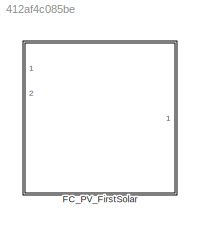
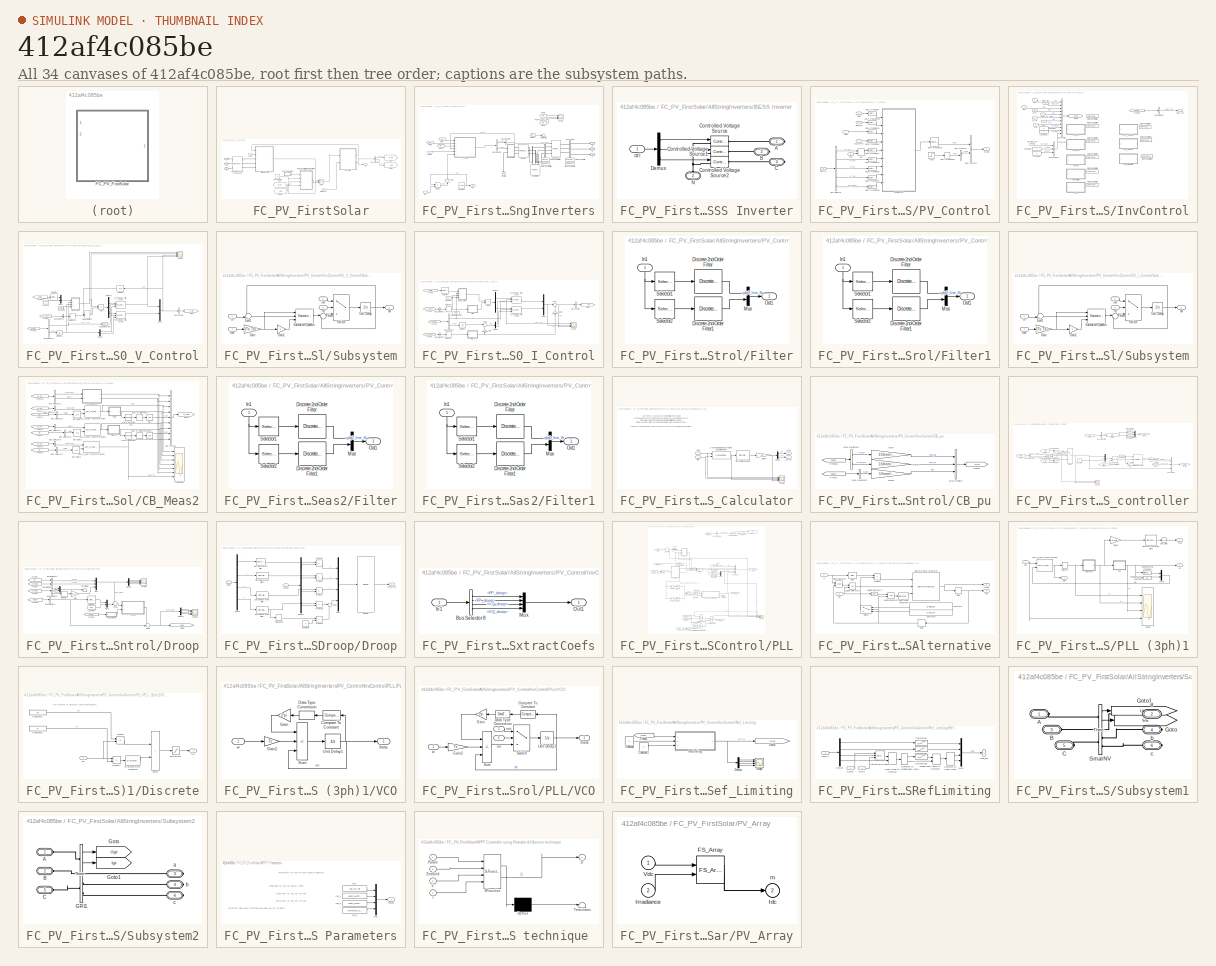
[diagram: thumbnail index - all 34 canvases of the model, root first then tree order]
MODEL slx_412af4c085be
KIND library
CONFIG AbsTol = auto
CONFIG EnableMultiTasking = off
CONFIG FixedStep = auto
CONFIG MaxStep = auto
CONFIG MinStep = auto
CONFIG RelTol = 1e-3
CONFIG SampleTimeConstraint = Unconstrained
CONFIG Solver = VariableStepAuto
CONFIG SolverName = VariableStepAuto
CONFIG StartTime = 0.0
CONFIG StopTime = 10.0
BLOCK [SubSystem] FC_PV_FirstSolar
  Ports = [2, 1, 0, 0, 0, 3]
  RequestExecContextInheritance = off
BLOCK [PMIOPort] FC_PV_FirstSolar/A
  Side = Left
BLOCK [SubSystem] FC_PV_FirstSolar/AllStringInverters
  Ports = [2, 1, 0, 0, 0, 3]
  RequestExecContextInheritance = off
BLOCK [SubSystem] FC_PV_FirstSolar/AllStringInverters/BESS Inverter
  Ports = [1, 0, 0, 0, 0, 1, 3]
  RequestExecContextInheritance = off
BLOCK [PMIOPort] FC_PV_FirstSolar/AllStringInverters/BESS Inverter/A
  Side = Right
BLOCK [PMIOPort] FC_PV_FirstSolar/AllStringInverters/BESS Inverter/B
  Port = 3
  Side = Right
BLOCK [PMIOPort] FC_PV_FirstSolar/AllStringInverters/BESS Inverter/C
  Port = 4
  Side = Right
BLOCK [Reference] FC_PV_FirstSolar/AllStringInverters/BESS Inverter/Controlled Voltage Source  REF=powerlib/Electrical
Sources/Controlled Voltage Source
  Ports = [1, 0, 0, 0, 0, 1, 1]
  SourceBlock = powerlib/Electrical\nSources/Controlled Voltage Source
  SourceProductBaseCode = PS
  SourceType = Controlled Voltage Source
BLOCK [Reference] FC_PV_FirstSolar/AllStringInverters/BESS Inverter/Controlled Voltage Source1  REF=powerlib/Electrical
Sources/Controlled Voltage Source
  Ports = [1, 0, 0, 0, 0, 1, 1]
  SourceBlock = powerlib/Electrical\nSources/Controlled Voltage Source
  SourceProductBaseCode = PS
  SourceType = Controlled Voltage Source
BLOCK [Reference] FC_PV_FirstSolar/AllStringInverters/BESS Inverter/Controlled Voltage Source2  REF=powerlib/Electrical
Sources/Controlled Voltage Source
  Ports = [1, 0, 0, 0, 0, 1, 1]
  SourceBlock = powerlib/Electrical\nSources/Controlled Voltage Source
  SourceProductBaseCode = PS
  SourceType = Controlled Voltage Source
BLOCK [Demux] FC_PV_FirstSolar/AllStringInverters/BESS Inverter/Demux
  Outputs = 3
  Ports = [1, 3]
BLOCK [PMIOPort] FC_PV_FirstSolar/AllStringInverters/BESS Inverter/N
  NameLocation = right
  Port = 2
  Side = Left
BLOCK [Inport] FC_PV_FirstSolar/AllStringInverters/BESS Inverter/ctrl
BLOCK [BusSelector] FC_PV_FirstSolar/AllStringInverters/Bus Selector2
  OutputSignals = ToCB,Uabc
  Ports = [1, 2]
BLOCK [BusSelector] FC_PV_FirstSolar/AllStringInverters/Bus Selector4
  OutputSignals = Close
  Ports = [1, 1]
BLOCK [Constant] FC_PV_FirstSolar/AllStringInverters/Constant
  Value = 1000
BLOCK [Inport] FC_PV_FirstSolar/AllStringInverters/Control
  Port = 2
BLOCK [Product] FC_PV_FirstSolar/AllStringInverters/Divide
  Inputs = **
  Ports = [2, 1]
BLOCK [From] FC_PV_FirstSolar/AllStringInverters/From
  GotoTag = Ugri
  TagVisibility = scoped
BLOCK [From] FC_PV_FirstSolar/AllStringInverters/From1
  GotoTag = Igri
  TagVisibility = scoped
BLOCK [From] FC_PV_FirstSolar/AllStringInverters/From10
  GotoTag = Iinv
  TagVisibility = scoped
BLOCK [From] FC_PV_FirstSolar/AllStringInverters/From2
  GotoTag = Ugri
  TagVisibility = scoped
BLOCK [From] FC_PV_FirstSolar/AllStringInverters/From3
  GotoTag = Igri
  TagVisibility = scoped
BLOCK [From] FC_PV_FirstSolar/AllStringInverters/From4
  GotoTag = Uinv
  TagVisibility = scoped
BLOCK [From] FC_PV_FirstSolar/AllStringInverters/From9
  GotoTag = Uinv
  TagVisibility = scoped
BLOCK [Gain] FC_PV_FirstSolar/AllStringInverters/Gain
  Gain = 1/430e3
  NameLocation = right
BLOCK [GotoTagVisibility] FC_PV_FirstSolar/AllStringInverters/Goto Tag Visibility
  GotoTag = Ugri
BLOCK [GotoTagVisibility] FC_PV_FirstSolar/AllStringInverters/Goto Tag Visibility1
  GotoTag = Igri
BLOCK [GotoTagVisibility] FC_PV_FirstSolar/AllStringInverters/Goto Tag Visibility4
  GotoTag = Iinv
BLOCK [GotoTagVisibility] FC_PV_FirstSolar/AllStringInverters/Goto Tag Visibility5
  GotoTag = Uinv
BLOCK [Inport] FC_PV_FirstSolar/AllStringInverters/Idc
BLOCK [Reference] FC_PV_FirstSolar/AllStringInverters/Inverter Filter  REF=powerlib/Elements/Three-Phase
Parallel RLC Load
  AttributesFormatString = \n
  NameLocation = right
  Ports = [0, 0, 0, 0, 0, 3]
  SourceBlock = powerlib/Elements/Three-Phase\nParallel RLC Load
  SourceProductBaseCode = PS
  SourceType = Three-Phase Parallel RLC Load
BLOCK [Reference] FC_PV_FirstSolar/AllStringInverters/Neutral1  REF=powerlib/Elements/Neutral
  AttributesFormatString = node %<NodeNumber>
  NameLocation = right
  Ports = [0, 0, 0, 0, 0, 1]
  SourceBlock = powerlib/Elements/Neutral
  SourceProductBaseCode = PS
  SourceType = Neutral
BLOCK [SubSystem] FC_PV_FirstSolar/AllStringInverters/PV_Control
  Ports = [6, 1]
  RequestExecContextInheritance = off
BLOCK [BusCreator] FC_PV_FirstSolar/AllStringInverters/PV_Control/Bus Creator1
  DisplayOption = bar
  InheritFromInputs = on
  Inputs = 2
  Ports = [2, 1]
BLOCK [BusCreator] FC_PV_FirstSolar/AllStringInverters/PV_Control/Bus Creator5
  DisplayOption = bar
  InheritFromInputs = on
  Inputs = 1
  Ports = [1, 1]
BLOCK [BusSelector] FC_PV_FirstSolar/AllStringInverters/PV_Control/Bus Selector
  OutputSignals = p_ref,q_ref,f_ref,v_ref,GF_mode
  Ports = [1, 5]
BLOCK [Inport] FC_PV_FirstSolar/AllStringInverters/PV_Control/CB_status
  Port = 4
BLOCK [Inport] FC_PV_FirstSolar/AllStringInverters/PV_Control/Control
  Port = 5
BLOCK [Outport] FC_PV_FirstSolar/AllStringInverters/PV_Control/CtrlOut
BLOCK [Inport] FC_PV_FirstSolar/AllStringInverters/PV_Control/Iabc
  Port = 3
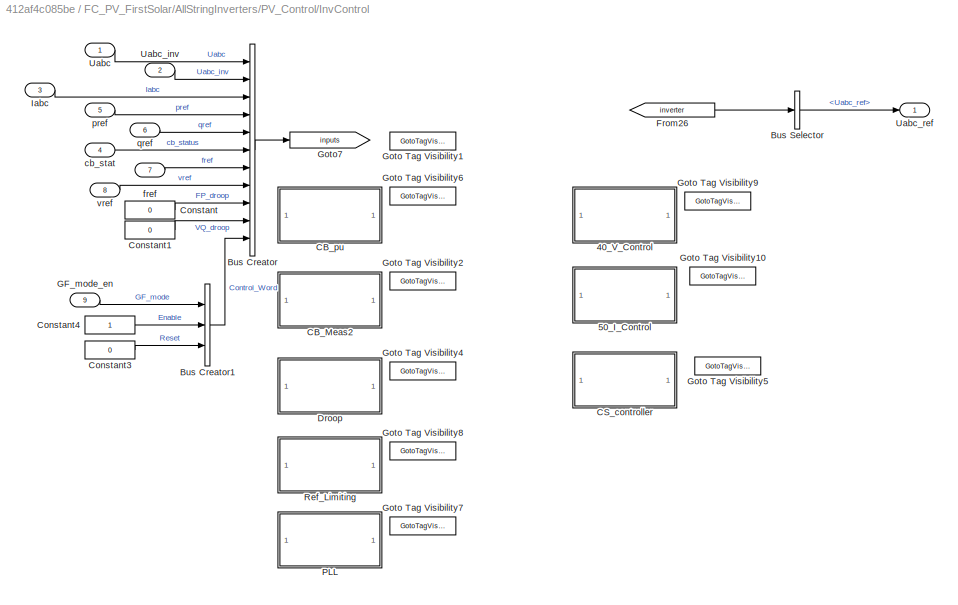
BLOCK [SubSystem] FC_PV_FirstSolar/AllStringInverters/PV_Control/InvControl
  Ports = [9, 1]
  RequestExecContextInheritance = off
BLOCK [SubSystem] FC_PV_FirstSolar/AllStringInverters/PV_Control/InvControl/40_V_Control
  Ports = []
  RequestExecContextInheritance = off
BLOCK [Sum] FC_PV_FirstSolar/AllStringInverters/PV_Control/InvControl/40_V_Control/Add1
  IconShape = rectangular
  Inputs = +-
  Ports = [2, 1]
BLOCK [BusCreator] FC_PV_FirstSolar/AllStringInverters/PV_Control/InvControl/40_V_Control/Bus Creator
  DisplayOption = bar
  InheritFromInputs = on
  Inputs = 1
  Ports = [1, 1]
BLOCK [BusSelector] FC_PV_FirstSolar/AllStringInverters/PV_Control/InvControl/40_V_Control/Bus Selector1
  OutputAsBus = on
  OutputSignals = vdq0_inv
  Ports = [1, 1]
BLOCK [BusSelector] FC_PV_FirstSolar/AllStringInverters/PV_Control/InvControl/40_V_Control/Bus Selector8
  OutputSignals = use_csi,vdq
  Ports = [1, 2]
BLOCK [Constant] FC_PV_FirstSolar/AllStringInverters/PV_Control/InvControl/40_V_Control/Constant1
  Value = double(0)
BLOCK [Constant] FC_PV_FirstSolar/AllStringInverters/PV_Control/InvControl/40_V_Control/Constant2
  OutDataTypeStr = double
  Value = 10
BLOCK [Demux] FC_PV_FirstSolar/AllStringInverters/PV_Control/InvControl/40_V_Control/Demux
  Outputs = 2
  Ports = [1, 2]
BLOCK [Demux] FC_PV_FirstSolar/AllStringInverters/PV_Control/InvControl/40_V_Control/Demux1
  Outputs = 2
  Ports = [1, 2]
BLOCK [From] FC_PV_FirstSolar/AllStringInverters/PV_Control/InvControl/40_V_Control/From1
  GotoTag = cb_meas
  TagVisibility = scoped
BLOCK [From] FC_PV_FirstSolar/AllStringInverters/PV_Control/InvControl/40_V_Control/From17
  GotoTag = inverter
  TagVisibility = scoped
BLOCK [From] FC_PV_FirstSolar/AllStringInverters/PV_Control/InvControl/40_V_Control/From2
  GotoTag = ref_lim
  NameLocation = top
  TagVisibility = scoped
BLOCK [Goto] FC_PV_FirstSolar/AllStringInverters/PV_Control/InvControl/40_V_Control/Goto7
  GotoTag = V_Ctrl
  TagVisibility = scoped
BLOCK [Logic] FC_PV_FirstSolar/AllStringInverters/PV_Control/InvControl/40_V_Control/Logical Operator
  AllPortsSameDT = off
  Inputs = 1
  Operator = NOT
  OutDataTypeStr = boolean
  Ports = [1, 1]
BLOCK [ManualSwitch] FC_PV_FirstSolar/AllStringInverters/PV_Control/InvControl/40_V_Control/Manual Switch2
  CurrentSetting = 0
BLOCK [Mux] FC_PV_FirstSolar/AllStringInverters/PV_Control/InvControl/40_V_Control/Mux2
  DisplayOption = bar
  Inputs = 2
  Ports = [2, 1]
BLOCK [Mux] FC_PV_FirstSolar/AllStringInverters/PV_Control/InvControl/40_V_Control/Mux8
  DisplayOption = bar
  Inputs = 2
  Ports = [2, 1]
BLOCK [Reference] FC_PV_FirstSolar/AllStringInverters/PV_Control/InvControl/40_V_Control/PI_controller_with_reset  REF=pi_ctrl/PI_controller_with_reset  (lib defined in slx_6ad81216edf7, slx_b007f0f5aeb1)
  NameLocation = top
  Ports = [3, 1]
  SourceBlock = pi_ctrl/PI_controller_with_reset
BLOCK [Reference] FC_PV_FirstSolar/AllStringInverters/PV_Control/InvControl/40_V_Control/PI_controller_with_reset1  REF=pi_ctrl/PI_controller_with_reset  (lib defined in slx_6ad81216edf7, slx_b007f0f5aeb1)
  NameLocation = top
  Ports = [3, 1]
  SourceBlock = pi_ctrl/PI_controller_with_reset
BLOCK [Scope] FC_PV_FirstSolar/AllStringInverters/PV_Control/InvControl/40_V_Control/Scope
  Floating = off
  NumInputPorts = 4
  Ports = [4]
  ScopeSpecificationString = Simulink.scopes.TimeScopeBlockCfg('CurrentConfiguration', extmgr.ConfigurationSet(extmgr.Configuration('Core','General UI',true),extmgr.Configuration('Core','Source UI',true),extmgr.Configuration('Sources','WiredSimulink',true,'DataLoggingVariableName','ScopeData7','DataLoggingSaveFormat','StructureWithTime','DataLoggingDecimation','1','DataLoggingDecimateData',true),extmgr.Configuration('Visuals'...<+3813ch>
BLOCK [Selector] FC_PV_FirstSolar/AllStringInverters/PV_Control/InvControl/40_V_Control/Selector
  IndexOptions = Index vector (dialog)
  Indices = 2
  InputPortWidth = 4
  OutputSizes = 1
  Ports = [1, 1]
BLOCK [Selector] FC_PV_FirstSolar/AllStringInverters/PV_Control/InvControl/40_V_Control/Selector2
  IndexOptions = Index vector (dialog)
  Indices = [1 2]
  InputPortWidth = 3
  OutputSizes = 1
  Ports = [1, 1]
BLOCK [SubSystem] FC_PV_FirstSolar/AllStringInverters/PV_Control/InvControl/40_V_Control/Subsystem
  Ports = [4, 1]
  RequestExecContextInheritance = off
BLOCK [Gain] FC_PV_FirstSolar/AllStringInverters/PV_Control/InvControl/40_V_Control/Subsystem/Gain
  Gain = [Ts Ts]
BLOCK [Gain] FC_PV_FirstSolar/AllStringInverters/PV_Control/InvControl/40_V_Control/Subsystem/Gain1
  Gain = -1
BLOCK [Reference] FC_PV_FirstSolar/AllStringInverters/PV_Control/InvControl/40_V_Control/Subsystem/Saturation Dynamic  REF=simulink/Discontinuities/Saturation
Dynamic
  Ports = [3, 1]
  SourceBlock = simulink/Discontinuities/Saturation\nDynamic
  SourceProductBaseCode = SL
  SourceType = Saturation Dynamic
BLOCK [Sum] FC_PV_FirstSolar/AllStringInverters/PV_Control/InvControl/40_V_Control/Subsystem/Sum
  Inputs = |++
  Ports = [2, 1]
BLOCK [Sum] FC_PV_FirstSolar/AllStringInverters/PV_Control/InvControl/40_V_Control/Subsystem/Sum1
  Inputs = -+|
  Ports = [2, 1]
BLOCK [Switch] FC_PV_FirstSolar/AllStringInverters/PV_Control/InvControl/40_V_Control/Subsystem/Switch
  Criteria = u2 > Threshold
  InputSameDT = off
  SaturateOnIntegerOverflow = off
BLOCK [UnitDelay] FC_PV_FirstSolar/AllStringInverters/PV_Control/InvControl/40_V_Control/Subsystem/Unit Delay
  HasFrameUpgradeWarning = on
  SampleTime = -1
BLOCK [Inport] FC_PV_FirstSolar/AllStringInverters/PV_Control/InvControl/40_V_Control/Subsystem/in
BLOCK [Inport] FC_PV_FirstSolar/AllStringInverters/PV_Control/InvControl/40_V_Control/Subsystem/init
  Port = 3
BLOCK [Outport] FC_PV_FirstSolar/AllStringInverters/PV_Control/InvControl/40_V_Control/Subsystem/out
  VectorParamsAs1DForOutWhenUnconnected = off
BLOCK [Inport] FC_PV_FirstSolar/AllStringInverters/PV_Control/InvControl/40_V_Control/Subsystem/rate
  Port = 4
BLOCK [Inport] FC_PV_FirstSolar/AllStringInverters/PV_Control/InvControl/40_V_Control/Subsystem/rst
  Port = 2
BLOCK [UnitDelay] FC_PV_FirstSolar/AllStringInverters/PV_Control/InvControl/40_V_Control/Unit Delay
  HasFrameUpgradeWarning = on
  NameLocation = top
  SampleTime = -1
BLOCK [UnitDelay] FC_PV_FirstSolar/AllStringInverters/PV_Control/InvControl/40_V_Control/Unit Delay1
  HasFrameUpgradeWarning = on
  InitialCondition = [0 0]
  SampleTime = -1
BLOCK [SubSystem] FC_PV_FirstSolar/AllStringInverters/PV_Control/InvControl/50_I_Control
  Ports = []
  RequestExecContextInheritance = off
BLOCK [Sum] FC_PV_FirstSolar/AllStringInverters/PV_Control/InvControl/50_I_Control/Add1
  IconShape = rectangular
  Inputs = +-
  Ports = [2, 1]
BLOCK [BusCreator] FC_PV_FirstSolar/AllStringInverters/PV_Control/InvControl/50_I_Control/Bus Creator
  DisplayOption = bar
  InheritFromInputs = on
  Inputs = 1
  Ports = [1, 1]
BLOCK [BusSelector] FC_PV_FirstSolar/AllStringInverters/PV_Control/InvControl/50_I_Control/Bus Selector1
  OutputAsBus = on
  OutputSignals = idq0
  Ports = [1, 1]
BLOCK [BusSelector] FC_PV_FirstSolar/AllStringInverters/PV_Control/InvControl/50_I_Control/Bus Selector2
  OutputSignals = use_csi,vdq
  Ports = [1, 2]
BLOCK [BusSelector] FC_PV_FirstSolar/AllStringInverters/PV_Control/InvControl/50_I_Control/Bus Selector3
  OutputAsBus = on
  OutputSignals = vdq0_inv
  Ports = [1, 1]
BLOCK [Constant] FC_PV_FirstSolar/AllStringInverters/PV_Control/InvControl/50_I_Control/Constant
  OutDataTypeStr = double
  Value = 10
BLOCK [Demux] FC_PV_FirstSolar/AllStringInverters/PV_Control/InvControl/50_I_Control/Demux
  Outputs = 2
  Ports = [1, 2]
BLOCK [Demux] FC_PV_FirstSolar/AllStringInverters/PV_Control/InvControl/50_I_Control/Demux1
  Outputs = 2
  Ports = [1, 2]
BLOCK [SubSystem] FC_PV_FirstSolar/AllStringInverters/PV_Control/InvControl/50_I_Control/Filter
  Ports = [1, 1]
  RequestExecContextInheritance = off
BLOCK [Reference] FC_PV_FirstSolar/AllStringInverters/PV_Control/InvControl/50_I_Control/Filter/Discrete 2nd-Order Filter  REF=powerlib_extras/Discrete 
Control Blocks/Discrete 
2nd-Order
Filter
  Ports = [1, 1]
  SourceBlock = powerlib_extras/Discrete \nControl Blocks/Discrete \n2nd-Order\nFilter
  SourceProductBaseCode = PS
  SourceType = Discrete 2nd-Order Filter
BLOCK [Reference] FC_PV_FirstSolar/AllStringInverters/PV_Control/InvControl/50_I_Control/Filter/Discrete 2nd-Order Filter1  REF=powerlib_extras/Discrete 
Control Blocks/Discrete 
2nd-Order
Filter
  Ports = [1, 1]
  SourceBlock = powerlib_extras/Discrete \nControl Blocks/Discrete \n2nd-Order\nFilter
  SourceProductBaseCode = PS
  SourceType = Discrete 2nd-Order Filter
BLOCK [Inport] FC_PV_FirstSolar/AllStringInverters/PV_Control/InvControl/50_I_Control/Filter/In1
  NameLocation = right
BLOCK [Mux] FC_PV_FirstSolar/AllStringInverters/PV_Control/InvControl/50_I_Control/Filter/Mux
  DisplayOption = bar
  Inputs = 2
  Ports = [2, 1]
BLOCK [Outport] FC_PV_FirstSolar/AllStringInverters/PV_Control/InvControl/50_I_Control/Filter/Out1
  VectorParamsAs1DForOutWhenUnconnected = off
BLOCK [Selector] FC_PV_FirstSolar/AllStringInverters/PV_Control/InvControl/50_I_Control/Filter/Selector1
  IndexOptions = Index vector (dialog)
  Indices = 1
  InputPortWidth = 2
  OutputSizes = 1
  Ports = [1, 1]
BLOCK [Selector] FC_PV_FirstSolar/AllStringInverters/PV_Control/InvControl/50_I_Control/Filter/Selector2
  IndexOptions = Index vector (dialog)
  Indices = 2
  InputPortWidth = 2
  OutputSizes = 1
  Ports = [1, 1]
BLOCK [SubSystem] FC_PV_FirstSolar/AllStringInverters/PV_Control/InvControl/50_I_Control/Filter1
  Ports = [1, 1]
  RequestExecContextInheritance = off
BLOCK [Reference] FC_PV_FirstSolar/AllStringInverters/PV_Control/InvControl/50_I_Control/Filter1/Discrete 2nd-Order Filter  REF=powerlib_extras/Discrete 
Control Blocks/Discrete 
2nd-Order
Filter
  Ports = [1, 1]
  SourceBlock = powerlib_extras/Discrete \nControl Blocks/Discrete \n2nd-Order\nFilter
  SourceProductBaseCode = PS
  SourceType = Discrete 2nd-Order Filter
BLOCK [Reference] FC_PV_FirstSolar/AllStringInverters/PV_Control/InvControl/50_I_Control/Filter1/Discrete 2nd-Order Filter1  REF=powerlib_extras/Discrete 
Control Blocks/Discrete 
2nd-Order
Filter
  Ports = [1, 1]
  SourceBlock = powerlib_extras/Discrete \nControl Blocks/Discrete \n2nd-Order\nFilter
  SourceProductBaseCode = PS
  SourceType = Discrete 2nd-Order Filter
BLOCK [Inport] FC_PV_FirstSolar/AllStringInverters/PV_Control/InvControl/50_I_Control/Filter1/In1
  NameLocation = right
BLOCK [Mux] FC_PV_FirstSolar/AllStringInverters/PV_Control/InvControl/50_I_Control/Filter1/Mux
  DisplayOption = bar
  Inputs = 2
  Ports = [2, 1]
BLOCK [Outport] FC_PV_FirstSolar/AllStringInverters/PV_Control/InvControl/50_I_Control/Filter1/Out1
  VectorParamsAs1DForOutWhenUnconnected = off
BLOCK [Selector] FC_PV_FirstSolar/AllStringInverters/PV_Control/InvControl/50_I_Control/Filter1/Selector1
  IndexOptions = Index vector (dialog)
  Indices = 1
  InputPortWidth = 2
  OutputSizes = 1
  Ports = [1, 1]
BLOCK [Selector] FC_PV_FirstSolar/AllStringInverters/PV_Control/InvControl/50_I_Control/Filter1/Selector2
  IndexOptions = Index vector (dialog)
  Indices = 2
  InputPortWidth = 2
  OutputSizes = 1
  Ports = [1, 1]
BLOCK [From] FC_PV_FirstSolar/AllStringInverters/PV_Control/InvControl/50_I_Control/From1
  GotoTag = cb_meas
  TagVisibility = scoped
BLOCK [From] FC_PV_FirstSolar/AllStringInverters/PV_Control/InvControl/50_I_Control/From2
  GotoTag = ref_lim
  NameLocation = top
  TagVisibility = scoped
BLOCK [From] FC_PV_FirstSolar/AllStringInverters/PV_Control/InvControl/50_I_Control/From3
  GotoTag = inverter
  TagVisibility = scoped
BLOCK [From] FC_PV_FirstSolar/AllStringInverters/PV_Control/InvControl/50_I_Control/From4
  GotoTag = cb_meas
  TagVisibility = scoped
BLOCK [Gain] FC_PV_FirstSolar/AllStringInverters/PV_Control/InvControl/50_I_Control/Gain
  NameLocation = right
BLOCK [Gain] FC_PV_FirstSolar/AllStringInverters/PV_Control/InvControl/50_I_Control/Gain1
  NameLocation = right
BLOCK [Goto] FC_PV_FirstSolar/AllStringInverters/PV_Control/InvControl/50_I_Control/Goto7
  GotoTag = I_Ctrl
  TagVisibility = scoped
BLOCK [Logic] FC_PV_FirstSolar/AllStringInverters/PV_Control/InvControl/50_I_Control/Logical Operator
  AllPortsSameDT = off
  Inputs = 1
  NameLocation = right
  Operator = NOT
  OutDataTypeStr = boolean
  Ports = [1, 1]
BLOCK [Mux] FC_PV_FirstSolar/AllStringInverters/PV_Control/InvControl/50_I_Control/Mux8
  DisplayOption = bar
  Inputs = 2
  Ports = [2, 1]
BLOCK [Reference] FC_PV_FirstSolar/AllStringInverters/PV_Control/InvControl/50_I_Control/PI_controller_with_reset  REF=pi_ctrl/PI_controller_with_reset  (lib defined in slx_6ad81216edf7, slx_b007f0f5aeb1)
  NameLocation = top
  Ports = [3, 1]
  SourceBlock = pi_ctrl/PI_controller_with_reset
BLOCK [Reference] FC_PV_FirstSolar/AllStringInverters/PV_Control/InvControl/50_I_Control/PI_controller_with_reset1  REF=pi_ctrl/PI_controller_with_reset  (lib defined in slx_6ad81216edf7, slx_b007f0f5aeb1)
  NameLocation = top
  Ports = [3, 1]
  SourceBlock = pi_ctrl/PI_controller_with_reset
BLOCK [Scope] FC_PV_FirstSolar/AllStringInverters/PV_Control/InvControl/50_I_Control/Scope
  Floating = off
  NumInputPorts = 3
  Ports = [3]
  ScopeSpecificationString = Simulink.scopes.TimeScopeBlockCfg('CurrentConfiguration', extmgr.ConfigurationSet(extmgr.Configuration('Core','General UI',true),extmgr.Configuration('Core','Source UI',true),extmgr.Configuration('Sources','WiredSimulink',true),extmgr.Configuration('Visuals','Time Domain',true,'SerializedDisplays',{struct('MinYLimReal','-0.125','MaxYLimReal','1.125','YLabelReal','','MinYLimMag','0.00000','MaxYLimM...<+2743ch>
BLOCK [Selector] FC_PV_FirstSolar/AllStringInverters/PV_Control/InvControl/50_I_Control/Selector
  IndexOptions = Index vector (dialog)
  Indices = [3 4]
  InputPortWidth = 4
  OutputSizes = 1
  Ports = [1, 1]
BLOCK [Selector] FC_PV_FirstSolar/AllStringInverters/PV_Control/InvControl/50_I_Control/Selector1
  IndexOptions = Index vector (dialog)
  Indices = [1 2]
  InputPortWidth = 3
  OutputSizes = 1
  Ports = [1, 1]
BLOCK [Selector] FC_PV_FirstSolar/AllStringInverters/PV_Control/InvControl/50_I_Control/Selector2
  IndexOptions = Index vector (dialog)
  Indices = [1 2]
  InputPortWidth = 3
  OutputSizes = 1
  Ports = [1, 1]
BLOCK [SubSystem] FC_PV_FirstSolar/AllStringInverters/PV_Control/InvControl/50_I_Control/Subsystem
  Ports = [4, 1]
  RequestExecContextInheritance = off
BLOCK [Gain] FC_PV_FirstSolar/AllStringInverters/PV_Control/InvControl/50_I_Control/Subsystem/Gain
  Gain = [Ts Ts]
BLOCK [Gain] FC_PV_FirstSolar/AllStringInverters/PV_Control/InvControl/50_I_Control/Subsystem/Gain1
  Gain = -1
BLOCK [Reference] FC_PV_FirstSolar/AllStringInverters/PV_Control/InvControl/50_I_Control/Subsystem/Saturation Dynamic  REF=simulink/Discontinuities/Saturation
Dynamic
  Ports = [3, 1]
  SourceBlock = simulink/Discontinuities/Saturation\nDynamic
  SourceProductBaseCode = SL
  SourceType = Saturation Dynamic
BLOCK [Sum] FC_PV_FirstSolar/AllStringInverters/PV_Control/InvControl/50_I_Control/Subsystem/Sum
  Inputs = |++
  Ports = [2, 1]
BLOCK [Sum] FC_PV_FirstSolar/AllStringInverters/PV_Control/InvControl/50_I_Control/Subsystem/Sum1
  Inputs = -+|
  Ports = [2, 1]
BLOCK [Switch] FC_PV_FirstSolar/AllStringInverters/PV_Control/InvControl/50_I_Control/Subsystem/Switch
  Criteria = u2 > Threshold
  InputSameDT = off
  SaturateOnIntegerOverflow = off
BLOCK [UnitDelay] FC_PV_FirstSolar/AllStringInverters/PV_Control/InvControl/50_I_Control/Subsystem/Unit Delay
  HasFrameUpgradeWarning = on
  SampleTime = -1
BLOCK [Inport] FC_PV_FirstSolar/AllStringInverters/PV_Control/InvControl/50_I_Control/Subsystem/in
BLOCK [Inport] FC_PV_FirstSolar/AllStringInverters/PV_Control/InvControl/50_I_Control/Subsystem/init
  Port = 3
BLOCK [Outport] FC_PV_FirstSolar/AllStringInverters/PV_Control/InvControl/50_I_Control/Subsystem/out
  VectorParamsAs1DForOutWhenUnconnected = off
BLOCK [Inport] FC_PV_FirstSolar/AllStringInverters/PV_Control/InvControl/50_I_Control/Subsystem/rate
  Port = 4
BLOCK [Inport] FC_PV_FirstSolar/AllStringInverters/PV_Control/InvControl/50_I_Control/Subsystem/rst
  Port = 2
BLOCK [Sum] FC_PV_FirstSolar/AllStringInverters/PV_Control/InvControl/50_I_Control/Sum
  Inputs = |++
  Ports = [2, 1]
BLOCK [Sum] FC_PV_FirstSolar/AllStringInverters/PV_Control/InvControl/50_I_Control/Sum1
  Inputs = |+-
  NameLocation = top
  Ports = [2, 1]
BLOCK [UnitDelay] FC_PV_FirstSolar/AllStringInverters/PV_Control/InvControl/50_I_Control/Unit Delay
  HasFrameUpgradeWarning = on
  SampleTime = -1
BLOCK [BusCreator] FC_PV_FirstSolar/AllStringInverters/PV_Control/InvControl/Bus Creator
  DisplayOption = bar
  InheritFromInputs = on
  Inputs = 11
  Ports = [11, 1]
BLOCK [BusCreator] FC_PV_FirstSolar/AllStringInverters/PV_Control/InvControl/Bus Creator1
  DisplayOption = bar
  InheritFromInputs = on
  Inputs = 3
  Ports = [3, 1]
BLOCK [BusSelector] FC_PV_FirstSolar/AllStringInverters/PV_Control/InvControl/Bus Selector
  OutputSignals = Uabc_ref
  Ports = [1, 1]
BLOCK [SubSystem] FC_PV_FirstSolar/AllStringInverters/PV_Control/InvControl/CB_Meas2
  Ports = []
  RequestExecContextInheritance = off
BLOCK [BusCreator] FC_PV_FirstSolar/AllStringInverters/PV_Control/InvControl/CB_Meas2/Bus Creator
  DisplayOption = bar
  InheritFromInputs = on
  Inputs = 9
  Ports = [9, 1]
BLOCK [BusSelector] FC_PV_FirstSolar/AllStringInverters/PV_Control/InvControl/CB_Meas2/Bus Selector1
  OutputSignals = vabc_line,iabc
  Ports = [1, 2]
BLOCK [BusSelector] FC_PV_FirstSolar/AllStringInverters/PV_Control/InvControl/CB_Meas2/Bus Selector2
  OutputSignals = vabc_line
  Ports = [1, 1]
BLOCK [BusSelector] FC_PV_FirstSolar/AllStringInverters/PV_Control/InvControl/CB_Meas2/Bus Selector3
  OutputSignals = ejwt
  Ports = [1, 1]
BLOCK [BusSelector] FC_PV_FirstSolar/AllStringInverters/PV_Control/InvControl/CB_Meas2/Bus Selector4
  OutputSignals = iabc
  Ports = [1, 1]
BLOCK [BusSelector] FC_PV_FirstSolar/AllStringInverters/PV_Control/InvControl/CB_Meas2/Bus Selector5
  OutputSignals = ejwt
  Ports = [1, 1]
BLOCK [BusSelector] FC_PV_FirstSolar/AllStringInverters/PV_Control/InvControl/CB_Meas2/Bus Selector6
  OutputSignals = vabc_inv
  Ports = [1, 1]
BLOCK [BusSelector] FC_PV_FirstSolar/AllStringInverters/PV_Control/InvControl/CB_Meas2/Bus Selector7
  OutputSignals = ejwt
  Ports = [1, 1]
BLOCK [SubSystem] FC_PV_FirstSolar/AllStringInverters/PV_Control/InvControl/CB_Meas2/Filter
  Ports = [1, 1]
  RequestExecContextInheritance = off
BLOCK [Reference] FC_PV_FirstSolar/AllStringInverters/PV_Control/InvControl/CB_Meas2/Filter/Discrete 2nd-Order Filter  REF=powerlib_extras/Discrete 
Control Blocks/Discrete 
2nd-Order
Filter
  Ports = [1, 1]
  SourceBlock = powerlib_extras/Discrete \nControl Blocks/Discrete \n2nd-Order\nFilter
  SourceProductBaseCode = PS
  SourceType = Discrete 2nd-Order Filter
BLOCK [Reference] FC_PV_FirstSolar/AllStringInverters/PV_Control/InvControl/CB_Meas2/Filter/Discrete 2nd-Order Filter1  REF=powerlib_extras/Discrete 
Control Blocks/Discrete 
2nd-Order
Filter
  Ports = [1, 1]
  SourceBlock = powerlib_extras/Discrete \nControl Blocks/Discrete \n2nd-Order\nFilter
  SourceProductBaseCode = PS
  SourceType = Discrete 2nd-Order Filter
BLOCK [Inport] FC_PV_FirstSolar/AllStringInverters/PV_Control/InvControl/CB_Meas2/Filter/In1
  NameLocation = right
BLOCK [Mux] FC_PV_FirstSolar/AllStringInverters/PV_Control/InvControl/CB_Meas2/Filter/Mux
  DisplayOption = bar
  Inputs = 2
  Ports = [2, 1]
BLOCK [Outport] FC_PV_FirstSolar/AllStringInverters/PV_Control/InvControl/CB_Meas2/Filter/Out1
  VectorParamsAs1DForOutWhenUnconnected = off
BLOCK [Selector] FC_PV_FirstSolar/AllStringInverters/PV_Control/InvControl/CB_Meas2/Filter/Selector1
  IndexOptions = Index vector (dialog)
  Indices = 1
  InputPortWidth = 3
  OutputSizes = 1
  Ports = [1, 1]
BLOCK [Selector] FC_PV_FirstSolar/AllStringInverters/PV_Control/InvControl/CB_Meas2/Filter/Selector2
  IndexOptions = Index vector (dialog)
  Indices = 2
  InputPortWidth = 3
  OutputSizes = 1
  Ports = [1, 1]
BLOCK [SubSystem] FC_PV_FirstSolar/AllStringInverters/PV_Control/InvControl/CB_Meas2/Filter1
  Ports = [1, 1]
  RequestExecContextInheritance = off
BLOCK [Reference] FC_PV_FirstSolar/AllStringInverters/PV_Control/InvControl/CB_Meas2/Filter1/Discrete 2nd-Order Filter  REF=powerlib_extras/Discrete 
Control Blocks/Discrete 
2nd-Order
Filter
  Ports = [1, 1]
  SourceBlock = powerlib_extras/Discrete \nControl Blocks/Discrete \n2nd-Order\nFilter
  SourceProductBaseCode = PS
  SourceType = Discrete 2nd-Order Filter
BLOCK [Reference] FC_PV_FirstSolar/AllStringInverters/PV_Control/InvControl/CB_Meas2/Filter1/Discrete 2nd-Order Filter1  REF=powerlib_extras/Discrete 
Control Blocks/Discrete 
2nd-Order
Filter
  Ports = [1, 1]
  SourceBlock = powerlib_extras/Discrete \nControl Blocks/Discrete \n2nd-Order\nFilter
  SourceProductBaseCode = PS
  SourceType = Discrete 2nd-Order Filter
BLOCK [Inport] FC_PV_FirstSolar/AllStringInverters/PV_Control/InvControl/CB_Meas2/Filter1/In1
  NameLocation = right
BLOCK [Mux] FC_PV_FirstSolar/AllStringInverters/PV_Control/InvControl/CB_Meas2/Filter1/Mux
  DisplayOption = bar
  Inputs = 2
  Ports = [2, 1]
BLOCK [Outport] FC_PV_FirstSolar/AllStringInverters/PV_Control/InvControl/CB_Meas2/Filter1/Out1
  VectorParamsAs1DForOutWhenUnconnected = off
BLOCK [Selector] FC_PV_FirstSolar/AllStringInverters/PV_Control/InvControl/CB_Meas2/Filter1/Selector1
  IndexOptions = Index vector (dialog)
  Indices = 1
  InputPortWidth = 3
  OutputSizes = 1
  Ports = [1, 1]
BLOCK [Selector] FC_PV_FirstSolar/AllStringInverters/PV_Control/InvControl/CB_Meas2/Filter1/Selector2
  IndexOptions = Index vector (dialog)
  Indices = 2
  InputPortWidth = 3
  OutputSizes = 1
  Ports = [1, 1]
BLOCK [From] FC_PV_FirstSolar/AllStringInverters/PV_Control/InvControl/CB_Meas2/From1
  GotoTag = cb_pu
  NameLocation = top
  TagVisibility = scoped
BLOCK [From] FC_PV_FirstSolar/AllStringInverters/PV_Control/InvControl/CB_Meas2/From2
  GotoTag = pll
  NameLocation = top
  TagVisibility = scoped
BLOCK [From] FC_PV_FirstSolar/AllStringInverters/PV_Control/InvControl/CB_Meas2/From26
  GotoTag = cb_pu
  NameLocation = top
  TagVisibility = scoped
BLOCK [From] FC_PV_FirstSolar/AllStringInverters/PV_Control/InvControl/CB_Meas2/From3
  GotoTag = cb_pu
  NameLocation = top
  TagVisibility = scoped
BLOCK [From] FC_PV_FirstSolar/AllStringInverters/PV_Control/InvControl/CB_Meas2/From4
  GotoTag = pll
  NameLocation = top
  TagVisibility = scoped
BLOCK [From] FC_PV_FirstSolar/AllStringInverters/PV_Control/InvControl/CB_Meas2/From5
  GotoTag = cb_pu
  NameLocation = top
  TagVisibility = scoped
BLOCK [From] FC_PV_FirstSolar/AllStringInverters/PV_Control/InvControl/CB_Meas2/From6
  GotoTag = pll
  NameLocation = top
  TagVisibility = scoped
BLOCK [Goto] FC_PV_FirstSolar/AllStringInverters/PV_Control/InvControl/CB_Meas2/Goto7
  GotoTag = cb_meas
  TagVisibility = scoped
BLOCK [Scope] FC_PV_FirstSolar/AllStringInverters/PV_Control/InvControl/CB_Meas2/InvMeas
  Floating = off
  NumInputPorts = 7
  Ports = [7]
  ScopeSpecificationString = Simulink.scopes.TimeScopeBlockCfg('CurrentConfiguration', extmgr.ConfigurationSet(extmgr.Configuration('Core','General UI',true),extmgr.Configuration('Core','Source UI',true),extmgr.Configuration('Sources','WiredSimulink',true,'DataLogging',true,'DataLoggingVariableName','ScopeDataInvMeas','DataLoggingSaveFormat','StructureWithTime','DataLoggingDecimation','1','DataLoggingDecimateData',true),extmg...<+5893ch>
BLOCK [Math] FC_PV_FirstSolar/AllStringInverters/PV_Control/InvControl/CB_Meas2/Math Function
  Operator = square
  Ports = [1, 1]
  SignedPower = on
BLOCK [Math] FC_PV_FirstSolar/AllStringInverters/PV_Control/InvControl/CB_Meas2/Math Function1
  Operator = square
  Ports = [1, 1]
  SignedPower = on
BLOCK [SubSystem] FC_PV_FirstSolar/AllStringInverters/PV_Control/InvControl/CB_Meas2/PQ_Calculator
  Ports = [2, 2]
  RequestExecContextInheritance = off
BLOCK [Reference] FC_PV_FirstSolar/AllStringInverters/PV_Control/InvControl/CB_Meas2/PQ_Calculator/3-phase Instantaneous Active & Reactive Power  REF=powerlib_extras/Measurements/3-phase 
Instantaneous 
Active & Reactive Power
  Ports = [2, 1]
  SourceBlock = powerlib_extras/Measurements/3-phase \nInstantaneous \nActive & Reactive Power
  SourceProductBaseCode = PS
  SourceType = 3-phase instantaneous active and reactive power
BLOCK [Demux] FC_PV_FirstSolar/AllStringInverters/PV_Control/InvControl/CB_Meas2/PQ_Calculator/Demux
  Outputs = 2
  Ports = [1, 2]
BLOCK [Reference] FC_PV_FirstSolar/AllStringInverters/PV_Control/InvControl/CB_Meas2/PQ_Calculator/Discrete Mean value2  REF=powerlib_extras/Discrete
Measurements/Discrete 
Mean value
  Ports = [1, 1]
  SourceBlock = powerlib_extras/Discrete\nMeasurements/Discrete \nMean value
  SourceProductBaseCode = PS
  SourceType = Discrete Mean value
BLOCK [Gain] FC_PV_FirstSolar/AllStringInverters/PV_Control/InvControl/CB_Meas2/PQ_Calculator/Gain10
  Gain = 2/3
BLOCK [Inport] FC_PV_FirstSolar/AllStringInverters/PV_Control/InvControl/CB_Meas2/PQ_Calculator/Iabc
  Port = 2
BLOCK [Outport] FC_PV_FirstSolar/AllStringInverters/PV_Control/InvControl/CB_Meas2/PQ_Calculator/P - kW
  NameLocation = top
  VectorParamsAs1DForOutWhenUnconnected = off
BLOCK [Outport] FC_PV_FirstSolar/AllStringInverters/PV_Control/InvControl/CB_Meas2/PQ_Calculator/Q - kVAR
  Port = 2
  VectorParamsAs1DForOutWhenUnconnected = off
BLOCK [Scope] FC_PV_FirstSolar/AllStringInverters/PV_Control/InvControl/CB_Meas2/PQ_Calculator/Scope
  Floating = off
  NumInputPorts = 4
  Ports = [4]
  ScopeSpecificationString = C++SS(StrPVP('Location','[2231, 547, 2555, 786]'),StrPVP('Open','off'),StrPVP('ZoomMode','yonly'),MxPVP('AxesTitles',54,'struct(''axes1'',''%<SignalLabel>'',''axes2'',''%<SignalLabel>'',''axes3'',''%<SignalLabel>'',''axes4'',''%<SignalLabel>'')'),MxPVP('ScopeGraphics',57,'struct(''FigureColor'',''[0.5 0.5 0.5]'',''AxesColor'',''[0 0 0]'',''AxesTickColor'',''[1 1 1]'',''LineColors'',''[1 1 0;1 0 1;...<+442ch>
BLOCK [Inport] FC_PV_FirstSolar/AllStringInverters/PV_Control/InvControl/CB_Meas2/PQ_Calculator/Vabc
  NameLocation = top
BLOCK [Sqrt] FC_PV_FirstSolar/AllStringInverters/PV_Control/InvControl/CB_Meas2/Sqrt
BLOCK [Sqrt] FC_PV_FirstSolar/AllStringInverters/PV_Control/InvControl/CB_Meas2/Sqrt1
BLOCK [Sum] FC_PV_FirstSolar/AllStringInverters/PV_Control/InvControl/CB_Meas2/Sum of Elements
  IconShape = rectangular
  Inputs = +
  Ports = [1, 1]
BLOCK [Sum] FC_PV_FirstSolar/AllStringInverters/PV_Control/InvControl/CB_Meas2/Sum of Elements1
  IconShape = rectangular
  Inputs = +
  Ports = [1, 1]
BLOCK [UnitDelay] FC_PV_FirstSolar/AllStringInverters/PV_Control/InvControl/CB_Meas2/Unit Delay
  HasFrameUpgradeWarning = on
  SampleTime = -1
BLOCK [UnitDelay] FC_PV_FirstSolar/AllStringInverters/PV_Control/InvControl/CB_Meas2/Unit Delay1
  HasFrameUpgradeWarning = on
  SampleTime = -1
BLOCK [UnitDelay] FC_PV_FirstSolar/AllStringInverters/PV_Control/InvControl/CB_Meas2/Unit Delay2
  HasFrameUpgradeWarning = on
  SampleTime = -1
BLOCK [Reference] FC_PV_FirstSolar/AllStringInverters/PV_Control/InvControl/CB_Meas2/abc_to_dq0 Transformation  REF=powerlib_extras/Measurements/abc_to_dq0
Transformation
  Ports = [2, 1]
  SourceBlock = powerlib_extras/Measurements/abc_to_dq0\nTransformation
  SourceProductBaseCode = PS
  SourceType = abc to dq0 Transformation
BLOCK [Reference] FC_PV_FirstSolar/AllStringInverters/PV_Control/InvControl/CB_Meas2/abc_to_dq0 Transformation1  REF=powerlib_extras/Measurements/abc_to_dq0
Transformation
  Ports = [2, 1]
  SourceBlock = powerlib_extras/Measurements/abc_to_dq0\nTransformation
  SourceProductBaseCode = PS
  SourceType = abc to dq0 Transformation
BLOCK [Reference] FC_PV_FirstSolar/AllStringInverters/PV_Control/InvControl/CB_Meas2/abc_to_dq0 Transformation2  REF=powerlib_extras/Measurements/abc_to_dq0
Transformation
  Ports = [2, 1]
  SourceBlock = powerlib_extras/Measurements/abc_to_dq0\nTransformation
  SourceProductBaseCode = PS
  SourceType = abc to dq0 Transformation
BLOCK [SubSystem] FC_PV_FirstSolar/AllStringInverters/PV_Control/InvControl/CB_pu
  Ports = []
  RequestExecContextInheritance = off
BLOCK [BusCreator] FC_PV_FirstSolar/AllStringInverters/PV_Control/InvControl/CB_pu/Bus Creator
  DisplayOption = bar
  InheritFromInputs = on
  Inputs = 3
  Ports = [3, 1]
BLOCK [BusSelector] FC_PV_FirstSolar/AllStringInverters/PV_Control/InvControl/CB_pu/Bus Selector1
  OutputSignals = Uabc,Uabc_inv
  Ports = [1, 2]
BLOCK [BusSelector] FC_PV_FirstSolar/AllStringInverters/PV_Control/InvControl/CB_pu/Bus Selector2
  OutputSignals = Iabc
  Ports = [1, 1]
BLOCK [From] FC_PV_FirstSolar/AllStringInverters/PV_Control/InvControl/CB_pu/From1
  GotoTag = inputs
  NameLocation = top
  TagVisibility = scoped
BLOCK [From] FC_PV_FirstSolar/AllStringInverters/PV_Control/InvControl/CB_pu/From26
  GotoTag = inputs
  NameLocation = top
  TagVisibility = scoped
BLOCK [Gain] FC_PV_FirstSolar/AllStringInverters/PV_Control/InvControl/CB_pu/Gain
  Gain = 1/Unom/sqrt(2)
BLOCK [Gain] FC_PV_FirstSolar/AllStringInverters/PV_Control/InvControl/CB_pu/Gain1
  Gain = 1/Inom/sqrt(2)
BLOCK [Gain] FC_PV_FirstSolar/AllStringInverters/PV_Control/InvControl/CB_pu/Gain2
  Gain = 1/Unom/sqrt(2)
BLOCK [Goto] FC_PV_FirstSolar/AllStringInverters/PV_Control/InvControl/CB_pu/Goto7
  GotoTag = cb_pu
  TagVisibility = scoped
BLOCK [SubSystem] FC_PV_FirstSolar/AllStringInverters/PV_Control/InvControl/CS_controller
  Ports = []
  RequestExecContextInheritance = off
BLOCK [Bias] FC_PV_FirstSolar/AllStringInverters/PV_Control/InvControl/CS_controller/Bias
  Bias = (1.5*Ts)*60*2*pi
  SaturateOnIntegerOverflow = off
BLOCK [BusCreator] FC_PV_FirstSolar/AllStringInverters/PV_Control/InvControl/CS_controller/Bus Creator
  DisplayOption = bar
  InheritFromInputs = on
  Inputs = 3
  Ports = [3, 1]
BLOCK [BusSelector] FC_PV_FirstSolar/AllStringInverters/PV_Control/InvControl/CS_controller/Bus Selector10
  OutputSignals = cb_status,Control_Word.GF_mode
  Ports = [1, 2]
BLOCK [BusSelector] FC_PV_FirstSolar/AllStringInverters/PV_Control/InvControl/CS_controller/Bus Selector2
  OutputSignals = udq
  Ports = [1, 1]
BLOCK [BusSelector] FC_PV_FirstSolar/AllStringInverters/PV_Control/InvControl/CS_controller/Bus Selector3
  OutputSignals = udq
  Ports = [1, 1]
BLOCK [BusSelector] FC_PV_FirstSolar/AllStringInverters/PV_Control/InvControl/CS_controller/Bus Selector5
  OutputSignals = wt
  Ports = [1, 1]
BLOCK [Constant] FC_PV_FirstSolar/AllStringInverters/PV_Control/InvControl/CS_controller/Constant
  Value = 0
BLOCK [Constant] FC_PV_FirstSolar/AllStringInverters/PV_Control/InvControl/CS_controller/Constant2
  Value = 1.3
BLOCK [From] FC_PV_FirstSolar/AllStringInverters/PV_Control/InvControl/CS_controller/From
  GotoTag = use_csi
BLOCK [From] FC_PV_FirstSolar/AllStringInverters/PV_Control/InvControl/CS_controller/From3
  GotoTag = pll
  NameLocation = top
  TagVisibility = scoped
BLOCK [From] FC_PV_FirstSolar/AllStringInverters/PV_Control/InvControl/CS_controller/From4
  GotoTag = V_Ctrl
  TagVisibility = scoped
BLOCK [From] FC_PV_FirstSolar/AllStringInverters/PV_Control/InvControl/CS_controller/From5
  GotoTag = I_Ctrl
  TagVisibility = scoped
BLOCK [From] FC_PV_FirstSolar/AllStringInverters/PV_Control/InvControl/CS_controller/From6
  GotoTag = inputs
  TagVisibility = scoped
BLOCK [From] FC_PV_FirstSolar/AllStringInverters/PV_Control/InvControl/CS_controller/From7
  GotoTag = ejwt
  NameLocation = top
BLOCK [Gain] FC_PV_FirstSolar/AllStringInverters/PV_Control/InvControl/CS_controller/Gain1
  Gain = -1
BLOCK [Gain] FC_PV_FirstSolar/AllStringInverters/PV_Control/InvControl/CS_controller/Gain2
  Gain = Unom*sqrt(2)
BLOCK [Goto] FC_PV_FirstSolar/AllStringInverters/PV_Control/InvControl/CS_controller/Goto
  GotoTag = use_csi
BLOCK [Goto] FC_PV_FirstSolar/AllStringInverters/PV_Control/InvControl/CS_controller/Goto7
  GotoTag = inverter
  TagVisibility = scoped
BLOCK [Logic] FC_PV_FirstSolar/AllStringInverters/PV_Control/InvControl/CS_controller/Logical Operator
  AllPortsSameDT = off
  OutDataTypeStr = boolean
  Ports = [2, 1]
BLOCK [Logic] FC_PV_FirstSolar/AllStringInverters/PV_Control/InvControl/CS_controller/Logical Operator1
  AllPortsSameDT = off
  Operator = NOT
  OutDataTypeStr = boolean
  Ports = [1, 1]
BLOCK [Mux] FC_PV_FirstSolar/AllStringInverters/PV_Control/InvControl/CS_controller/Mux1
  DisplayOption = bar
  Inputs = 2
  Ports = [2, 1]
BLOCK [Mux] FC_PV_FirstSolar/AllStringInverters/PV_Control/InvControl/CS_controller/Mux3
  DisplayOption = bar
  Inputs = 2
  Ports = [2, 1]
BLOCK [Reference] FC_PV_FirstSolar/AllStringInverters/PV_Control/InvControl/CS_controller/Saturation Dynamic  REF=simulink/Discontinuities/Saturation
Dynamic
  Ports = [3, 1]
  SourceBlock = simulink/Discontinuities/Saturation\nDynamic
  SourceProductBaseCode = SL
  SourceType = Saturation Dynamic
BLOCK [Scope] FC_PV_FirstSolar/AllStringInverters/PV_Control/InvControl/CS_controller/Scope
  Floating = off
  NumInputPorts = 2
  Ports = [2]
  ScopeSpecificationString = Simulink.scopes.TimeScopeBlockCfg('CurrentConfiguration', extmgr.ConfigurationSet(extmgr.Configuration('Core','General UI',true),extmgr.Configuration('Core','Source UI',true),extmgr.Configuration('Sources','WiredSimulink',true,'DataLoggingVariableName','ScopeData3'),extmgr.Configuration('Visuals','Time Domain',true,'SerializedDisplays',{struct('MinYLimReal','-1.3125','MaxYLimReal','1.8125','YLabel...<+1456ch>
BLOCK [Switch] FC_PV_FirstSolar/AllStringInverters/PV_Control/InvControl/CS_controller/Switch
  Criteria = u2 > Threshold
  InputSameDT = off
  SaturateOnIntegerOverflow = off
BLOCK [Trigonometry] FC_PV_FirstSolar/AllStringInverters/PV_Control/InvControl/CS_controller/Trigonometric Function2
  Ports = [1, 1]
BLOCK [Trigonometry] FC_PV_FirstSolar/AllStringInverters/PV_Control/InvControl/CS_controller/Trigonometric Function3
  Operator = cos
  Ports = [1, 1]
BLOCK [Reference] FC_PV_FirstSolar/AllStringInverters/PV_Control/InvControl/CS_controller/dq0_to_abc Transformation  REF=powerlib_extras/Measurements/dq0_to_abc
Transformation
  Ports = [2, 1]
  SourceBlock = powerlib_extras/Measurements/dq0_to_abc\nTransformation
  SourceProductBaseCode = PS
  SourceType = dq0 to abc Transformation
BLOCK [Goto] FC_PV_FirstSolar/AllStringInverters/PV_Control/InvControl/CS_controller/toG2
  GotoTag = ejwt
  NameLocation = top
BLOCK [Constant] FC_PV_FirstSolar/AllStringInverters/PV_Control/InvControl/Constant
  Value = 0
BLOCK [Constant] FC_PV_FirstSolar/AllStringInverters/PV_Control/InvControl/Constant1
  Value = 0
BLOCK [Constant] FC_PV_FirstSolar/AllStringInverters/PV_Control/InvControl/Constant3
  OutDataTypeStr = boolean
  Value = 0
BLOCK [Constant] FC_PV_FirstSolar/AllStringInverters/PV_Control/InvControl/Constant4
  OutDataTypeStr = boolean
BLOCK [SubSystem] FC_PV_FirstSolar/AllStringInverters/PV_Control/InvControl/Droop
  Ports = []
  RequestExecContextInheritance = off
BLOCK [BusSelector] FC_PV_FirstSolar/AllStringInverters/PV_Control/InvControl/Droop/Bus Selector1
  OutputSignals = vrms
  Ports = [1, 1]
BLOCK [BusSelector] FC_PV_FirstSolar/AllStringInverters/PV_Control/InvControl/Droop/Bus Selector2
  OutputSignals = freq
  Ports = [1, 1]
BLOCK [BusSelector] FC_PV_FirstSolar/AllStringInverters/PV_Control/InvControl/Droop/Bus Selector3
  OutputSignals = p,q,idq0
  Ports = [1, 3]
BLOCK [BusSelector] FC_PV_FirstSolar/AllStringInverters/PV_Control/InvControl/Droop/Bus Selector9
  OutputAsBus = on
  OutputSignals = fref,vref,pref,qref
  Ports = [1, 1]
BLOCK [Constant] FC_PV_FirstSolar/AllStringInverters/PV_Control/InvControl/Droop/Constant
  Value = [0 0]
BLOCK [Demux] FC_PV_FirstSolar/AllStringInverters/PV_Control/InvControl/Droop/Demux
  Ports = [1, 4]
BLOCK [Demux] FC_PV_FirstSolar/AllStringInverters/PV_Control/InvControl/Droop/Demux1
  Ports = [1, 4]
BLOCK [SubSystem] FC_PV_FirstSolar/AllStringInverters/PV_Control/InvControl/Droop/Droop
  Ports = [2, 1]
  RequestExecContextInheritance = off
BLOCK [Constant] FC_PV_FirstSolar/AllStringInverters/PV_Control/InvControl/Droop/Droop/Constant4
  Value = 2
BLOCK [DeadZone] FC_PV_FirstSolar/AllStringInverters/PV_Control/InvControl/Droop/Droop/Dead Zone
  LowerValue = -1.1
  UpperValue = 1.1
BLOCK [Demux] FC_PV_FirstSolar/AllStringInverters/PV_Control/InvControl/Droop/Droop/Demux
  Ports = [1, 4]
BLOCK [Demux] FC_PV_FirstSolar/AllStringInverters/PV_Control/InvControl/Droop/Droop/Demux1
  Ports = [1, 4]
BLOCK [Reference] FC_PV_FirstSolar/AllStringInverters/PV_Control/InvControl/Droop/Droop/Discrete 1st-Order Filter  REF=powerlib_extras/Discrete 
Control Blocks/Discrete
1st-Order
Filter
  Ports = [1, 1]
  SourceBlock = powerlib_extras/Discrete \nControl Blocks/Discrete\n1st-Order\nFilter
  SourceProductBaseCode = PS
  SourceType = Discrete 1st-Order Filter
BLOCK [Reference] FC_PV_FirstSolar/AllStringInverters/PV_Control/InvControl/Droop/Droop/Discrete 1st-Order Filter1  REF=powerlib_extras/Discrete 
Control Blocks/Discrete
1st-Order
Filter
  Ports = [1, 1]
  SourceBlock = powerlib_extras/Discrete \nControl Blocks/Discrete\n1st-Order\nFilter
  SourceProductBaseCode = PS
  SourceType = Discrete 1st-Order Filter
BLOCK [Reference] FC_PV_FirstSolar/AllStringInverters/PV_Control/InvControl/Droop/Droop/Discrete 2nd-Order Filter  REF=powerlib_extras/Discrete 
Control Blocks/Discrete 
2nd-Order
Filter
  Ports = [1, 1]
  SourceBlock = powerlib_extras/Discrete \nControl Blocks/Discrete \n2nd-Order\nFilter
  SourceProductBaseCode = PS
  SourceType = Discrete 2nd-Order Filter
BLOCK [Reference] FC_PV_FirstSolar/AllStringInverters/PV_Control/InvControl/Droop/Droop/Discrete 2nd-Order Filter1  REF=powerlib_extras/Discrete 
Control Blocks/Discrete 
2nd-Order
Filter
  Ports = [1, 1]
  SourceBlock = powerlib_extras/Discrete \nControl Blocks/Discrete \n2nd-Order\nFilter
  SourceProductBaseCode = PS
  SourceType = Discrete 2nd-Order Filter
BLOCK [Mux] FC_PV_FirstSolar/AllStringInverters/PV_Control/InvControl/Droop/Droop/Mux1
  DisplayOption = bar
  Ports = [4, 1]
BLOCK [Product] FC_PV_FirstSolar/AllStringInverters/PV_Control/InvControl/Droop/Droop/Product
  Ports = [2, 1]
BLOCK [Product] FC_PV_FirstSolar/AllStringInverters/PV_Control/InvControl/Droop/Droop/Product1
  Ports = [2, 1]
BLOCK [Product] FC_PV_FirstSolar/AllStringInverters/PV_Control/InvControl/Droop/Droop/Product2
  Ports = [2, 1]
BLOCK [Product] FC_PV_FirstSolar/AllStringInverters/PV_Control/InvControl/Droop/Droop/Product3
  Ports = [2, 1]
BLOCK [Product] FC_PV_FirstSolar/AllStringInverters/PV_Control/InvControl/Droop/Droop/Product4
  Ports = [2, 1]
BLOCK [Selector] FC_PV_FirstSolar/AllStringInverters/PV_Control/InvControl/Droop/Droop/Selector
  IndexOptions = Index vector (dialog)
  Indices = [3 4 1 2]
  InputPortWidth = 4
  OutputSizes = 1
  Ports = [1, 1]
BLOCK [Sum] FC_PV_FirstSolar/AllStringInverters/PV_Control/InvControl/Droop/Droop/Sum
  Inputs = |++
  Ports = [2, 1]
BLOCK [Outport] FC_PV_FirstSolar/AllStringInverters/PV_Control/InvControl/Droop/Droop/dFvpq_out
  VectorParamsAs1DForOutWhenUnconnected = off
BLOCK [Inport] FC_PV_FirstSolar/AllStringInverters/PV_Control/InvControl/Droop/Droop/dfvpq
BLOCK [Inport] FC_PV_FirstSolar/AllStringInverters/PV_Control/InvControl/Droop/Droop/droop
  Port = 2
BLOCK [SubSystem] FC_PV_FirstSolar/AllStringInverters/PV_Control/InvControl/Droop/ExtractCoefs
  Ports = [1, 1]
  RequestExecContextInheritance = off
BLOCK [BusSelector] FC_PV_FirstSolar/AllStringInverters/PV_Control/InvControl/Droop/ExtractCoefs/Bus Selector8
  OutputSignals = FP_droop,VQ_droop,FP_droop,VQ_droop
  Ports = [1, 4]
BLOCK [Inport] FC_PV_FirstSolar/AllStringInverters/PV_Control/InvControl/Droop/ExtractCoefs/In1
BLOCK [Mux] FC_PV_FirstSolar/AllStringInverters/PV_Control/InvControl/Droop/ExtractCoefs/Mux
  DisplayOption = bar
  Ports = [4, 1]
BLOCK [Outport] FC_PV_FirstSolar/AllStringInverters/PV_Control/InvControl/Droop/ExtractCoefs/Out1
  VectorParamsAs1DForOutWhenUnconnected = off
BLOCK [From] FC_PV_FirstSolar/AllStringInverters/PV_Control/InvControl/Droop/From1
  GotoTag = cb_meas
  TagVisibility = scoped
BLOCK [From] FC_PV_FirstSolar/AllStringInverters/PV_Control/InvControl/Droop/From11
  GotoTag = inputs
  TagVisibility = scoped
BLOCK [From] FC_PV_FirstSolar/AllStringInverters/PV_Control/InvControl/Droop/From12
  GotoTag = inputs
  TagVisibility = scoped
BLOCK [From] FC_PV_FirstSolar/AllStringInverters/PV_Control/InvControl/Droop/From2
  GotoTag = pll
  TagVisibility = scoped
BLOCK [From] FC_PV_FirstSolar/AllStringInverters/PV_Control/InvControl/Droop/From3
  GotoTag = cb_meas
  TagVisibility = scoped
BLOCK [Gain] FC_PV_FirstSolar/AllStringInverters/PV_Control/InvControl/Droop/Gain
  Gain = [1 -1]
BLOCK [Goto] FC_PV_FirstSolar/AllStringInverters/PV_Control/InvControl/Droop/Goto2
  GotoTag = droop
  TagVisibility = scoped
BLOCK [Mux] FC_PV_FirstSolar/AllStringInverters/PV_Control/InvControl/Droop/Mux
  DisplayOption = bar
  Inputs = 3
  Ports = [3, 1]
BLOCK [Mux] FC_PV_FirstSolar/AllStringInverters/PV_Control/InvControl/Droop/Mux1
  DisplayOption = bar
  Inputs = 2
  Ports = [2, 1]
BLOCK [Mux] FC_PV_FirstSolar/AllStringInverters/PV_Control/InvControl/Droop/Mux2
  DisplayOption = bar
  Inputs = 2
  Ports = [2, 1]
BLOCK [Scope] FC_PV_FirstSolar/AllStringInverters/PV_Control/InvControl/Droop/Scope
  Floating = off
  NumInputPorts = 4
  Ports = [4]
  ScopeSpecificationString = Simulink.scopes.TimeScopeBlockCfg('CurrentConfiguration', extmgr.ConfigurationSet(extmgr.Configuration('Core','General UI',true),extmgr.Configuration('Core','Source UI',true),extmgr.Configuration('Sources','WiredSimulink',true,'DataLoggingSaveFormat','StructureWithTime','DataLoggingDecimation','1','DataLoggingDecimateData',true),extmgr.Configuration('Visuals','Time Domain',true,'SerializedDisplays...<+3731ch>
BLOCK [Scope] FC_PV_FirstSolar/AllStringInverters/PV_Control/InvControl/Droop/Scope1
  Floating = off
  NumInputPorts = 4
  Ports = [4]
  ScopeSpecificationString = Simulink.scopes.TimeScopeBlockCfg('CurrentConfiguration', extmgr.ConfigurationSet(extmgr.Configuration('Core','General UI',true),extmgr.Configuration('Core','Source UI',true),extmgr.Configuration('Sources','WiredSimulink',true,'DataLoggingSaveFormat','StructureWithTime','DataLoggingDecimation','1','DataLoggingDecimateData',true,'DataLoggingVariableName','ScopeData2'),extmgr.Configuration('Visuals'...<+3765ch>
BLOCK [Selector] FC_PV_FirstSolar/AllStringInverters/PV_Control/InvControl/Droop/Selector1
  IndexOptions = Index vector (dialog)
  Indices = [1 2]
  InputPortWidth = 4
  OutputSizes = 1
  Ports = [1, 1]
BLOCK [Selector] FC_PV_FirstSolar/AllStringInverters/PV_Control/InvControl/Droop/Selector2
  IndexOptions = Index vector (dialog)
  Indices = [1 2]
  InputPortWidth = 3
  OutputSizes = 1
  Ports = [1, 1]
BLOCK [Sum] FC_PV_FirstSolar/AllStringInverters/PV_Control/InvControl/Droop/Sum1
  Inputs = -+|
  Ports = [2, 1]
BLOCK [Sum] FC_PV_FirstSolar/AllStringInverters/PV_Control/InvControl/Droop/Sum2
  Inputs = ++|
  Ports = [2, 1]
BLOCK [Terminator] FC_PV_FirstSolar/AllStringInverters/PV_Control/InvControl/Droop/Terminator
BLOCK [From] FC_PV_FirstSolar/AllStringInverters/PV_Control/InvControl/From26
  GotoTag = inverter
  NameLocation = top
  TagVisibility = scoped
BLOCK [Inport] FC_PV_FirstSolar/AllStringInverters/PV_Control/InvControl/GF_mode_en
  Port = 9
BLOCK [GotoTagVisibility] FC_PV_FirstSolar/AllStringInverters/PV_Control/InvControl/Goto Tag Visibility1
  GotoTag = inputs
BLOCK [GotoTagVisibility] FC_PV_FirstSolar/AllStringInverters/PV_Control/InvControl/Goto Tag Visibility10
  GotoTag = I_Ctrl
BLOCK [GotoTagVisibility] FC_PV_FirstSolar/AllStringInverters/PV_Control/InvControl/Goto Tag Visibility2
  GotoTag = cb_meas
BLOCK [GotoTagVisibility] FC_PV_FirstSolar/AllStringInverters/PV_Control/InvControl/Goto Tag Visibility4
  GotoTag = droop
BLOCK [GotoTagVisibility] FC_PV_FirstSolar/AllStringInverters/PV_Control/InvControl/Goto Tag Visibility5
  GotoTag = inverter
BLOCK [GotoTagVisibility] FC_PV_FirstSolar/AllStringInverters/PV_Control/InvControl/Goto Tag Visibility6
  GotoTag = cb_pu
BLOCK [GotoTagVisibility] FC_PV_FirstSolar/AllStringInverters/PV_Control/InvControl/Goto Tag Visibility7
  GotoTag = pll
BLOCK [GotoTagVisibility] FC_PV_FirstSolar/AllStringInverters/PV_Control/InvControl/Goto Tag Visibility8
  GotoTag = ref_lim
BLOCK [GotoTagVisibility] FC_PV_FirstSolar/AllStringInverters/PV_Control/InvControl/Goto Tag Visibility9
  GotoTag = V_Ctrl
BLOCK [Goto] FC_PV_FirstSolar/AllStringInverters/PV_Control/InvControl/Goto7
  GotoTag = inputs
  TagVisibility = scoped
BLOCK [Inport] FC_PV_FirstSolar/AllStringInverters/PV_Control/InvControl/Iabc
  Port = 3
  PortDimensions = 3
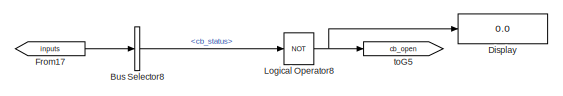
[diagram: FC_PV_FirstSolar/AllStringInverters/PV_Control/InvControl/PLL - part 1/2, top right region]
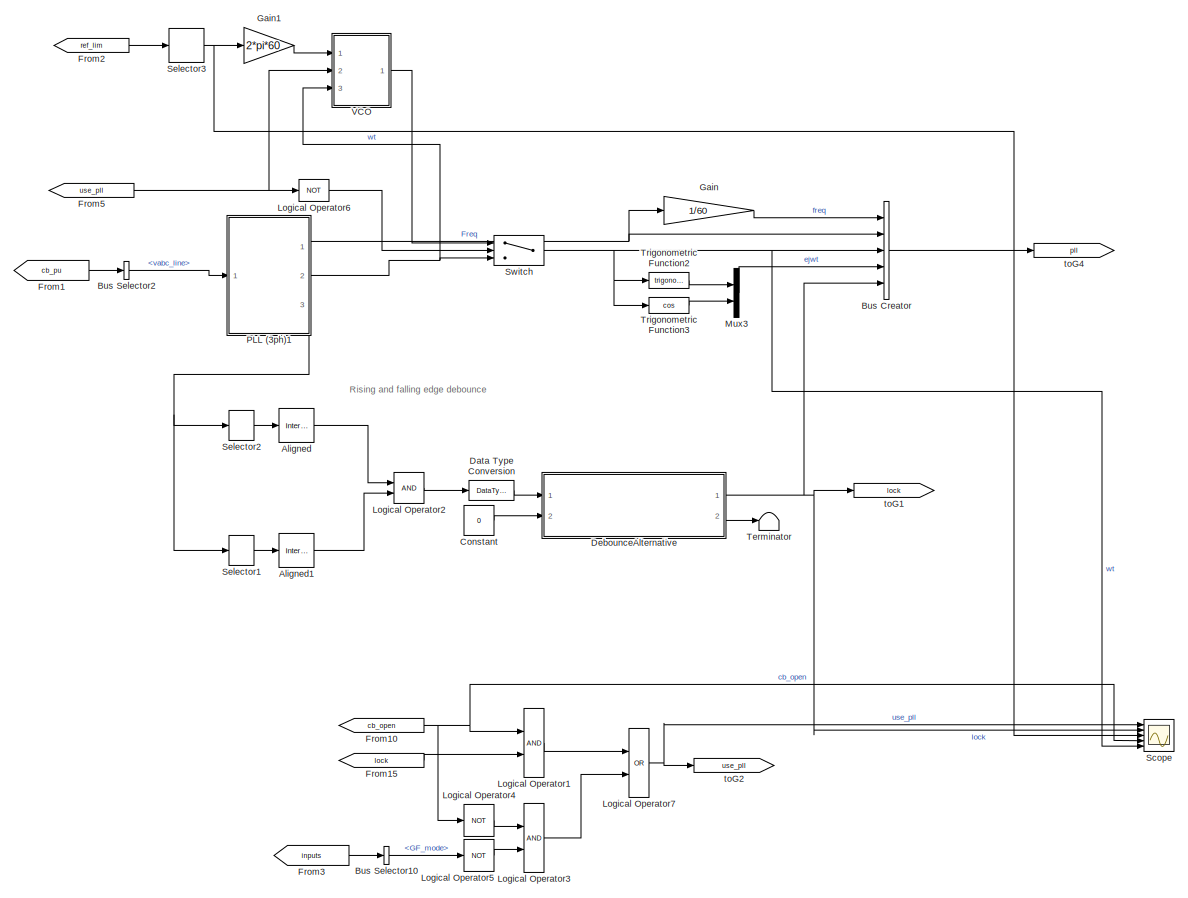
[diagram: FC_PV_FirstSolar/AllStringInverters/PV_Control/InvControl/PLL - part 2/2, most of the canvas]
BLOCK [SubSystem] FC_PV_FirstSolar/AllStringInverters/PV_Control/InvControl/PLL
  Ports = []
  RequestExecContextInheritance = off
BLOCK [Reference] FC_PV_FirstSolar/AllStringInverters/PV_Control/InvControl/PLL/Aligned  REF=simulink/Logic and Bit
Operations/Interval Test
  Ports = [1, 1]
  SourceBlock = simulink/Logic and Bit\nOperations/Interval Test
  SourceProductBaseCode = SL
  SourceType = Interval Test
BLOCK [Reference] FC_PV_FirstSolar/AllStringInverters/PV_Control/InvControl/PLL/Aligned1  REF=simulink/Logic and Bit
Operations/Interval Test
  Ports = [1, 1]
  SourceBlock = simulink/Logic and Bit\nOperations/Interval Test
  SourceProductBaseCode = SL
  SourceType = Interval Test
BLOCK [BusCreator] FC_PV_FirstSolar/AllStringInverters/PV_Control/InvControl/PLL/Bus Creator
  DisplayOption = bar
  InheritFromInputs = on
  Inputs = 5
  Ports = [5, 1]
BLOCK [BusSelector] FC_PV_FirstSolar/AllStringInverters/PV_Control/InvControl/PLL/Bus Selector10
  OutputSignals = Control_Word.GF_mode
  Ports = [1, 1]
BLOCK [BusSelector] FC_PV_FirstSolar/AllStringInverters/PV_Control/InvControl/PLL/Bus Selector2
  OutputSignals = vabc_line
  Ports = [1, 1]
BLOCK [BusSelector] FC_PV_FirstSolar/AllStringInverters/PV_Control/InvControl/PLL/Bus Selector8
  OutputSignals = cb_status
  Ports = [1, 1]
BLOCK [Constant] FC_PV_FirstSolar/AllStringInverters/PV_Control/InvControl/PLL/Constant
  Value = 0
BLOCK [DataTypeConversion] FC_PV_FirstSolar/AllStringInverters/PV_Control/InvControl/PLL/Data Type Conversion
  RndMeth = Floor
  SaturateOnIntegerOverflow = off
BLOCK [SubSystem] FC_PV_FirstSolar/AllStringInverters/PV_Control/InvControl/PLL/DebounceAlternative
  Ports = [2, 2]
  RequestExecContextInheritance = off
BLOCK [Bias] FC_PV_FirstSolar/AllStringInverters/PV_Control/InvControl/PLL/DebounceAlternative/Bias
  Bias = -0.5
  SaturateOnIntegerOverflow = off
BLOCK [Constant] FC_PV_FirstSolar/AllStringInverters/PV_Control/InvControl/PLL/DebounceAlternative/Constant1
  NameLocation = top
  Value = 2/Tdb_on
BLOCK [Constant] FC_PV_FirstSolar/AllStringInverters/PV_Control/InvControl/PLL/DebounceAlternative/Constant2
  NameLocation = top
  Value = 2/Tdb_off
BLOCK [DataTypeConversion] FC_PV_FirstSolar/AllStringInverters/PV_Control/InvControl/PLL/DebounceAlternative/Data Type Conversion
  RndMeth = Floor
  SaturateOnIntegerOverflow = off
BLOCK [Delay] FC_PV_FirstSolar/AllStringInverters/PV_Control/InvControl/PLL/DebounceAlternative/Delay
  DelayLength = 1
  InitialCondition = 0
  InputPortMap = u0
  NameLocation = top
  Ports = [1, 1]
BLOCK [DiscreteIntegrator] FC_PV_FirstSolar/AllStringInverters/PV_Control/InvControl/PLL/DebounceAlternative/Discrete-Time Integrator
  ExternalReset = level
  ICPrevOutput = DiscIntNeverNeededParam
  ICPrevScaledInput = DiscIntNeverNeededParam
  InitialCondition = -0.001
  InitialConditionSource = external
  IntegratorMethod = Accumulation: Forward Euler
  LimitOutput = on
  LowerSaturationLimit = -0.001
  OutDataTypeStr = double
  Ports = [3, 1]
  SampleTime = Tdb_sample
  UpperSaturationLimit = 1.001
  gainval = Tdb_sample
BLOCK [Inport] FC_PV_FirstSolar/AllStringInverters/PV_Control/InvControl/PLL/DebounceAlternative/In
  NameLocation = top
BLOCK [Outport] FC_PV_FirstSolar/AllStringInverters/PV_Control/InvControl/PLL/DebounceAlternative/IntOut
  Port = 2
  VectorParamsAs1DForOutWhenUnconnected = off
BLOCK [Logic] FC_PV_FirstSolar/AllStringInverters/PV_Control/InvControl/PLL/DebounceAlternative/Logical Operator
  AllPortsSameDT = off
  Operator = NXOR
  OutDataTypeStr = boolean
  Ports = [2, 1]
BLOCK [Logic] FC_PV_FirstSolar/AllStringInverters/PV_Control/InvControl/PLL/DebounceAlternative/Logical Operator1
  AllPortsSameDT = off
  Operator = OR
  OutDataTypeStr = boolean
  Ports = [2, 1]
BLOCK [Logic] FC_PV_FirstSolar/AllStringInverters/PV_Control/InvControl/PLL/DebounceAlternative/Logical Operator2
  AllPortsSameDT = off
  Operator = NOT
  OutDataTypeStr = boolean
  Ports = [1, 1]
BLOCK [Logic] FC_PV_FirstSolar/AllStringInverters/PV_Control/InvControl/PLL/DebounceAlternative/Logical Operator3
  AllPortsSameDT = off
  OutDataTypeStr = boolean
  Ports = [2, 1]
BLOCK [Outport] FC_PV_FirstSolar/AllStringInverters/PV_Control/InvControl/PLL/DebounceAlternative/Out
  VectorParamsAs1DForOutWhenUnconnected = off
BLOCK [Product] FC_PV_FirstSolar/AllStringInverters/PV_Control/InvControl/PLL/DebounceAlternative/Product
  Ports = [2, 1]
BLOCK [Relay] FC_PV_FirstSolar/AllStringInverters/PV_Control/InvControl/PLL/DebounceAlternative/Relay
  OffSwitchValue = 0
  OnSwitchValue = 1
BLOCK [Inport] FC_PV_FirstSolar/AllStringInverters/PV_Control/InvControl/PLL/DebounceAlternative/Rst
  NameLocation = top
  Port = 2
BLOCK [Switch] FC_PV_FirstSolar/AllStringInverters/PV_Control/InvControl/PLL/DebounceAlternative/Switch
  InputSameDT = off
  NameLocation = top
  SaturateOnIntegerOverflow = off
  Threshold = 0.5
BLOCK [Display] FC_PV_FirstSolar/AllStringInverters/PV_Control/InvControl/PLL/Display
  Decimation = 1
  Ports = [1]
BLOCK [From] FC_PV_FirstSolar/AllStringInverters/PV_Control/InvControl/PLL/From1
  GotoTag = cb_pu
  TagVisibility = scoped
BLOCK [From] FC_PV_FirstSolar/AllStringInverters/PV_Control/InvControl/PLL/From10
  GotoTag = cb_open
  NameLocation = top
BLOCK [From] FC_PV_FirstSolar/AllStringInverters/PV_Control/InvControl/PLL/From15
  GotoTag = lock
  NameLocation = top
BLOCK [From] FC_PV_FirstSolar/AllStringInverters/PV_Control/InvControl/PLL/From17
  GotoTag = inputs
  TagVisibility = scoped
BLOCK [From] FC_PV_FirstSolar/AllStringInverters/PV_Control/InvControl/PLL/From2
  GotoTag = ref_lim
  TagVisibility = scoped
BLOCK [From] FC_PV_FirstSolar/AllStringInverters/PV_Control/InvControl/PLL/From3
  GotoTag = inputs
  TagVisibility = scoped
BLOCK [From] FC_PV_FirstSolar/AllStringInverters/PV_Control/InvControl/PLL/From5
  GotoTag = use_pll
  NameLocation = top
BLOCK [Gain] FC_PV_FirstSolar/AllStringInverters/PV_Control/InvControl/PLL/Gain
  Gain = 1/60
BLOCK [Gain] FC_PV_FirstSolar/AllStringInverters/PV_Control/InvControl/PLL/Gain1
  Gain = 2*pi*60
  OutDataTypeStr = Inherit: Same as input
  ParamDataTypeStr = Inherit: Same as input
  SaturateOnIntegerOverflow = on
BLOCK [Logic] FC_PV_FirstSolar/AllStringInverters/PV_Control/InvControl/PLL/Logical Operator1
  AllPortsSameDT = off
  OutDataTypeStr = boolean
  Ports = [2, 1]
BLOCK [Logic] FC_PV_FirstSolar/AllStringInverters/PV_Control/InvControl/PLL/Logical Operator2
  AllPortsSameDT = off
  OutDataTypeStr = boolean
  Ports = [2, 1]
BLOCK [Logic] FC_PV_FirstSolar/AllStringInverters/PV_Control/InvControl/PLL/Logical Operator3
  AllPortsSameDT = off
  OutDataTypeStr = boolean
  Ports = [2, 1]
BLOCK [Logic] FC_PV_FirstSolar/AllStringInverters/PV_Control/InvControl/PLL/Logical Operator4
  AllPortsSameDT = off
  Operator = NOT
  OutDataTypeStr = boolean
  Ports = [1, 1]
BLOCK [Logic] FC_PV_FirstSolar/AllStringInverters/PV_Control/InvControl/PLL/Logical Operator5
  AllPortsSameDT = off
  Operator = NOT
  OutDataTypeStr = boolean
  Ports = [1, 1]
BLOCK [Logic] FC_PV_FirstSolar/AllStringInverters/PV_Control/InvControl/PLL/Logical Operator6
  AllPortsSameDT = off
  Operator = NOT
  OutDataTypeStr = boolean
  Ports = [1, 1]
BLOCK [Logic] FC_PV_FirstSolar/AllStringInverters/PV_Control/InvControl/PLL/Logical Operator7
  AllPortsSameDT = off
  Operator = OR
  OutDataTypeStr = boolean
  Ports = [2, 1]
BLOCK [Logic] FC_PV_FirstSolar/AllStringInverters/PV_Control/InvControl/PLL/Logical Operator8
  AllPortsSameDT = off
  Operator = NOT
  OutDataTypeStr = boolean
  Ports = [1, 1]
BLOCK [Mux] FC_PV_FirstSolar/AllStringInverters/PV_Control/InvControl/PLL/Mux3
  DisplayOption = bar
  Inputs = 2
  Ports = [2, 1]
BLOCK [SubSystem] FC_PV_FirstSolar/AllStringInverters/PV_Control/InvControl/PLL/PLL (3ph)1
  CloseFcn = sps_rtmsupport('CloseFcn', gcbh);
  CopyFcn = sps_rtmsupport('CopyFcn', gcbh);
  DeleteFcn = sps_rtmsupport('DeleteFcn', gcbh);
  DialogController = POWERSYS.PowerSysDialog
  LoadFcn = sps_rtmsupport('LoadFcn', gcbh);
  ModelCloseFcn = sps_rtmsupport('ModelCloseFcn', gcbh);
  NameChangeFcn = sps_rtmsupport('NameChangeFcn', gcbh);
  OpenFcn = power_openblockproxy();\nsps_rtmsupport('OpenFcn', gcbh, [8]);
  Ports = [1, 3]
  PostSaveFcn = sps_rtmsupport('PostSaveFcn', gcbh);
  PreCopyFcn = sps_rtmsupport('PreCopyFcn', gcbh);
  PreDeleteFcn = sps_rtmsupport('PreDeleteFcn', gcbh);
  PreSaveFcn = sps_rtmsupport('PreSaveFcn', gcbh);
  RequestExecContextInheritance = off
  StartFcn = sps_rtmsupport('StartFcn', gcbh);
  StopFcn = sps_rtmsupport('StopFcn', gcbh);
  UndoDeleteFcn = sps_rtmsupport('UndoDeleteFcn', gcbh);
BLOCK [SubSystem] FC_PV_FirstSolar/AllStringInverters/PV_Control/InvControl/PLL/PLL (3ph)1/Discrete
  DialogController = POWERSYS.PowerSysDialog
  Ports = [1, 1]
  RequestExecContextInheritance = off
BLOCK [Reference] FC_PV_FirstSolar/AllStringInverters/PV_Control/InvControl/PLL/PLL (3ph)1/Discrete 2nd-Order Filter  REF=powerlib_extras/Discrete 
Control Blocks/Discrete 
2nd-Order
Filter
  Ports = [1, 1]
  SourceBlock = powerlib_extras/Discrete \nControl Blocks/Discrete \n2nd-Order\nFilter
  SourceProductBaseCode = PS
  SourceType = Discrete 2nd-Order Filter
BLOCK [Constant] FC_PV_FirstSolar/AllStringInverters/PV_Control/InvControl/PLL/PLL (3ph)1/Discrete/Constant1
  Value = Kp
BLOCK [Constant] FC_PV_FirstSolar/AllStringInverters/PV_Control/InvControl/PLL/PLL (3ph)1/Discrete/Constant3
  Value = Ki
BLOCK [DiscreteIntegrator] FC_PV_FirstSolar/AllStringInverters/PV_Control/InvControl/PLL/PLL (3ph)1/Discrete/Discrete-Time Integrator
  ICPrevOutput = DiscIntNeverNeededParam
  ICPrevScaledInput = DiscIntNeverNeededParam
  InitialCondition = Init
  LimitOutput = on
  LowerSaturationLimit = Par_Limits(2)
  Ports = [1, 1]
  SampleTime = Ts
  UpperSaturationLimit = Par_Limits(1)
  gainval = 1
BLOCK [Inport] FC_PV_FirstSolar/AllStringInverters/PV_Control/InvControl/PLL/PLL (3ph)1/Discrete/Err
  SampleTime = Ts
BLOCK [Outport] FC_PV_FirstSolar/AllStringInverters/PV_Control/InvControl/PLL/PLL (3ph)1/Discrete/Out
  InitialOutput = 0
  SampleTime = Ts
  VectorParamsAs1DForOutWhenUnconnected = off
BLOCK [Product] FC_PV_FirstSolar/AllStringInverters/PV_Control/InvControl/PLL/PLL (3ph)1/Discrete/Product
  Ports = [2, 1]
BLOCK [Product] FC_PV_FirstSolar/AllStringInverters/PV_Control/InvControl/PLL/PLL (3ph)1/Discrete/Product1
  Ports = [2, 1]
BLOCK [Saturate] FC_PV_FirstSolar/AllStringInverters/PV_Control/InvControl/PLL/PLL (3ph)1/Discrete/Saturation1
  LowerLimit = Par_Limits(2)
  NameLocation = top
  SampleTime = Ts
  UpperLimit = Par_Limits(1)
BLOCK [Sum] FC_PV_FirstSolar/AllStringInverters/PV_Control/InvControl/PLL/PLL (3ph)1/Discrete/Sum6
  IconShape = rectangular
  InputSameDT = on
  OutDataTypeStr = Inherit: Same as first input
  Ports = [2, 1]
  SampleTime = Ts
  SaturateOnIntegerOverflow = on
BLOCK [Outport] FC_PV_FirstSolar/AllStringInverters/PV_Control/InvControl/PLL/PLL (3ph)1/Freq
  VectorParamsAs1DForOutWhenUnconnected = off
BLOCK [Gain] FC_PV_FirstSolar/AllStringInverters/PV_Control/InvControl/PLL/PLL (3ph)1/Gain10
  Gain = 1/2/pi
  OutDataTypeStr = Inherit: Same as input
  ParamDataTypeStr = Inherit: Same as input
  SaturateOnIntegerOverflow = on
BLOCK [Mux] FC_PV_FirstSolar/AllStringInverters/PV_Control/InvControl/PLL/PLL (3ph)1/Mux3
  DisplayOption = bar
  Inputs = 2
  Ports = [2, 1]
BLOCK [Scope] FC_PV_FirstSolar/AllStringInverters/PV_Control/InvControl/PLL/PLL (3ph)1/Scope
  Floating = off
  NumInputPorts = 4
  Ports = [4]
  ScopeSpecificationString = C++SS(StrPVP('Location','[1231, 223, 3174, 1198]'),StrPVP('Open','off'),StrPVP('ZoomMode','xonly'),MxPVP('AxesTitles',54,'struct(''axes1'',''%<SignalLabel>'',''axes2'',''%<SignalLabel>'',''axes3'',''%<SignalLabel>'',''axes4'',''%<SignalLabel>'')'),MxPVP('ScopeGraphics',57,'struct(''FigureColor'',''[0.5 0.5 0.5]'',''AxesColor'',''[0 0 0]'',''AxesTickColor'',''[1 1 1]'',''LineColors'',''[1 1 0;1 0 1...<+456ch>
BLOCK [Selector] FC_PV_FirstSolar/AllStringInverters/PV_Control/InvControl/PLL/PLL (3ph)1/Selector
  IndexOptions = Index vector (dialog)
  Indices = 2
  InputPortWidth = 3
  OutputSizes = 1
  Ports = [1, 1]
BLOCK [Trigonometry] FC_PV_FirstSolar/AllStringInverters/PV_Control/InvControl/PLL/PLL (3ph)1/Trigonometric Function2
  Ports = [1, 1]
BLOCK [Trigonometry] FC_PV_FirstSolar/AllStringInverters/PV_Control/InvControl/PLL/PLL (3ph)1/Trigonometric Function3
  Operator = cos
  Ports = [1, 1]
BLOCK [UnitDelay] FC_PV_FirstSolar/AllStringInverters/PV_Control/InvControl/PLL/PLL (3ph)1/Unit Delay
  HasFrameUpgradeWarning = on
  SampleTime = Ts
BLOCK [SubSystem] FC_PV_FirstSolar/AllStringInverters/PV_Control/InvControl/PLL/PLL (3ph)1/VCO
  Ports = [1, 1]
  RequestExecContextInheritance = off
BLOCK [Reference] FC_PV_FirstSolar/AllStringInverters/PV_Control/InvControl/PLL/PLL (3ph)1/VCO/Compare To Constant  REF=simulink/Logic and Bit
Operations/Compare
To Constant
  NameLocation = top
  Ports = [1, 1]
  SourceBlock = simulink/Logic and Bit\nOperations/Compare\nTo Constant
  SourceProductBaseCode = SL
  SourceType = Compare To Constant
BLOCK [DataTypeConversion] FC_PV_FirstSolar/AllStringInverters/PV_Control/InvControl/PLL/PLL (3ph)1/VCO/Data Type Conversion
  NameLocation = top
  RndMeth = Floor
  SaturateOnIntegerOverflow = off
BLOCK [Gain] FC_PV_FirstSolar/AllStringInverters/PV_Control/InvControl/PLL/PLL (3ph)1/VCO/Gain
  Gain = 2*pi
  NameLocation = top
  OutDataTypeStr = double
BLOCK [Gain] FC_PV_FirstSolar/AllStringInverters/PV_Control/InvControl/PLL/PLL (3ph)1/VCO/Gain2
  Gain = Ts
  OutDataTypeStr = Inherit: Same as input
  ParamDataTypeStr = Inherit: Same as input
  SaturateOnIntegerOverflow = on
BLOCK [Sum] FC_PV_FirstSolar/AllStringInverters/PV_Control/InvControl/PLL/PLL (3ph)1/VCO/Sum
  IconShape = rectangular
  Inputs = -++
  Ports = [3, 1]
BLOCK [UnitDelay] FC_PV_FirstSolar/AllStringInverters/PV_Control/InvControl/PLL/PLL (3ph)1/VCO/Unit Delay1
  HasFrameUpgradeWarning = on
  SampleTime = -1
BLOCK [Outport] FC_PV_FirstSolar/AllStringInverters/PV_Control/InvControl/PLL/PLL (3ph)1/VCO/theta
  VectorParamsAs1DForOutWhenUnconnected = off
BLOCK [Inport] FC_PV_FirstSolar/AllStringInverters/PV_Control/InvControl/PLL/PLL (3ph)1/VCO/w
BLOCK [Inport] FC_PV_FirstSolar/AllStringInverters/PV_Control/InvControl/PLL/PLL (3ph)1/abc
  PortDimensions = 3
BLOCK [Reference] FC_PV_FirstSolar/AllStringInverters/PV_Control/InvControl/PLL/PLL (3ph)1/abc_to_dq0 Transformation  REF=powerlib_extras/Measurements/abc_to_dq0
Transformation
  Ports = [2, 1]
  SourceBlock = powerlib_extras/Measurements/abc_to_dq0\nTransformation
  SourceProductBaseCode = PS
  SourceType = abc to dq0 Transformation
BLOCK [Outport] FC_PV_FirstSolar/AllStringInverters/PV_Control/InvControl/PLL/PLL (3ph)1/dq0
  Port = 3
  VectorParamsAs1DForOutWhenUnconnected = off
BLOCK [Outport] FC_PV_FirstSolar/AllStringInverters/PV_Control/InvControl/PLL/PLL (3ph)1/wt
  Port = 2
  VectorParamsAs1DForOutWhenUnconnected = off
BLOCK [Scope] FC_PV_FirstSolar/AllStringInverters/PV_Control/InvControl/PLL/Scope
  Floating = off
  NumInputPorts = 5
  Ports = [5]
  ScopeSpecificationString = Simulink.scopes.TimeScopeBlockCfg('CurrentConfiguration', extmgr.ConfigurationSet(extmgr.Configuration('Core','General UI',true),extmgr.Configuration('Core','Source UI',true),extmgr.Configuration('Sources','WiredSimulink',true,'DataLoggingVariableName','ScopeData2','DataLoggingSaveFormat','StructureWithTime','DataLoggingDecimation','1','DataLoggingDecimateData',true),extmgr.Configuration('Visuals'...<+3638ch>
BLOCK [Selector] FC_PV_FirstSolar/AllStringInverters/PV_Control/InvControl/PLL/Selector1
  IndexOptions = Index vector (dialog)
  Indices = 1
  InputPortWidth = 3
  OutputSizes = 1
  Ports = [1, 1]
BLOCK [Selector] FC_PV_FirstSolar/AllStringInverters/PV_Control/InvControl/PLL/Selector2
  IndexOptions = Index vector (dialog)
  Indices = 2
  InputPortWidth = 3
  OutputSizes = 1
  Ports = [1, 1]
BLOCK [Selector] FC_PV_FirstSolar/AllStringInverters/PV_Control/InvControl/PLL/Selector3
  IndexOptions = Index vector (dialog)
  Indices = [1]
  InputPortWidth = 4
  OutputSizes = 1
  Ports = [1, 1]
BLOCK [Switch] FC_PV_FirstSolar/AllStringInverters/PV_Control/InvControl/PLL/Switch
  Criteria = u2 > Threshold
  InputSameDT = off
  SaturateOnIntegerOverflow = off
BLOCK [Terminator] FC_PV_FirstSolar/AllStringInverters/PV_Control/InvControl/PLL/Terminator
BLOCK [Trigonometry] FC_PV_FirstSolar/AllStringInverters/PV_Control/InvControl/PLL/Trigonometric Function2
  Ports = [1, 1]
BLOCK [Trigonometry] FC_PV_FirstSolar/AllStringInverters/PV_Control/InvControl/PLL/Trigonometric Function3
  Operator = cos
  Ports = [1, 1]
BLOCK [SubSystem] FC_PV_FirstSolar/AllStringInverters/PV_Control/InvControl/PLL/VCO
  Ports = [3, 1]
  RequestExecContextInheritance = off
BLOCK [Reference] FC_PV_FirstSolar/AllStringInverters/PV_Control/InvControl/PLL/VCO/Compare To Constant  REF=simulink/Logic and Bit
Operations/Compare
To Constant
  NameLocation = top
  Ports = [1, 1]
  SourceBlock = simulink/Logic and Bit\nOperations/Compare\nTo Constant
  SourceProductBaseCode = SL
  SourceType = Compare To Constant
BLOCK [DataTypeConversion] FC_PV_FirstSolar/AllStringInverters/PV_Control/InvControl/PLL/VCO/Data Type Conversion
  NameLocation = top
  RndMeth = Floor
  SaturateOnIntegerOverflow = off
BLOCK [Gain] FC_PV_FirstSolar/AllStringInverters/PV_Control/InvControl/PLL/VCO/Gain
  Gain = 2*pi
  NameLocation = top
  OutDataTypeStr = double
BLOCK [Gain] FC_PV_FirstSolar/AllStringInverters/PV_Control/InvControl/PLL/VCO/Gain2
  Gain = Ts
  OutDataTypeStr = Inherit: Same as input
  ParamDataTypeStr = Inherit: Same as input
  SaturateOnIntegerOverflow = on
BLOCK [Sum] FC_PV_FirstSolar/AllStringInverters/PV_Control/InvControl/PLL/VCO/Sum
  IconShape = rectangular
  Inputs = -++
  Ports = [3, 1]
BLOCK [Switch] FC_PV_FirstSolar/AllStringInverters/PV_Control/InvControl/PLL/VCO/Switch
  InputSameDT = off
  SaturateOnIntegerOverflow = off
  Threshold = 0.5
BLOCK [UnitDelay] FC_PV_FirstSolar/AllStringInverters/PV_Control/InvControl/PLL/VCO/Unit Delay1
  HasFrameUpgradeWarning = on
  SampleTime = -1
BLOCK [Inport] FC_PV_FirstSolar/AllStringInverters/PV_Control/InvControl/PLL/VCO/init
  Port = 3
BLOCK [Inport] FC_PV_FirstSolar/AllStringInverters/PV_Control/InvControl/PLL/VCO/rst
  Port = 2
BLOCK [Outport] FC_PV_FirstSolar/AllStringInverters/PV_Control/InvControl/PLL/VCO/theta
  VectorParamsAs1DForOutWhenUnconnected = off
BLOCK [Inport] FC_PV_FirstSolar/AllStringInverters/PV_Control/InvControl/PLL/VCO/w
BLOCK [Goto] FC_PV_FirstSolar/AllStringInverters/PV_Control/InvControl/PLL/toG1
  GotoTag = lock
  NameLocation = top
BLOCK [Goto] FC_PV_FirstSolar/AllStringInverters/PV_Control/InvControl/PLL/toG2
  GotoTag = use_pll
  NameLocation = top
BLOCK [Goto] FC_PV_FirstSolar/AllStringInverters/PV_Control/InvControl/PLL/toG4
  GotoTag = pll
  NameLocation = top
  TagVisibility = scoped
BLOCK [Goto] FC_PV_FirstSolar/AllStringInverters/PV_Control/InvControl/PLL/toG5
  GotoTag = cb_open
  NameLocation = top
BLOCK [SubSystem] FC_PV_FirstSolar/AllStringInverters/PV_Control/InvControl/Ref_Limiting
  Ports = []
  RequestExecContextInheritance = off
BLOCK [Constant] FC_PV_FirstSolar/AllStringInverters/PV_Control/InvControl/Ref_Limiting/Constant
BLOCK [Constant] FC_PV_FirstSolar/AllStringInverters/PV_Control/InvControl/Ref_Limiting/Constant1
  Value = -1
BLOCK [Demux] FC_PV_FirstSolar/AllStringInverters/PV_Control/InvControl/Ref_Limiting/Demux
  Ports = [1, 4]
BLOCK [From] FC_PV_FirstSolar/AllStringInverters/PV_Control/InvControl/Ref_Limiting/From2
  GotoTag = droop
  TagVisibility = scoped
BLOCK [Goto] FC_PV_FirstSolar/AllStringInverters/PV_Control/InvControl/Ref_Limiting/Goto2
  GotoTag = ref_lim
  TagVisibility = scoped
BLOCK [SubSystem] FC_PV_FirstSolar/AllStringInverters/PV_Control/InvControl/Ref_Limiting/RefLimiting
  Ports = [3, 1]
  RequestExecContextInheritance = off
BLOCK [ComplexToMagnitudeAngle] FC_PV_FirstSolar/AllStringInverters/PV_Control/InvControl/Ref_Limiting/RefLimiting/Complex to Magnitude-Angle
  Ports = [1, 2]
BLOCK [ComplexToRealImag] FC_PV_FirstSolar/AllStringInverters/PV_Control/InvControl/Ref_Limiting/RefLimiting/Complex to Real-Imag
  Ports = [1, 2]
BLOCK [Demux] FC_PV_FirstSolar/AllStringInverters/PV_Control/InvControl/Ref_Limiting/RefLimiting/Demux
  Ports = [1, 4]
BLOCK [MagnitudeAngleToComplex] FC_PV_FirstSolar/AllStringInverters/PV_Control/InvControl/Ref_Limiting/RefLimiting/Magnitude-Angle to Complex
  Ports = [2, 1]
BLOCK [Mux] FC_PV_FirstSolar/AllStringInverters/PV_Control/InvControl/Ref_Limiting/RefLimiting/Mux2
  DisplayOption = bar
  Ports = [4, 1]
BLOCK [RealImagToComplex] FC_PV_FirstSolar/AllStringInverters/PV_Control/InvControl/Ref_Limiting/RefLimiting/Real-Imag to Complex
  Ports = [2, 1]
BLOCK [Saturate] FC_PV_FirstSolar/AllStringInverters/PV_Control/InvControl/Ref_Limiting/RefLimiting/Saturation
  LowerLimit = 0.9
  UpperLimit = 1.1
BLOCK [Reference] FC_PV_FirstSolar/AllStringInverters/PV_Control/InvControl/Ref_Limiting/RefLimiting/Saturation Dynamic  REF=simulink/Discontinuities/Saturation
Dynamic
  Ports = [3, 1]
  SourceBlock = simulink/Discontinuities/Saturation\nDynamic
  SourceProductBaseCode = SL
  SourceType = Saturation Dynamic
BLOCK [Saturate] FC_PV_FirstSolar/AllStringInverters/PV_Control/InvControl/Ref_Limiting/RefLimiting/Saturation1
  LowerLimit = 00
  UpperLimit = 1.5
BLOCK [Saturate] FC_PV_FirstSolar/AllStringInverters/PV_Control/InvControl/Ref_Limiting/RefLimiting/Saturation2
  LowerLimit = 0
  UpperLimit = 1
BLOCK [Inport] FC_PV_FirstSolar/AllStringInverters/PV_Control/InvControl/Ref_Limiting/RefLimiting/fvpq_in
BLOCK [Outport] FC_PV_FirstSolar/AllStringInverters/PV_Control/InvControl/Ref_Limiting/RefLimiting/fvpq_out
  VectorParamsAs1DForOutWhenUnconnected = off
BLOCK [Inport] FC_PV_FirstSolar/AllStringInverters/PV_Control/InvControl/Ref_Limiting/RefLimiting/p_max
  Port = 2
BLOCK [Inport] FC_PV_FirstSolar/AllStringInverters/PV_Control/InvControl/Ref_Limiting/RefLimiting/p_min
  Port = 3
BLOCK [Scope] FC_PV_FirstSolar/AllStringInverters/PV_Control/InvControl/Ref_Limiting/Scope
  Floating = off
  NumInputPorts = 4
  Ports = [4]
  ScopeSpecificationString = Simulink.scopes.TimeScopeBlockCfg('CurrentConfiguration', extmgr.ConfigurationSet(extmgr.Configuration('Core','General UI',true),extmgr.Configuration('Core','Source UI',true),extmgr.Configuration('Sources','WiredSimulink',true,'DataLoggingVariableName','ScopeData4','DataLoggingSaveFormat','StructureWithTime','DataLoggingDecimation','1','DataLoggingDecimateData',true),extmgr.Configuration('Visuals'...<+3688ch>
BLOCK [Inport] FC_PV_FirstSolar/AllStringInverters/PV_Control/InvControl/Uabc
  PortDimensions = 3
BLOCK [Inport] FC_PV_FirstSolar/AllStringInverters/PV_Control/InvControl/Uabc_inv
  Port = 2
  PortDimensions = 3
BLOCK [Outport] FC_PV_FirstSolar/AllStringInverters/PV_Control/InvControl/Uabc_ref
  VectorParamsAs1DForOutWhenUnconnected = off
BLOCK [Inport] FC_PV_FirstSolar/AllStringInverters/PV_Control/InvControl/cb_stat
  OutDataTypeStr = double
  Port = 4
BLOCK [Inport] FC_PV_FirstSolar/AllStringInverters/PV_Control/InvControl/fref
  Port = 7
BLOCK [Inport] FC_PV_FirstSolar/AllStringInverters/PV_Control/InvControl/pref
  Port = 5
BLOCK [Inport] FC_PV_FirstSolar/AllStringInverters/PV_Control/InvControl/qref
  Port = 6
BLOCK [Inport] FC_PV_FirstSolar/AllStringInverters/PV_Control/InvControl/vref
  Port = 8
BLOCK [MinMax] FC_PV_FirstSolar/AllStringInverters/PV_Control/Min
  Inputs = 2
  Ports = [2, 1]
BLOCK [Inport] FC_PV_FirstSolar/AllStringInverters/PV_Control/Ppv
  Port = 6
BLOCK [RateTransition] FC_PV_FirstSolar/AllStringInverters/PV_Control/Rate Transition
  Integrity = off
  OutPortSampleTime = Ts_Control
BLOCK [RateTransition] FC_PV_FirstSolar/AllStringInverters/PV_Control/Rate Transition1
  Integrity = off
  OutPortSampleTime = Ts_Control
BLOCK [RateTransition] FC_PV_FirstSolar/AllStringInverters/PV_Control/Rate Transition10
  Integrity = off
  OutPortSampleTime = Ts_Control
BLOCK [RateTransition] FC_PV_FirstSolar/AllStringInverters/PV_Control/Rate Transition2
  Integrity = off
  OutPortSampleTime = Ts_Control
BLOCK [RateTransition] FC_PV_FirstSolar/AllStringInverters/PV_Control/Rate Transition3
  OutPortSampleTime = Ts
BLOCK [RateTransition] FC_PV_FirstSolar/AllStringInverters/PV_Control/Rate Transition4
  Integrity = off
  OutPortSampleTime = Ts_Control
BLOCK [RateTransition] FC_PV_FirstSolar/AllStringInverters/PV_Control/Rate Transition5
  Integrity = off
  OutPortSampleTime = Ts_Control
BLOCK [RateTransition] FC_PV_FirstSolar/AllStringInverters/PV_Control/Rate Transition6
  Integrity = off
  OutPortSampleTime = Ts_Control
BLOCK [RateTransition] FC_PV_FirstSolar/AllStringInverters/PV_Control/Rate Transition7
  Integrity = off
  OutPortSampleTime = Ts_Control
BLOCK [RateTransition] FC_PV_FirstSolar/AllStringInverters/PV_Control/Rate Transition8
  OutPortSampleTime = Ts
BLOCK [RateTransition] FC_PV_FirstSolar/AllStringInverters/PV_Control/Rate Transition9
  Integrity = off
  OutPortSampleTime = Ts_Control
BLOCK [Step] FC_PV_FirstSolar/AllStringInverters/PV_Control/Step
  SampleTime = 0
  Time = 0.5
BLOCK [Inport] FC_PV_FirstSolar/AllStringInverters/PV_Control/Uabc
BLOCK [Inport] FC_PV_FirstSolar/AllStringInverters/PV_Control/Uabc_inv
  Port = 2
BLOCK [Scope] FC_PV_FirstSolar/AllStringInverters/Scope
  Floating = off
  NumInputPorts = 3
  Ports = [3]
  ScopeSpecificationString = Simulink.scopes.TimeScopeBlockCfg('CurrentConfiguration', extmgr.ConfigurationSet(extmgr.Configuration('Core','General UI',true),extmgr.Configuration('Core','Source UI',true),extmgr.Configuration('Sources','WiredSimulink',true,'DataLoggingVariableName','ScopeData1'),extmgr.Configuration('Visuals','Time Domain',true,'SerializedDisplays',{struct('MinYLimReal','-431.27892','MaxYLimReal','434.58448','...<+3628ch>
BLOCK [Reference] FC_PV_FirstSolar/AllStringInverters/Sine Filter  REF=powerlib/Elements/Three-Phase
Series RLC Branch
  AttributesFormatString = \n
  Ports = [0, 0, 0, 0, 0, 3, 3]
  SourceBlock = powerlib/Elements/Three-Phase\nSeries RLC Branch
  SourceProductBaseCode = PS
  SourceType = Three-Phase Series RLC Branch
BLOCK [Reference] FC_PV_FirstSolar/AllStringInverters/SmaBreaker  REF=powerlib/Elements/Three-Phase Breaker
  Ports = [1, 0, 0, 0, 0, 3, 3]
  SourceBlock = powerlib/Elements/Three-Phase Breaker
  SourceProductBaseCode = PS
  SourceType = Three-Phase Breaker
BLOCK [SubSystem] FC_PV_FirstSolar/AllStringInverters/Subsystem1
  Ports = [0, 0, 0, 0, 0, 3, 3]
  RequestExecContextInheritance = off
BLOCK [PMIOPort] FC_PV_FirstSolar/AllStringInverters/Subsystem1/A
  Side = Left
BLOCK [PMIOPort] FC_PV_FirstSolar/AllStringInverters/Subsystem1/B
  Port = 3
  Side = Left
BLOCK [PMIOPort] FC_PV_FirstSolar/AllStringInverters/Subsystem1/C
  Port = 5
  Side = Left
BLOCK [Goto] FC_PV_FirstSolar/AllStringInverters/Subsystem1/Goto
  GotoTag = Iinv
  TagVisibility = scoped
BLOCK [Goto] FC_PV_FirstSolar/AllStringInverters/Subsystem1/Goto1
  GotoTag = Uinv
  TagVisibility = scoped
BLOCK [Reference] FC_PV_FirstSolar/AllStringInverters/Subsystem1/SmaINV  REF=powerlib/Measurements/Three-Phase
V-I Measurement
  Ports = [0, 2, 0, 0, 0, 3, 3]
  SourceBlock = powerlib/Measurements/Three-Phase\nV-I Measurement
  SourceProductBaseCode = PS
  SourceType = Three-Phase VI Measurement
BLOCK [PMIOPort] FC_PV_FirstSolar/AllStringInverters/Subsystem1/a
  Port = 2
  Side = Right
BLOCK [PMIOPort] FC_PV_FirstSolar/AllStringInverters/Subsystem1/b
  Port = 4
  Side = Right
BLOCK [PMIOPort] FC_PV_FirstSolar/AllStringInverters/Subsystem1/c
  Port = 6
  Side = Right
BLOCK [SubSystem] FC_PV_FirstSolar/AllStringInverters/Subsystem2
  Ports = [0, 0, 0, 0, 0, 3, 3]
  RequestExecContextInheritance = off
BLOCK [PMIOPort] FC_PV_FirstSolar/AllStringInverters/Subsystem2/A
  Side = Left
BLOCK [PMIOPort] FC_PV_FirstSolar/AllStringInverters/Subsystem2/B
  Port = 2
  Side = Left
BLOCK [PMIOPort] FC_PV_FirstSolar/AllStringInverters/Subsystem2/C
  Port = 5
  Side = Left
BLOCK [Reference] FC_PV_FirstSolar/AllStringInverters/Subsystem2/GRI1  REF=powerlib/Measurements/Three-Phase
V-I Measurement
  Ports = [0, 2, 0, 0, 0, 3, 3]
  SourceBlock = powerlib/Measurements/Three-Phase\nV-I Measurement
  SourceProductBaseCode = PS
  SourceType = Three-Phase VI Measurement
BLOCK [Goto] FC_PV_FirstSolar/AllStringInverters/Subsystem2/Goto
  GotoTag = Ugri
  TagVisibility = scoped
BLOCK [Goto] FC_PV_FirstSolar/AllStringInverters/Subsystem2/Goto1
  GotoTag = Igri
  TagVisibility = scoped
BLOCK [PMIOPort] FC_PV_FirstSolar/AllStringInverters/Subsystem2/a
  Port = 3
  Side = Right
BLOCK [PMIOPort] FC_PV_FirstSolar/AllStringInverters/Subsystem2/b
  Port = 4
  Side = Right
BLOCK [PMIOPort] FC_PV_FirstSolar/AllStringInverters/Subsystem2/c
  Port = 6
  Side = Right
BLOCK [Terminator] FC_PV_FirstSolar/AllStringInverters/Terminator3
BLOCK [Outport] FC_PV_FirstSolar/AllStringInverters/Udc
BLOCK [PMIOPort] FC_PV_FirstSolar/AllStringInverters/a
  Side = Left
BLOCK [PMIOPort] FC_PV_FirstSolar/AllStringInverters/b
  Port = 2
  Side = Left
BLOCK [PMIOPort] FC_PV_FirstSolar/AllStringInverters/c
  Port = 3
  Side = Left
BLOCK [PMIOPort] FC_PV_FirstSolar/B
  Port = 2
  Side = Left
BLOCK [BusSelector] FC_PV_FirstSolar/Bus Selector
  OutputSignals = V_PV,I_PV
  Ports = [1, 2]
BLOCK [PMIOPort] FC_PV_FirstSolar/C
  Port = 3
  Side = Left
BLOCK [Inport] FC_PV_FirstSolar/Control
BLOCK [From] FC_PV_FirstSolar/From
  GotoTag = V_PV
BLOCK [From] FC_PV_FirstSolar/From1
  GotoTag = I_PV
BLOCK [Goto] FC_PV_FirstSolar/Goto
  GotoTag = V_PV
BLOCK [Goto] FC_PV_FirstSolar/Goto1
  GotoTag = I_PV
BLOCK [Inport] FC_PV_FirstSolar/Irradiance
  Port = 2
BLOCK [SubSystem] FC_PV_FirstSolar/MPPT Controller using Perturbe & Observe technique 
  ErrorFcn = Stateflow.Translate.translate
  NameLocation = top
  PermitHierarchicalResolution = ExplicitOnly
  Ports = [4, 1]
  RequestExecContextInheritance = off
  SFBlockType = MATLAB Function
  TreatAsAtomicUnit = on
BLOCK [Demux] FC_PV_FirstSolar/MPPT Controller using Perturbe & Observe technique / Demux 
  Outputs = 1
  Ports = [1, 1]
BLOCK [S-Function] FC_PV_FirstSolar/MPPT Controller using Perturbe & Observe technique / SFunction 
  EnableBusSupport = off
  FunctionName = sf_sfun
  PortCounts = [4 2]
  Ports = [4, 2]
  SFcnIsStateOwnerBlock = off
  SFunctionDeploymentMode = off
  Tag = Stateflow S-Function 4
BLOCK [Terminator] FC_PV_FirstSolar/MPPT Controller using Perturbe & Observe technique / Terminator 
BLOCK [Outport] FC_PV_FirstSolar/MPPT Controller using Perturbe & Observe technique /D
  VectorParamsAs1DForOutWhenUnconnected = off
BLOCK [Inport] FC_PV_FirstSolar/MPPT Controller using Perturbe & Observe technique /Enabled
  Port = 2
BLOCK [Inport] FC_PV_FirstSolar/MPPT Controller using Perturbe & Observe technique /I
  Port = 4
BLOCK [Inport] FC_PV_FirstSolar/MPPT Controller using Perturbe & Observe technique /Param
BLOCK [Inport] FC_PV_FirstSolar/MPPT Controller using Perturbe & Observe technique /V
  Port = 3
BLOCK [Constant] FC_PV_FirstSolar/MPPT Enable
  Value = 0
BLOCK [SubSystem] FC_PV_FirstSolar/MPPT Parameters
  NameLocation = top
  Ports = [0, 1]
  RequestExecContextInheritance = off
BLOCK [Constant] FC_PV_FirstSolar/MPPT Parameters/Iph_
  Value = Vdc_ref_Init
BLOCK [Constant] FC_PV_FirstSolar/MPPT Parameters/Iph_1
  Value = Limits_MPPT(1)
BLOCK [Constant] FC_PV_FirstSolar/MPPT Parameters/Iph_2
  Value = Limits_MPPT(2)
BLOCK [Constant] FC_PV_FirstSolar/MPPT Parameters/Iph_3
  Value = Increment_MPPT
BLOCK [Mux] FC_PV_FirstSolar/MPPT Parameters/Mux
  DisplayOption = bar
  Ports = [4, 1]
BLOCK [Outport] FC_PV_FirstSolar/MPPT Parameters/Param
  VectorParamsAs1DForOutWhenUnconnected = off
BLOCK [SubSystem] FC_PV_FirstSolar/PV_Array
  AttributesFormatString = %<BlockChoice>
  BlockChoice = FS_Array
  MemberBlocks = FS_Array,No_Array
  Ports = [2, 2]
  RequestExecContextInheritance = off
  TemplateBlock = libFSArray/Configurable\nSubsystem
BLOCK [Reference] FC_PV_FirstSolar/PV_Array/FS_Array  REF=libFSArray/FS_Array
  Ports = [2, 2]
  SourceBlock = libFSArray/FS_Array
  SourceType = SubSystem
BLOCK [Outport] FC_PV_FirstSolar/PV_Array/Idc
BLOCK [Inport] FC_PV_FirstSolar/PV_Array/Irradiance
  Port = 2
BLOCK [Inport] FC_PV_FirstSolar/PV_Array/Vdc
BLOCK [Outport] FC_PV_FirstSolar/PV_Array/m
  Port = 2
BLOCK [Switch] FC_PV_FirstSolar/Switch
  Criteria = u2 ~= 0
  InputSameDT = off
  SaturateOnIntegerOverflow = off
BLOCK [Reference] FC_PV_FirstSolar/Transformer  750kW 13.2-kV//600-V  REF=powerlib/Elements/Three-Phase
Transformer
(Two Windings)
  NameLocation = top
  Ports = [0, 0, 0, 0, 0, 3, 3]
  SourceBlock = powerlib/Elements/Three-Phase\nTransformer\n(Two Windings)
  SourceProductBaseCode = PS
  SourceType = Three-Phase Transformer (Two Windings)
BLOCK [Outport] FC_PV_FirstSolar/m
ANNOTATION FC_PV_FirstSolar/AllStringInverters/PV_Control/InvControl/CB_Meas2/PQ_Calculator: <copyright redacted>
ANNOTATION FC_PV_FirstSolar/AllStringInverters/PV_Control/InvControl/PLL: Rising and falling edge debounce
ANNOTATION FC_PV_FirstSolar/AllStringInverters/PV_Control/InvControl/PLL/PLL (3ph)1/Discrete: Use internal or external tuning parameters
ANNOTATION FC_PV_FirstSolar/MPPT Parameters: Increment value used to increase/decrease Vdc_ref (DeltaD)
ANNOTATION FC_PV_FirstSolar/MPPT Parameters: Initial value for Vdc_ref output (Dinit)
ANNOTATION FC_PV_FirstSolar/MPPT Parameters: Lower limit for Vdc_ref (Dmax)
ANNOTATION FC_PV_FirstSolar/MPPT Parameters: Parameters for Perturb and Observe Algorithm:
ANNOTATION FC_PV_FirstSolar/MPPT Parameters: Upper limit for Vdc_ref (Dmax)
LINE FC_PV_FirstSolar/AllStringInverters/BESS Inverter/Demux:1 -> FC_PV_FirstSolar/AllStringInverters/BESS Inverter/Controlled Voltage Source:1
LINE FC_PV_FirstSolar/AllStringInverters/BESS Inverter/Demux:2 -> FC_PV_FirstSolar/AllStringInverters/BESS Inverter/Controlled Voltage Source1:1
LINE FC_PV_FirstSolar/AllStringInverters/BESS Inverter/Demux:3 -> FC_PV_FirstSolar/AllStringInverters/BESS Inverter/Controlled Voltage Source2:1
LINE FC_PV_FirstSolar/AllStringInverters/BESS Inverter/ctrl:1 -> FC_PV_FirstSolar/AllStringInverters/BESS Inverter/Demux:1
LINE FC_PV_FirstSolar/AllStringInverters/Bus Selector2:1 -> FC_PV_FirstSolar/AllStringInverters/Bus Selector4:1
LINE FC_PV_FirstSolar/AllStringInverters/Bus Selector2:2 -> FC_PV_FirstSolar/AllStringInverters/BESS Inverter:1
NET FC_PV_FirstSolar/AllStringInverters/Bus Selector4:1 -> FC_PV_FirstSolar/AllStringInverters/PV_Control:4, FC_PV_FirstSolar/AllStringInverters/SmaBreaker:1
NET FC_PV_FirstSolar/AllStringInverters/Constant:1 -> FC_PV_FirstSolar/AllStringInverters/Divide:1, FC_PV_FirstSolar/AllStringInverters/Udc:1
LINE FC_PV_FirstSolar/AllStringInverters/Control:1 -> FC_PV_FirstSolar/AllStringInverters/PV_Control:5
LINE FC_PV_FirstSolar/AllStringInverters/Divide:1 -> FC_PV_FirstSolar/AllStringInverters/Gain:1
LINE FC_PV_FirstSolar/AllStringInverters/From10:1 -> FC_PV_FirstSolar/AllStringInverters/Terminator3:1
LINE FC_PV_FirstSolar/AllStringInverters/From1:1 -> FC_PV_FirstSolar/AllStringInverters/PV_Control:3
LINE FC_PV_FirstSolar/AllStringInverters/From2:1 -> FC_PV_FirstSolar/AllStringInverters/Scope:1
LINE FC_PV_FirstSolar/AllStringInverters/From3:1 -> FC_PV_FirstSolar/AllStringInverters/Scope:3
LINE FC_PV_FirstSolar/AllStringInverters/From4:1 -> FC_PV_FirstSolar/AllStringInverters/Scope:2
LINE FC_PV_FirstSolar/AllStringInverters/From9:1 -> FC_PV_FirstSolar/AllStringInverters/PV_Control:2
LINE FC_PV_FirstSolar/AllStringInverters/From:1 -> FC_PV_FirstSolar/AllStringInverters/PV_Control:1
LINE FC_PV_FirstSolar/AllStringInverters/Gain:1 -> FC_PV_FirstSolar/AllStringInverters/PV_Control:6
LINE FC_PV_FirstSolar/AllStringInverters/Idc:1 -> FC_PV_FirstSolar/AllStringInverters/Divide:2
LINE FC_PV_FirstSolar/AllStringInverters/PV_Control/Bus Creator1:1 -> FC_PV_FirstSolar/AllStringInverters/PV_Control/CtrlOut:1
LINE FC_PV_FirstSolar/AllStringInverters/PV_Control/Bus Creator5:1 -> FC_PV_FirstSolar/AllStringInverters/PV_Control/Bus Creator1:2
LINE FC_PV_FirstSolar/AllStringInverters/PV_Control/Bus Selector:1 -> FC_PV_FirstSolar/AllStringInverters/PV_Control/Min:1
LINE FC_PV_FirstSolar/AllStringInverters/PV_Control/Bus Selector:2 -> FC_PV_FirstSolar/AllStringInverters/PV_Control/Rate Transition5:1
LINE FC_PV_FirstSolar/AllStringInverters/PV_Control/Bus Selector:3 -> FC_PV_FirstSolar/AllStringInverters/PV_Control/Rate Transition6:1
LINE FC_PV_FirstSolar/AllStringInverters/PV_Control/Bus Selector:4 -> FC_PV_FirstSolar/AllStringInverters/PV_Control/Rate Transition7:1
LINE FC_PV_FirstSolar/AllStringInverters/PV_Control/Bus Selector:5 -> FC_PV_FirstSolar/AllStringInverters/PV_Control/Rate Transition9:1
LINE FC_PV_FirstSolar/AllStringInverters/PV_Control/CB_status:1 -> FC_PV_FirstSolar/AllStringInverters/PV_Control/Rate Transition2:1
LINE FC_PV_FirstSolar/AllStringInverters/PV_Control/Control:1 -> FC_PV_FirstSolar/AllStringInverters/PV_Control/Bus Selector:1
LINE FC_PV_FirstSolar/AllStringInverters/PV_Control/Iabc:1 -> FC_PV_FirstSolar/AllStringInverters/PV_Control/Rate Transition1:1
LINE FC_PV_FirstSolar/AllStringInverters/PV_Control/InvControl/40_V_Control/Add1:1 -> FC_PV_FirstSolar/AllStringInverters/PV_Control/InvControl/40_V_Control/Demux1:1
LINE FC_PV_FirstSolar/AllStringInverters/PV_Control/InvControl/40_V_Control/Bus Creator:1 -> FC_PV_FirstSolar/AllStringInverters/PV_Control/InvControl/40_V_Control/Goto7:1
LINE FC_PV_FirstSolar/AllStringInverters/PV_Control/InvControl/40_V_Control/Bus Selector1:1 -> FC_PV_FirstSolar/AllStringInverters/PV_Control/InvControl/40_V_Control/Selector2:1
NET FC_PV_FirstSolar/AllStringInverters/PV_Control/InvControl/40_V_Control/Bus Selector8:1 -> FC_PV_FirstSolar/AllStringInverters/PV_Control/InvControl/40_V_Control/Logical Operator:1, FC_PV_FirstSolar/AllStringInverters/PV_Control/InvControl/40_V_Control/Subsystem:2
LINE FC_PV_FirstSolar/AllStringInverters/PV_Control/InvControl/40_V_Control/Bus Selector8:2 -> FC_PV_FirstSolar/AllStringInverters/PV_Control/InvControl/40_V_Control/Unit Delay1:1
LINE FC_PV_FirstSolar/AllStringInverters/PV_Control/InvControl/40_V_Control/Constant1:1 -> FC_PV_FirstSolar/AllStringInverters/PV_Control/InvControl/40_V_Control/Mux2:2
LINE FC_PV_FirstSolar/AllStringInverters/PV_Control/InvControl/40_V_Control/Constant2:1 -> FC_PV_FirstSolar/AllStringInverters/PV_Control/InvControl/40_V_Control/Subsystem:4
LINE FC_PV_FirstSolar/AllStringInverters/PV_Control/InvControl/40_V_Control/Demux1:1 -> FC_PV_FirstSolar/AllStringInverters/PV_Control/InvControl/40_V_Control/PI_controller_with_reset:1
LINE FC_PV_FirstSolar/AllStringInverters/PV_Control/InvControl/40_V_Control/Demux1:2 -> FC_PV_FirstSolar/AllStringInverters/PV_Control/InvControl/40_V_Control/PI_controller_with_reset1:1
LINE FC_PV_FirstSolar/AllStringInverters/PV_Control/InvControl/40_V_Control/Demux:1 -> FC_PV_FirstSolar/AllStringInverters/PV_Control/InvControl/40_V_Control/PI_controller_with_reset:3
LINE FC_PV_FirstSolar/AllStringInverters/PV_Control/InvControl/40_V_Control/Demux:2 -> FC_PV_FirstSolar/AllStringInverters/PV_Control/InvControl/40_V_Control/PI_controller_with_reset1:3
LINE FC_PV_FirstSolar/AllStringInverters/PV_Control/InvControl/40_V_Control/From17:1 -> FC_PV_FirstSolar/AllStringInverters/PV_Control/InvControl/40_V_Control/Bus Selector8:1
LINE FC_PV_FirstSolar/AllStringInverters/PV_Control/InvControl/40_V_Control/From1:1 -> FC_PV_FirstSolar/AllStringInverters/PV_Control/InvControl/40_V_Control/Bus Selector1:1
LINE FC_PV_FirstSolar/AllStringInverters/PV_Control/InvControl/40_V_Control/From2:1 -> FC_PV_FirstSolar/AllStringInverters/PV_Control/InvControl/40_V_Control/Selector:1
NET FC_PV_FirstSolar/AllStringInverters/PV_Control/InvControl/40_V_Control/Logical Operator:1 -> FC_PV_FirstSolar/AllStringInverters/PV_Control/InvControl/40_V_Control/PI_controller_with_reset1:2, FC_PV_FirstSolar/AllStringInverters/PV_Control/InvControl/40_V_Control/PI_controller_with_reset:2
NET FC_PV_FirstSolar/AllStringInverters/PV_Control/InvControl/40_V_Control/Manual Switch2:1 -> FC_PV_FirstSolar/AllStringInverters/PV_Control/InvControl/40_V_Control/Add1:2, FC_PV_FirstSolar/AllStringInverters/PV_Control/InvControl/40_V_Control/Scope:2
LINE FC_PV_FirstSolar/AllStringInverters/PV_Control/InvControl/40_V_Control/Mux2:1 -> FC_PV_FirstSolar/AllStringInverters/PV_Control/InvControl/40_V_Control/Subsystem:1
NET FC_PV_FirstSolar/AllStringInverters/PV_Control/InvControl/40_V_Control/Mux8:1 -> FC_PV_FirstSolar/AllStringInverters/PV_Control/InvControl/40_V_Control/Bus Creator:1, FC_PV_FirstSolar/AllStringInverters/PV_Control/InvControl/40_V_Control/Scope:3, FC_PV_FirstSolar/AllStringInverters/PV_Control/InvControl/40_V_Control/Unit Delay:1
LINE FC_PV_FirstSolar/AllStringInverters/PV_Control/InvControl/40_V_Control/PI_controller_with_reset1:1 -> FC_PV_FirstSolar/AllStringInverters/PV_Control/InvControl/40_V_Control/Mux8:2
NET FC_PV_FirstSolar/AllStringInverters/PV_Control/InvControl/40_V_Control/PI_controller_with_reset:1 -> FC_PV_FirstSolar/AllStringInverters/PV_Control/InvControl/40_V_Control/Mux8:1, FC_PV_FirstSolar/AllStringInverters/PV_Control/InvControl/40_V_Control/Scope:4
LINE FC_PV_FirstSolar/AllStringInverters/PV_Control/InvControl/40_V_Control/Selector2:1 -> FC_PV_FirstSolar/AllStringInverters/PV_Control/InvControl/40_V_Control/Manual Switch2:2
LINE FC_PV_FirstSolar/AllStringInverters/PV_Control/InvControl/40_V_Control/Selector:1 -> FC_PV_FirstSolar/AllStringInverters/PV_Control/InvControl/40_V_Control/Mux2:1
LINE FC_PV_FirstSolar/AllStringInverters/PV_Control/InvControl/40_V_Control/Subsystem/Gain1:1 -> FC_PV_FirstSolar/AllStringInverters/PV_Control/InvControl/40_V_Control/Subsystem/Saturation Dynamic:3
NET FC_PV_FirstSolar/AllStringInverters/PV_Control/InvControl/40_V_Control/Subsystem/Gain:1 -> FC_PV_FirstSolar/AllStringInverters/PV_Control/InvControl/40_V_Control/Subsystem/Gain1:1, FC_PV_FirstSolar/AllStringInverters/PV_Control/InvControl/40_V_Control/Subsystem/Saturation Dynamic:1
LINE FC_PV_FirstSolar/AllStringInverters/PV_Control/InvControl/40_V_Control/Subsystem/Saturation Dynamic:1 -> FC_PV_FirstSolar/AllStringInverters/PV_Control/InvControl/40_V_Control/Subsystem/Sum:1
LINE FC_PV_FirstSolar/AllStringInverters/PV_Control/InvControl/40_V_Control/Subsystem/Sum1:1 -> FC_PV_FirstSolar/AllStringInverters/PV_Control/InvControl/40_V_Control/Subsystem/Saturation Dynamic:2
LINE FC_PV_FirstSolar/AllStringInverters/PV_Control/InvControl/40_V_Control/Subsystem/Sum:1 -> FC_PV_FirstSolar/AllStringInverters/PV_Control/InvControl/40_V_Control/Subsystem/Switch:3
LINE FC_PV_FirstSolar/AllStringInverters/PV_Control/InvControl/40_V_Control/Subsystem/Switch:1 -> FC_PV_FirstSolar/AllStringInverters/PV_Control/InvControl/40_V_Control/Subsystem/Unit Delay:1
NET FC_PV_FirstSolar/AllStringInverters/PV_Control/InvControl/40_V_Control/Subsystem/Unit Delay:1 -> FC_PV_FirstSolar/AllStringInverters/PV_Control/InvControl/40_V_Control/Subsystem/Sum1:1, FC_PV_FirstSolar/AllStringInverters/PV_Control/InvControl/40_V_Control/Subsystem/Sum:2, FC_PV_FirstSolar/AllStringInverters/PV_Control/InvControl/40_V_Control/Subsystem/out:1
LINE FC_PV_FirstSolar/AllStringInverters/PV_Control/InvControl/40_V_Control/Subsystem/in:1 -> FC_PV_FirstSolar/AllStringInverters/PV_Control/InvControl/40_V_Control/Subsystem/Sum1:2
LINE FC_PV_FirstSolar/AllStringInverters/PV_Control/InvControl/40_V_Control/Subsystem/init:1 -> FC_PV_FirstSolar/AllStringInverters/PV_Control/InvControl/40_V_Control/Subsystem/Switch:1
LINE FC_PV_FirstSolar/AllStringInverters/PV_Control/InvControl/40_V_Control/Subsystem/rate:1 -> FC_PV_FirstSolar/AllStringInverters/PV_Control/InvControl/40_V_Control/Subsystem/Gain:1
LINE FC_PV_FirstSolar/AllStringInverters/PV_Control/InvControl/40_V_Control/Subsystem/rst:1 -> FC_PV_FirstSolar/AllStringInverters/PV_Control/InvControl/40_V_Control/Subsystem/Switch:2
NET FC_PV_FirstSolar/AllStringInverters/PV_Control/InvControl/40_V_Control/Subsystem:1 -> FC_PV_FirstSolar/AllStringInverters/PV_Control/InvControl/40_V_Control/Add1:1, FC_PV_FirstSolar/AllStringInverters/PV_Control/InvControl/40_V_Control/Scope:1
NET FC_PV_FirstSolar/AllStringInverters/PV_Control/InvControl/40_V_Control/Unit Delay1:1 -> FC_PV_FirstSolar/AllStringInverters/PV_Control/InvControl/40_V_Control/Demux:1, FC_PV_FirstSolar/AllStringInverters/PV_Control/InvControl/40_V_Control/Subsystem:3
LINE FC_PV_FirstSolar/AllStringInverters/PV_Control/InvControl/40_V_Control/Unit Delay:1 -> FC_PV_FirstSolar/AllStringInverters/PV_Control/InvControl/40_V_Control/Manual Switch2:1
LINE FC_PV_FirstSolar/AllStringInverters/PV_Control/InvControl/50_I_Control/Add1:1 -> FC_PV_FirstSolar/AllStringInverters/PV_Control/InvControl/50_I_Control/Demux1:1
LINE FC_PV_FirstSolar/AllStringInverters/PV_Control/InvControl/50_I_Control/Bus Creator:1 -> FC_PV_FirstSolar/AllStringInverters/PV_Control/InvControl/50_I_Control/Goto7:1
LINE FC_PV_FirstSolar/AllStringInverters/PV_Control/InvControl/50_I_Control/Bus Selector1:1 -> FC_PV_FirstSolar/AllStringInverters/PV_Control/InvControl/50_I_Control/Selector2:1
NET FC_PV_FirstSolar/AllStringInverters/PV_Control/InvControl/50_I_Control/Bus Selector2:1 -> FC_PV_FirstSolar/AllStringInverters/PV_Control/InvControl/50_I_Control/Logical Operator:1, FC_PV_FirstSolar/AllStringInverters/PV_Control/InvControl/50_I_Control/PI_controller_with_reset1:2, FC_PV_FirstSolar/AllStringInverters/PV_Control/InvControl/50_I_Control/PI_controller_with_reset:2, FC_PV_FirstSolar/AllStringInverters/PV_Control/InvControl/50_I_Control/Scope:1
LINE FC_PV_FirstSolar/AllStringInverters/PV_Control/InvControl/50_I_Control/Bus Selector2:2 -> FC_PV_FirstSolar/AllStringInverters/PV_Control/InvControl/50_I_Control/Unit Delay:1
LINE FC_PV_FirstSolar/AllStringInverters/PV_Control/InvControl/50_I_Control/Bus Selector3:1 -> FC_PV_FirstSolar/AllStringInverters/PV_Control/InvControl/50_I_Control/Selector1:1
LINE FC_PV_FirstSolar/AllStringInverters/PV_Control/InvControl/50_I_Control/Constant:1 -> FC_PV_FirstSolar/AllStringInverters/PV_Control/InvControl/50_I_Control/Subsystem:4
LINE FC_PV_FirstSolar/AllStringInverters/PV_Control/InvControl/50_I_Control/Demux1:1 -> FC_PV_FirstSolar/AllStringInverters/PV_Control/InvControl/50_I_Control/PI_controller_with_reset:1
LINE FC_PV_FirstSolar/AllStringInverters/PV_Control/InvControl/50_I_Control/Demux1:2 -> FC_PV_FirstSolar/AllStringInverters/PV_Control/InvControl/50_I_Control/PI_controller_with_reset1:1
LINE FC_PV_FirstSolar/AllStringInverters/PV_Control/InvControl/50_I_Control/Demux:1 -> FC_PV_FirstSolar/AllStringInverters/PV_Control/InvControl/50_I_Control/PI_controller_with_reset:3
LINE FC_PV_FirstSolar/AllStringInverters/PV_Control/InvControl/50_I_Control/Demux:2 -> FC_PV_FirstSolar/AllStringInverters/PV_Control/InvControl/50_I_Control/PI_controller_with_reset1:3
LINE FC_PV_FirstSolar/AllStringInverters/PV_Control/InvControl/50_I_Control/Filter/Discrete 2nd-Order Filter1:1 -> FC_PV_FirstSolar/AllStringInverters/PV_Control/InvControl/50_I_Control/Filter/Mux:2
LINE FC_PV_FirstSolar/AllStringInverters/PV_Control/InvControl/50_I_Control/Filter/Discrete 2nd-Order Filter:1 -> FC_PV_FirstSolar/AllStringInverters/PV_Control/InvControl/50_I_Control/Filter/Mux:1
NET FC_PV_FirstSolar/AllStringInverters/PV_Control/InvControl/50_I_Control/Filter/In1:1 -> FC_PV_FirstSolar/AllStringInverters/PV_Control/InvControl/50_I_Control/Filter/Selector1:1, FC_PV_FirstSolar/AllStringInverters/PV_Control/InvControl/50_I_Control/Filter/Selector2:1
LINE FC_PV_FirstSolar/AllStringInverters/PV_Control/InvControl/50_I_Control/Filter/Mux:1 -> FC_PV_FirstSolar/AllStringInverters/PV_Control/InvControl/50_I_Control/Filter/Out1:1
LINE FC_PV_FirstSolar/AllStringInverters/PV_Control/InvControl/50_I_Control/Filter/Selector1:1 -> FC_PV_FirstSolar/AllStringInverters/PV_Control/InvControl/50_I_Control/Filter/Discrete 2nd-Order Filter:1
LINE FC_PV_FirstSolar/AllStringInverters/PV_Control/InvControl/50_I_Control/Filter/Selector2:1 -> FC_PV_FirstSolar/AllStringInverters/PV_Control/InvControl/50_I_Control/Filter/Discrete 2nd-Order Filter1:1
LINE FC_PV_FirstSolar/AllStringInverters/PV_Control/InvControl/50_I_Control/Filter1/Discrete 2nd-Order Filter1:1 -> FC_PV_FirstSolar/AllStringInverters/PV_Control/InvControl/50_I_Control/Filter1/Mux:2
LINE FC_PV_FirstSolar/AllStringInverters/PV_Control/InvControl/50_I_Control/Filter1/Discrete 2nd-Order Filter:1 -> FC_PV_FirstSolar/AllStringInverters/PV_Control/InvControl/50_I_Control/Filter1/Mux:1
NET FC_PV_FirstSolar/AllStringInverters/PV_Control/InvControl/50_I_Control/Filter1/In1:1 -> FC_PV_FirstSolar/AllStringInverters/PV_Control/InvControl/50_I_Control/Filter1/Selector1:1, FC_PV_FirstSolar/AllStringInverters/PV_Control/InvControl/50_I_Control/Filter1/Selector2:1
LINE FC_PV_FirstSolar/AllStringInverters/PV_Control/InvControl/50_I_Control/Filter1/Mux:1 -> FC_PV_FirstSolar/AllStringInverters/PV_Control/InvControl/50_I_Control/Filter1/Out1:1
LINE FC_PV_FirstSolar/AllStringInverters/PV_Control/InvControl/50_I_Control/Filter1/Selector1:1 -> FC_PV_FirstSolar/AllStringInverters/PV_Control/InvControl/50_I_Control/Filter1/Discrete 2nd-Order Filter:1
LINE FC_PV_FirstSolar/AllStringInverters/PV_Control/InvControl/50_I_Control/Filter1/Selector2:1 -> FC_PV_FirstSolar/AllStringInverters/PV_Control/InvControl/50_I_Control/Filter1/Discrete 2nd-Order Filter1:1
NET FC_PV_FirstSolar/AllStringInverters/PV_Control/InvControl/50_I_Control/Filter1:1 -> FC_PV_FirstSolar/AllStringInverters/PV_Control/InvControl/50_I_Control/Gain1:1, FC_PV_FirstSolar/AllStringInverters/PV_Control/InvControl/50_I_Control/Gain:1
LINE FC_PV_FirstSolar/AllStringInverters/PV_Control/InvControl/50_I_Control/Filter:1 -> FC_PV_FirstSolar/AllStringInverters/PV_Control/InvControl/50_I_Control/Add1:2
LINE FC_PV_FirstSolar/AllStringInverters/PV_Control/InvControl/50_I_Control/From1:1 -> FC_PV_FirstSolar/AllStringInverters/PV_Control/InvControl/50_I_Control/Bus Selector1:1
LINE FC_PV_FirstSolar/AllStringInverters/PV_Control/InvControl/50_I_Control/From2:1 -> FC_PV_FirstSolar/AllStringInverters/PV_Control/InvControl/50_I_Control/Selector:1
LINE FC_PV_FirstSolar/AllStringInverters/PV_Control/InvControl/50_I_Control/From3:1 -> FC_PV_FirstSolar/AllStringInverters/PV_Control/InvControl/50_I_Control/Bus Selector2:1
LINE FC_PV_FirstSolar/AllStringInverters/PV_Control/InvControl/50_I_Control/From4:1 -> FC_PV_FirstSolar/AllStringInverters/PV_Control/InvControl/50_I_Control/Bus Selector3:1
LINE FC_PV_FirstSolar/AllStringInverters/PV_Control/InvControl/50_I_Control/Gain1:1 -> FC_PV_FirstSolar/AllStringInverters/PV_Control/InvControl/50_I_Control/Sum:2
LINE FC_PV_FirstSolar/AllStringInverters/PV_Control/InvControl/50_I_Control/Gain:1 -> FC_PV_FirstSolar/AllStringInverters/PV_Control/InvControl/50_I_Control/Sum1:2
LINE FC_PV_FirstSolar/AllStringInverters/PV_Control/InvControl/50_I_Control/Logical Operator:1 -> FC_PV_FirstSolar/AllStringInverters/PV_Control/InvControl/50_I_Control/Subsystem:2
NET FC_PV_FirstSolar/AllStringInverters/PV_Control/InvControl/50_I_Control/Mux8:1 -> FC_PV_FirstSolar/AllStringInverters/PV_Control/InvControl/50_I_Control/Scope:2, FC_PV_FirstSolar/AllStringInverters/PV_Control/InvControl/50_I_Control/Sum:1
LINE FC_PV_FirstSolar/AllStringInverters/PV_Control/InvControl/50_I_Control/PI_controller_with_reset1:1 -> FC_PV_FirstSolar/AllStringInverters/PV_Control/InvControl/50_I_Control/Mux8:2
LINE FC_PV_FirstSolar/AllStringInverters/PV_Control/InvControl/50_I_Control/PI_controller_with_reset:1 -> FC_PV_FirstSolar/AllStringInverters/PV_Control/InvControl/50_I_Control/Mux8:1
LINE FC_PV_FirstSolar/AllStringInverters/PV_Control/InvControl/50_I_Control/Selector1:1 -> FC_PV_FirstSolar/AllStringInverters/PV_Control/InvControl/50_I_Control/Filter1:1
NET FC_PV_FirstSolar/AllStringInverters/PV_Control/InvControl/50_I_Control/Selector2:1 -> FC_PV_FirstSolar/AllStringInverters/PV_Control/InvControl/50_I_Control/Filter:1, FC_PV_FirstSolar/AllStringInverters/PV_Control/InvControl/50_I_Control/Subsystem:3
LINE FC_PV_FirstSolar/AllStringInverters/PV_Control/InvControl/50_I_Control/Selector:1 -> FC_PV_FirstSolar/AllStringInverters/PV_Control/InvControl/50_I_Control/Subsystem:1
LINE FC_PV_FirstSolar/AllStringInverters/PV_Control/InvControl/50_I_Control/Subsystem/Gain1:1 -> FC_PV_FirstSolar/AllStringInverters/PV_Control/InvControl/50_I_Control/Subsystem/Saturation Dynamic:3
NET FC_PV_FirstSolar/AllStringInverters/PV_Control/InvControl/50_I_Control/Subsystem/Gain:1 -> FC_PV_FirstSolar/AllStringInverters/PV_Control/InvControl/50_I_Control/Subsystem/Gain1:1, FC_PV_FirstSolar/AllStringInverters/PV_Control/InvControl/50_I_Control/Subsystem/Saturation Dynamic:1
LINE FC_PV_FirstSolar/AllStringInverters/PV_Control/InvControl/50_I_Control/Subsystem/Saturation Dynamic:1 -> FC_PV_FirstSolar/AllStringInverters/PV_Control/InvControl/50_I_Control/Subsystem/Sum:1
LINE FC_PV_FirstSolar/AllStringInverters/PV_Control/InvControl/50_I_Control/Subsystem/Sum1:1 -> FC_PV_FirstSolar/AllStringInverters/PV_Control/InvControl/50_I_Control/Subsystem/Saturation Dynamic:2
LINE FC_PV_FirstSolar/AllStringInverters/PV_Control/InvControl/50_I_Control/Subsystem/Sum:1 -> FC_PV_FirstSolar/AllStringInverters/PV_Control/InvControl/50_I_Control/Subsystem/Switch:3
LINE FC_PV_FirstSolar/AllStringInverters/PV_Control/InvControl/50_I_Control/Subsystem/Switch:1 -> FC_PV_FirstSolar/AllStringInverters/PV_Control/InvControl/50_I_Control/Subsystem/Unit Delay:1
NET FC_PV_FirstSolar/AllStringInverters/PV_Control/InvControl/50_I_Control/Subsystem/Unit Delay:1 -> FC_PV_FirstSolar/AllStringInverters/PV_Control/InvControl/50_I_Control/Subsystem/Sum1:1, FC_PV_FirstSolar/AllStringInverters/PV_Control/InvControl/50_I_Control/Subsystem/Sum:2, FC_PV_FirstSolar/AllStringInverters/PV_Control/InvControl/50_I_Control/Subsystem/out:1
LINE FC_PV_FirstSolar/AllStringInverters/PV_Control/InvControl/50_I_Control/Subsystem/in:1 -> FC_PV_FirstSolar/AllStringInverters/PV_Control/InvControl/50_I_Control/Subsystem/Sum1:2
LINE FC_PV_FirstSolar/AllStringInverters/PV_Control/InvControl/50_I_Control/Subsystem/init:1 -> FC_PV_FirstSolar/AllStringInverters/PV_Control/InvControl/50_I_Control/Subsystem/Switch:1
LINE FC_PV_FirstSolar/AllStringInverters/PV_Control/InvControl/50_I_Control/Subsystem/rate:1 -> FC_PV_FirstSolar/AllStringInverters/PV_Control/InvControl/50_I_Control/Subsystem/Gain:1
LINE FC_PV_FirstSolar/AllStringInverters/PV_Control/InvControl/50_I_Control/Subsystem/rst:1 -> FC_PV_FirstSolar/AllStringInverters/PV_Control/InvControl/50_I_Control/Subsystem/Switch:2
LINE FC_PV_FirstSolar/AllStringInverters/PV_Control/InvControl/50_I_Control/Subsystem:1 -> FC_PV_FirstSolar/AllStringInverters/PV_Control/InvControl/50_I_Control/Add1:1
LINE FC_PV_FirstSolar/AllStringInverters/PV_Control/InvControl/50_I_Control/Sum1:1 -> FC_PV_FirstSolar/AllStringInverters/PV_Control/InvControl/50_I_Control/Demux:1
NET FC_PV_FirstSolar/AllStringInverters/PV_Control/InvControl/50_I_Control/Sum:1 -> FC_PV_FirstSolar/AllStringInverters/PV_Control/InvControl/50_I_Control/Bus Creator:1, FC_PV_FirstSolar/AllStringInverters/PV_Control/InvControl/50_I_Control/Scope:3
LINE FC_PV_FirstSolar/AllStringInverters/PV_Control/InvControl/50_I_Control/Unit Delay:1 -> FC_PV_FirstSolar/AllStringInverters/PV_Control/InvControl/50_I_Control/Sum1:1
LINE FC_PV_FirstSolar/AllStringInverters/PV_Control/InvControl/Bus Creator1:1 -> FC_PV_FirstSolar/AllStringInverters/PV_Control/InvControl/Bus Creator:11
LINE FC_PV_FirstSolar/AllStringInverters/PV_Control/InvControl/Bus Creator:1 -> FC_PV_FirstSolar/AllStringInverters/PV_Control/InvControl/Goto7:1
LINE FC_PV_FirstSolar/AllStringInverters/PV_Control/InvControl/Bus Selector:1 -> FC_PV_FirstSolar/AllStringInverters/PV_Control/InvControl/Uabc_ref:1
LINE FC_PV_FirstSolar/AllStringInverters/PV_Control/InvControl/CB_Meas2/Bus Creator:1 -> FC_PV_FirstSolar/AllStringInverters/PV_Control/InvControl/CB_Meas2/Goto7:1
LINE FC_PV_FirstSolar/AllStringInverters/PV_Control/InvControl/CB_Meas2/Bus Selector1:1 -> FC_PV_FirstSolar/AllStringInverters/PV_Control/InvControl/CB_Meas2/PQ_Calculator:1
LINE FC_PV_FirstSolar/AllStringInverters/PV_Control/InvControl/CB_Meas2/Bus Selector1:2 -> FC_PV_FirstSolar/AllStringInverters/PV_Control/InvControl/CB_Meas2/PQ_Calculator:2
LINE FC_PV_FirstSolar/AllStringInverters/PV_Control/InvControl/CB_Meas2/Bus Selector2:1 -> FC_PV_FirstSolar/AllStringInverters/PV_Control/InvControl/CB_Meas2/abc_to_dq0 Transformation:1
LINE FC_PV_FirstSolar/AllStringInverters/PV_Control/InvControl/CB_Meas2/Bus Selector3:1 -> FC_PV_FirstSolar/AllStringInverters/PV_Control/InvControl/CB_Meas2/Unit Delay:1
LINE FC_PV_FirstSolar/AllStringInverters/PV_Control/InvControl/CB_Meas2/Bus Selector4:1 -> FC_PV_FirstSolar/AllStringInverters/PV_Control/InvControl/CB_Meas2/abc_to_dq0 Transformation1:1
LINE FC_PV_FirstSolar/AllStringInverters/PV_Control/InvControl/CB_Meas2/Bus Selector5:1 -> FC_PV_FirstSolar/AllStringInverters/PV_Control/InvControl/CB_Meas2/Unit Delay1:1
LINE FC_PV_FirstSolar/AllStringInverters/PV_Control/InvControl/CB_Meas2/Bus Selector6:1 -> FC_PV_FirstSolar/AllStringInverters/PV_Control/InvControl/CB_Meas2/abc_to_dq0 Transformation2:1
LINE FC_PV_FirstSolar/AllStringInverters/PV_Control/InvControl/CB_Meas2/Bus Selector7:1 -> FC_PV_FirstSolar/AllStringInverters/PV_Control/InvControl/CB_Meas2/Unit Delay2:1
LINE FC_PV_FirstSolar/AllStringInverters/PV_Control/InvControl/CB_Meas2/Filter/Discrete 2nd-Order Filter1:1 -> FC_PV_FirstSolar/AllStringInverters/PV_Control/InvControl/CB_Meas2/Filter/Mux:2
LINE FC_PV_FirstSolar/AllStringInverters/PV_Control/InvControl/CB_Meas2/Filter/Discrete 2nd-Order Filter:1 -> FC_PV_FirstSolar/AllStringInverters/PV_Control/InvControl/CB_Meas2/Filter/Mux:1
NET FC_PV_FirstSolar/AllStringInverters/PV_Control/InvControl/CB_Meas2/Filter/In1:1 -> FC_PV_FirstSolar/AllStringInverters/PV_Control/InvControl/CB_Meas2/Filter/Selector1:1, FC_PV_FirstSolar/AllStringInverters/PV_Control/InvControl/CB_Meas2/Filter/Selector2:1
LINE FC_PV_FirstSolar/AllStringInverters/PV_Control/InvControl/CB_Meas2/Filter/Mux:1 -> FC_PV_FirstSolar/AllStringInverters/PV_Control/InvControl/CB_Meas2/Filter/Out1:1
LINE FC_PV_FirstSolar/AllStringInverters/PV_Control/InvControl/CB_Meas2/Filter/Selector1:1 -> FC_PV_FirstSolar/AllStringInverters/PV_Control/InvControl/CB_Meas2/Filter/Discrete 2nd-Order Filter:1
LINE FC_PV_FirstSolar/AllStringInverters/PV_Control/InvControl/CB_Meas2/Filter/Selector2:1 -> FC_PV_FirstSolar/AllStringInverters/PV_Control/InvControl/CB_Meas2/Filter/Discrete 2nd-Order Filter1:1
LINE FC_PV_FirstSolar/AllStringInverters/PV_Control/InvControl/CB_Meas2/Filter1/Discrete 2nd-Order Filter1:1 -> FC_PV_FirstSolar/AllStringInverters/PV_Control/InvControl/CB_Meas2/Filter1/Mux:2
LINE FC_PV_FirstSolar/AllStringInverters/PV_Control/InvControl/CB_Meas2/Filter1/Discrete 2nd-Order Filter:1 -> FC_PV_FirstSolar/AllStringInverters/PV_Control/InvControl/CB_Meas2/Filter1/Mux:1
NET FC_PV_FirstSolar/AllStringInverters/PV_Control/InvControl/CB_Meas2/Filter1/In1:1 -> FC_PV_FirstSolar/AllStringInverters/PV_Control/InvControl/CB_Meas2/Filter1/Selector1:1, FC_PV_FirstSolar/AllStringInverters/PV_Control/InvControl/CB_Meas2/Filter1/Selector2:1
LINE FC_PV_FirstSolar/AllStringInverters/PV_Control/InvControl/CB_Meas2/Filter1/Mux:1 -> FC_PV_FirstSolar/AllStringInverters/PV_Control/InvControl/CB_Meas2/Filter1/Out1:1
LINE FC_PV_FirstSolar/AllStringInverters/PV_Control/InvControl/CB_Meas2/Filter1/Selector1:1 -> FC_PV_FirstSolar/AllStringInverters/PV_Control/InvControl/CB_Meas2/Filter1/Discrete 2nd-Order Filter:1
LINE FC_PV_FirstSolar/AllStringInverters/PV_Control/InvControl/CB_Meas2/Filter1/Selector2:1 -> FC_PV_FirstSolar/AllStringInverters/PV_Control/InvControl/CB_Meas2/Filter1/Discrete 2nd-Order Filter1:1
NET FC_PV_FirstSolar/AllStringInverters/PV_Control/InvControl/CB_Meas2/Filter1:1 -> FC_PV_FirstSolar/AllStringInverters/PV_Control/InvControl/CB_Meas2/Bus Creator:7, FC_PV_FirstSolar/AllStringInverters/PV_Control/InvControl/CB_Meas2/InvMeas:4, FC_PV_FirstSolar/AllStringInverters/PV_Control/InvControl/CB_Meas2/Math Function1:1
NET FC_PV_FirstSolar/AllStringInverters/PV_Control/InvControl/CB_Meas2/Filter:1 -> FC_PV_FirstSolar/AllStringInverters/PV_Control/InvControl/CB_Meas2/Bus Creator:4, FC_PV_FirstSolar/AllStringInverters/PV_Control/InvControl/CB_Meas2/InvMeas:2, FC_PV_FirstSolar/AllStringInverters/PV_Control/InvControl/CB_Meas2/Math Function:1
LINE FC_PV_FirstSolar/AllStringInverters/PV_Control/InvControl/CB_Meas2/From1:1 -> FC_PV_FirstSolar/AllStringInverters/PV_Control/InvControl/CB_Meas2/Bus Selector2:1
LINE FC_PV_FirstSolar/AllStringInverters/PV_Control/InvControl/CB_Meas2/From26:1 -> FC_PV_FirstSolar/AllStringInverters/PV_Control/InvControl/CB_Meas2/Bus Selector1:1
LINE FC_PV_FirstSolar/AllStringInverters/PV_Control/InvControl/CB_Meas2/From2:1 -> FC_PV_FirstSolar/AllStringInverters/PV_Control/InvControl/CB_Meas2/Bus Selector3:1
LINE FC_PV_FirstSolar/AllStringInverters/PV_Control/InvControl/CB_Meas2/From3:1 -> FC_PV_FirstSolar/AllStringInverters/PV_Control/InvControl/CB_Meas2/Bus Selector4:1
LINE FC_PV_FirstSolar/AllStringInverters/PV_Control/InvControl/CB_Meas2/From4:1 -> FC_PV_FirstSolar/AllStringInverters/PV_Control/InvControl/CB_Meas2/Bus Selector5:1
LINE FC_PV_FirstSolar/AllStringInverters/PV_Control/InvControl/CB_Meas2/From5:1 -> FC_PV_FirstSolar/AllStringInverters/PV_Control/InvControl/CB_Meas2/Bus Selector6:1
LINE FC_PV_FirstSolar/AllStringInverters/PV_Control/InvControl/CB_Meas2/From6:1 -> FC_PV_FirstSolar/AllStringInverters/PV_Control/InvControl/CB_Meas2/Bus Selector7:1
LINE FC_PV_FirstSolar/AllStringInverters/PV_Control/InvControl/CB_Meas2/Math Function1:1 -> FC_PV_FirstSolar/AllStringInverters/PV_Control/InvControl/CB_Meas2/Sum of Elements1:1
LINE FC_PV_FirstSolar/AllStringInverters/PV_Control/InvControl/CB_Meas2/Math Function:1 -> FC_PV_FirstSolar/AllStringInverters/PV_Control/InvControl/CB_Meas2/Sum of Elements:1
NET FC_PV_FirstSolar/AllStringInverters/PV_Control/InvControl/CB_Meas2/PQ_Calculator/3-phase Instantaneous Active & Reactive Power:1 -> FC_PV_FirstSolar/AllStringInverters/PV_Control/InvControl/CB_Meas2/PQ_Calculator/Discrete Mean value2:1, FC_PV_FirstSolar/AllStringInverters/PV_Control/InvControl/CB_Meas2/PQ_Calculator/Scope:3
LINE FC_PV_FirstSolar/AllStringInverters/PV_Control/InvControl/CB_Meas2/PQ_Calculator/Demux:1 -> FC_PV_FirstSolar/AllStringInverters/PV_Control/InvControl/CB_Meas2/PQ_Calculator/P - kW:1
LINE FC_PV_FirstSolar/AllStringInverters/PV_Control/InvControl/CB_Meas2/PQ_Calculator/Demux:2 -> FC_PV_FirstSolar/AllStringInverters/PV_Control/InvControl/CB_Meas2/PQ_Calculator/Q - kVAR:1
LINE FC_PV_FirstSolar/AllStringInverters/PV_Control/InvControl/CB_Meas2/PQ_Calculator/Discrete Mean value2:1 -> FC_PV_FirstSolar/AllStringInverters/PV_Control/InvControl/CB_Meas2/PQ_Calculator/Gain10:1
NET FC_PV_FirstSolar/AllStringInverters/PV_Control/InvControl/CB_Meas2/PQ_Calculator/Gain10:1 -> FC_PV_FirstSolar/AllStringInverters/PV_Control/InvControl/CB_Meas2/PQ_Calculator/Demux:1, FC_PV_FirstSolar/AllStringInverters/PV_Control/InvControl/CB_Meas2/PQ_Calculator/Scope:4
NET FC_PV_FirstSolar/AllStringInverters/PV_Control/InvControl/CB_Meas2/PQ_Calculator/Iabc:1 -> FC_PV_FirstSolar/AllStringInverters/PV_Control/InvControl/CB_Meas2/PQ_Calculator/3-phase Instantaneous Active & Reactive Power:2, FC_PV_FirstSolar/AllStringInverters/PV_Control/InvControl/CB_Meas2/PQ_Calculator/Scope:2
NET FC_PV_FirstSolar/AllStringInverters/PV_Control/InvControl/CB_Meas2/PQ_Calculator/Vabc:1 -> FC_PV_FirstSolar/AllStringInverters/PV_Control/InvControl/CB_Meas2/PQ_Calculator/3-phase Instantaneous Active & Reactive Power:1, FC_PV_FirstSolar/AllStringInverters/PV_Control/InvControl/CB_Meas2/PQ_Calculator/Scope:1
NET FC_PV_FirstSolar/AllStringInverters/PV_Control/InvControl/CB_Meas2/PQ_Calculator:1 -> FC_PV_FirstSolar/AllStringInverters/PV_Control/InvControl/CB_Meas2/Bus Creator:1, FC_PV_FirstSolar/AllStringInverters/PV_Control/InvControl/CB_Meas2/InvMeas:5
NET FC_PV_FirstSolar/AllStringInverters/PV_Control/InvControl/CB_Meas2/PQ_Calculator:2 -> FC_PV_FirstSolar/AllStringInverters/PV_Control/InvControl/CB_Meas2/Bus Creator:2, FC_PV_FirstSolar/AllStringInverters/PV_Control/InvControl/CB_Meas2/InvMeas:6
LINE FC_PV_FirstSolar/AllStringInverters/PV_Control/InvControl/CB_Meas2/Sqrt1:1 -> FC_PV_FirstSolar/AllStringInverters/PV_Control/InvControl/CB_Meas2/Bus Creator:8
LINE FC_PV_FirstSolar/AllStringInverters/PV_Control/InvControl/CB_Meas2/Sqrt:1 -> FC_PV_FirstSolar/AllStringInverters/PV_Control/InvControl/CB_Meas2/Bus Creator:5
LINE FC_PV_FirstSolar/AllStringInverters/PV_Control/InvControl/CB_Meas2/Sum of Elements1:1 -> FC_PV_FirstSolar/AllStringInverters/PV_Control/InvControl/CB_Meas2/Sqrt1:1
LINE FC_PV_FirstSolar/AllStringInverters/PV_Control/InvControl/CB_Meas2/Sum of Elements:1 -> FC_PV_FirstSolar/AllStringInverters/PV_Control/InvControl/CB_Meas2/Sqrt:1
LINE FC_PV_FirstSolar/AllStringInverters/PV_Control/InvControl/CB_Meas2/Unit Delay1:1 -> FC_PV_FirstSolar/AllStringInverters/PV_Control/InvControl/CB_Meas2/abc_to_dq0 Transformation1:2
LINE FC_PV_FirstSolar/AllStringInverters/PV_Control/InvControl/CB_Meas2/Unit Delay2:1 -> FC_PV_FirstSolar/AllStringInverters/PV_Control/InvControl/CB_Meas2/abc_to_dq0 Transformation2:2
LINE FC_PV_FirstSolar/AllStringInverters/PV_Control/InvControl/CB_Meas2/Unit Delay:1 -> FC_PV_FirstSolar/AllStringInverters/PV_Control/InvControl/CB_Meas2/abc_to_dq0 Transformation:2
NET FC_PV_FirstSolar/AllStringInverters/PV_Control/InvControl/CB_Meas2/abc_to_dq0 Transformation1:1 -> FC_PV_FirstSolar/AllStringInverters/PV_Control/InvControl/CB_Meas2/Bus Creator:6, FC_PV_FirstSolar/AllStringInverters/PV_Control/InvControl/CB_Meas2/Filter1:1, FC_PV_FirstSolar/AllStringInverters/PV_Control/InvControl/CB_Meas2/InvMeas:3
NET FC_PV_FirstSolar/AllStringInverters/PV_Control/InvControl/CB_Meas2/abc_to_dq0 Transformation2:1 -> FC_PV_FirstSolar/AllStringInverters/PV_Control/InvControl/CB_Meas2/Bus Creator:9, FC_PV_FirstSolar/AllStringInverters/PV_Control/InvControl/CB_Meas2/InvMeas:7
NET FC_PV_FirstSolar/AllStringInverters/PV_Control/InvControl/CB_Meas2/abc_to_dq0 Transformation:1 -> FC_PV_FirstSolar/AllStringInverters/PV_Control/InvControl/CB_Meas2/Bus Creator:3, FC_PV_FirstSolar/AllStringInverters/PV_Control/InvControl/CB_Meas2/Filter:1, FC_PV_FirstSolar/AllStringInverters/PV_Control/InvControl/CB_Meas2/InvMeas:1
LINE FC_PV_FirstSolar/AllStringInverters/PV_Control/InvControl/CB_pu/Bus Creator:1 -> FC_PV_FirstSolar/AllStringInverters/PV_Control/InvControl/CB_pu/Goto7:1
LINE FC_PV_FirstSolar/AllStringInverters/PV_Control/InvControl/CB_pu/Bus Selector1:1 -> FC_PV_FirstSolar/AllStringInverters/PV_Control/InvControl/CB_pu/Gain:1
LINE FC_PV_FirstSolar/AllStringInverters/PV_Control/InvControl/CB_pu/Bus Selector1:2 -> FC_PV_FirstSolar/AllStringInverters/PV_Control/InvControl/CB_pu/Gain2:1
LINE FC_PV_FirstSolar/AllStringInverters/PV_Control/InvControl/CB_pu/Bus Selector2:1 -> FC_PV_FirstSolar/AllStringInverters/PV_Control/InvControl/CB_pu/Gain1:1
LINE FC_PV_FirstSolar/AllStringInverters/PV_Control/InvControl/CB_pu/From1:1 -> FC_PV_FirstSolar/AllStringInverters/PV_Control/InvControl/CB_pu/Bus Selector2:1
LINE FC_PV_FirstSolar/AllStringInverters/PV_Control/InvControl/CB_pu/From26:1 -> FC_PV_FirstSolar/AllStringInverters/PV_Control/InvControl/CB_pu/Bus Selector1:1
LINE FC_PV_FirstSolar/AllStringInverters/PV_Control/InvControl/CB_pu/Gain1:1 -> FC_PV_FirstSolar/AllStringInverters/PV_Control/InvControl/CB_pu/Bus Creator:3
LINE FC_PV_FirstSolar/AllStringInverters/PV_Control/InvControl/CB_pu/Gain2:1 -> FC_PV_FirstSolar/AllStringInverters/PV_Control/InvControl/CB_pu/Bus Creator:2
LINE FC_PV_FirstSolar/AllStringInverters/PV_Control/InvControl/CB_pu/Gain:1 -> FC_PV_FirstSolar/AllStringInverters/PV_Control/InvControl/CB_pu/Bus Creator:1
NET FC_PV_FirstSolar/AllStringInverters/PV_Control/InvControl/CS_controller/Bias:1 -> FC_PV_FirstSolar/AllStringInverters/PV_Control/InvControl/CS_controller/Trigonometric Function2:1, FC_PV_FirstSolar/AllStringInverters/PV_Control/InvControl/CS_controller/Trigonometric Function3:1
LINE FC_PV_FirstSolar/AllStringInverters/PV_Control/InvControl/CS_controller/Bus Creator:1 -> FC_PV_FirstSolar/AllStringInverters/PV_Control/InvControl/CS_controller/Goto7:1
LINE FC_PV_FirstSolar/AllStringInverters/PV_Control/InvControl/CS_controller/Bus Selector10:1 -> FC_PV_FirstSolar/AllStringInverters/PV_Control/InvControl/CS_controller/Logical Operator:1
LINE FC_PV_FirstSolar/AllStringInverters/PV_Control/InvControl/CS_controller/Bus Selector10:2 -> FC_PV_FirstSolar/AllStringInverters/PV_Control/InvControl/CS_controller/Logical Operator1:1
LINE FC_PV_FirstSolar/AllStringInverters/PV_Control/InvControl/CS_controller/Bus Selector2:1 -> FC_PV_FirstSolar/AllStringInverters/PV_Control/InvControl/CS_controller/Switch:3
LINE FC_PV_FirstSolar/AllStringInverters/PV_Control/InvControl/CS_controller/Bus Selector3:1 -> FC_PV_FirstSolar/AllStringInverters/PV_Control/InvControl/CS_controller/Switch:1
LINE FC_PV_FirstSolar/AllStringInverters/PV_Control/InvControl/CS_controller/Bus Selector5:1 -> FC_PV_FirstSolar/AllStringInverters/PV_Control/InvControl/CS_controller/Bias:1
NET FC_PV_FirstSolar/AllStringInverters/PV_Control/InvControl/CS_controller/Constant2:1 -> FC_PV_FirstSolar/AllStringInverters/PV_Control/InvControl/CS_controller/Gain1:1, FC_PV_FirstSolar/AllStringInverters/PV_Control/InvControl/CS_controller/Saturation Dynamic:1
LINE FC_PV_FirstSolar/AllStringInverters/PV_Control/InvControl/CS_controller/Constant:1 -> FC_PV_FirstSolar/AllStringInverters/PV_Control/InvControl/CS_controller/Mux1:2
LINE FC_PV_FirstSolar/AllStringInverters/PV_Control/InvControl/CS_controller/From3:1 -> FC_PV_FirstSolar/AllStringInverters/PV_Control/InvControl/CS_controller/Bus Selector5:1
LINE FC_PV_FirstSolar/AllStringInverters/PV_Control/InvControl/CS_controller/From4:1 -> FC_PV_FirstSolar/AllStringInverters/PV_Control/InvControl/CS_controller/Bus Selector2:1
LINE FC_PV_FirstSolar/AllStringInverters/PV_Control/InvControl/CS_controller/From5:1 -> FC_PV_FirstSolar/AllStringInverters/PV_Control/InvControl/CS_controller/Bus Selector3:1
LINE FC_PV_FirstSolar/AllStringInverters/PV_Control/InvControl/CS_controller/From6:1 -> FC_PV_FirstSolar/AllStringInverters/PV_Control/InvControl/CS_controller/Bus Selector10:1
LINE FC_PV_FirstSolar/AllStringInverters/PV_Control/InvControl/CS_controller/From7:1 -> FC_PV_FirstSolar/AllStringInverters/PV_Control/InvControl/CS_controller/dq0_to_abc Transformation:2
LINE FC_PV_FirstSolar/AllStringInverters/PV_Control/InvControl/CS_controller/From:1 -> FC_PV_FirstSolar/AllStringInverters/PV_Control/InvControl/CS_controller/Bus Creator:2
LINE FC_PV_FirstSolar/AllStringInverters/PV_Control/InvControl/CS_controller/Gain1:1 -> FC_PV_FirstSolar/AllStringInverters/PV_Control/InvControl/CS_controller/Saturation Dynamic:3
LINE FC_PV_FirstSolar/AllStringInverters/PV_Control/InvControl/CS_controller/Gain2:1 -> FC_PV_FirstSolar/AllStringInverters/PV_Control/InvControl/CS_controller/Bus Creator:1
LINE FC_PV_FirstSolar/AllStringInverters/PV_Control/InvControl/CS_controller/Logical Operator1:1 -> FC_PV_FirstSolar/AllStringInverters/PV_Control/InvControl/CS_controller/Logical Operator:2
NET FC_PV_FirstSolar/AllStringInverters/PV_Control/InvControl/CS_controller/Logical Operator:1 -> FC_PV_FirstSolar/AllStringInverters/PV_Control/InvControl/CS_controller/Goto:1, FC_PV_FirstSolar/AllStringInverters/PV_Control/InvControl/CS_controller/Scope:1, FC_PV_FirstSolar/AllStringInverters/PV_Control/InvControl/CS_controller/Switch:2
LINE FC_PV_FirstSolar/AllStringInverters/PV_Control/InvControl/CS_controller/Mux1:1 -> FC_PV_FirstSolar/AllStringInverters/PV_Control/InvControl/CS_controller/dq0_to_abc Transformation:1
LINE FC_PV_FirstSolar/AllStringInverters/PV_Control/InvControl/CS_controller/Mux3:1 -> FC_PV_FirstSolar/AllStringInverters/PV_Control/InvControl/CS_controller/toG2:1
LINE FC_PV_FirstSolar/AllStringInverters/PV_Control/InvControl/CS_controller/Saturation Dynamic:1 -> FC_PV_FirstSolar/AllStringInverters/PV_Control/InvControl/CS_controller/Gain2:1
NET FC_PV_FirstSolar/AllStringInverters/PV_Control/InvControl/CS_controller/Switch:1 -> FC_PV_FirstSolar/AllStringInverters/PV_Control/InvControl/CS_controller/Bus Creator:3, FC_PV_FirstSolar/AllStringInverters/PV_Control/InvControl/CS_controller/Mux1:1, FC_PV_FirstSolar/AllStringInverters/PV_Control/InvControl/CS_controller/Scope:2
LINE FC_PV_FirstSolar/AllStringInverters/PV_Control/InvControl/CS_controller/Trigonometric Function2:1 -> FC_PV_FirstSolar/AllStringInverters/PV_Control/InvControl/CS_controller/Mux3:1
LINE FC_PV_FirstSolar/AllStringInverters/PV_Control/InvControl/CS_controller/Trigonometric Function3:1 -> FC_PV_FirstSolar/AllStringInverters/PV_Control/InvControl/CS_controller/Mux3:2
LINE FC_PV_FirstSolar/AllStringInverters/PV_Control/InvControl/CS_controller/dq0_to_abc Transformation:1 -> FC_PV_FirstSolar/AllStringInverters/PV_Control/InvControl/CS_controller/Saturation Dynamic:2
LINE FC_PV_FirstSolar/AllStringInverters/PV_Control/InvControl/Constant1:1 -> FC_PV_FirstSolar/AllStringInverters/PV_Control/InvControl/Bus Creator:10
LINE FC_PV_FirstSolar/AllStringInverters/PV_Control/InvControl/Constant3:1 -> FC_PV_FirstSolar/AllStringInverters/PV_Control/InvControl/Bus Creator1:3
LINE FC_PV_FirstSolar/AllStringInverters/PV_Control/InvControl/Constant4:1 -> FC_PV_FirstSolar/AllStringInverters/PV_Control/InvControl/Bus Creator1:2
LINE FC_PV_FirstSolar/AllStringInverters/PV_Control/InvControl/Constant:1 -> FC_PV_FirstSolar/AllStringInverters/PV_Control/InvControl/Bus Creator:9
LINE FC_PV_FirstSolar/AllStringInverters/PV_Control/InvControl/Droop/Bus Selector1:1 -> FC_PV_FirstSolar/AllStringInverters/PV_Control/InvControl/Droop/Mux:2
LINE FC_PV_FirstSolar/AllStringInverters/PV_Control/InvControl/Droop/Bus Selector2:1 -> FC_PV_FirstSolar/AllStringInverters/PV_Control/InvControl/Droop/Mux:1
LINE FC_PV_FirstSolar/AllStringInverters/PV_Control/InvControl/Droop/Bus Selector3:1 -> FC_PV_FirstSolar/AllStringInverters/PV_Control/InvControl/Droop/Mux2:1
LINE FC_PV_FirstSolar/AllStringInverters/PV_Control/InvControl/Droop/Bus Selector3:2 -> FC_PV_FirstSolar/AllStringInverters/PV_Control/InvControl/Droop/Mux2:2
LINE FC_PV_FirstSolar/AllStringInverters/PV_Control/InvControl/Droop/Bus Selector3:3 -> FC_PV_FirstSolar/AllStringInverters/PV_Control/InvControl/Droop/Selector2:1
NET FC_PV_FirstSolar/AllStringInverters/PV_Control/InvControl/Droop/Bus Selector9:1 -> FC_PV_FirstSolar/AllStringInverters/PV_Control/InvControl/Droop/Selector1:1, FC_PV_FirstSolar/AllStringInverters/PV_Control/InvControl/Droop/Sum2:2
LINE FC_PV_FirstSolar/AllStringInverters/PV_Control/InvControl/Droop/Constant:1 -> FC_PV_FirstSolar/AllStringInverters/PV_Control/InvControl/Droop/Mux1:2
LINE FC_PV_FirstSolar/AllStringInverters/PV_Control/InvControl/Droop/Demux1:1 -> FC_PV_FirstSolar/AllStringInverters/PV_Control/InvControl/Droop/Scope1:1
LINE FC_PV_FirstSolar/AllStringInverters/PV_Control/InvControl/Droop/Demux1:2 -> FC_PV_FirstSolar/AllStringInverters/PV_Control/InvControl/Droop/Scope1:2
LINE FC_PV_FirstSolar/AllStringInverters/PV_Control/InvControl/Droop/Demux1:3 -> FC_PV_FirstSolar/AllStringInverters/PV_Control/InvControl/Droop/Scope1:3
LINE FC_PV_FirstSolar/AllStringInverters/PV_Control/InvControl/Droop/Demux1:4 -> FC_PV_FirstSolar/AllStringInverters/PV_Control/InvControl/Droop/Scope1:4
LINE FC_PV_FirstSolar/AllStringInverters/PV_Control/InvControl/Droop/Demux:1 -> FC_PV_FirstSolar/AllStringInverters/PV_Control/InvControl/Droop/Scope:1
LINE FC_PV_FirstSolar/AllStringInverters/PV_Control/InvControl/Droop/Demux:2 -> FC_PV_FirstSolar/AllStringInverters/PV_Control/InvControl/Droop/Scope:2
LINE FC_PV_FirstSolar/AllStringInverters/PV_Control/InvControl/Droop/Demux:3 -> FC_PV_FirstSolar/AllStringInverters/PV_Control/InvControl/Droop/Scope:3
LINE FC_PV_FirstSolar/AllStringInverters/PV_Control/InvControl/Droop/Demux:4 -> FC_PV_FirstSolar/AllStringInverters/PV_Control/InvControl/Droop/Scope:4
LINE FC_PV_FirstSolar/AllStringInverters/PV_Control/InvControl/Droop/Droop/Constant4:1 -> FC_PV_FirstSolar/AllStringInverters/PV_Control/InvControl/Droop/Droop/Product4:2
LINE FC_PV_FirstSolar/AllStringInverters/PV_Control/InvControl/Droop/Droop/Dead Zone:1 -> FC_PV_FirstSolar/AllStringInverters/PV_Control/InvControl/Droop/Droop/Product4:1
LINE FC_PV_FirstSolar/AllStringInverters/PV_Control/InvControl/Droop/Droop/Demux1:1 -> FC_PV_FirstSolar/AllStringInverters/PV_Control/InvControl/Droop/Droop/Product1:2
LINE FC_PV_FirstSolar/AllStringInverters/PV_Control/InvControl/Droop/Droop/Demux1:2 -> FC_PV_FirstSolar/AllStringInverters/PV_Control/InvControl/Droop/Droop/Product3:2
LINE FC_PV_FirstSolar/AllStringInverters/PV_Control/InvControl/Droop/Droop/Demux1:3 -> FC_PV_FirstSolar/AllStringInverters/PV_Control/InvControl/Droop/Droop/Product:2
LINE FC_PV_FirstSolar/AllStringInverters/PV_Control/InvControl/Droop/Droop/Demux1:4 -> FC_PV_FirstSolar/AllStringInverters/PV_Control/InvControl/Droop/Droop/Product2:2
LINE FC_PV_FirstSolar/AllStringInverters/PV_Control/InvControl/Droop/Droop/Demux:1 -> FC_PV_FirstSolar/AllStringInverters/PV_Control/InvControl/Droop/Droop/Discrete 1st-Order Filter:1
LINE FC_PV_FirstSolar/AllStringInverters/PV_Control/InvControl/Droop/Droop/Demux:2 -> FC_PV_FirstSolar/AllStringInverters/PV_Control/InvControl/Droop/Droop/Discrete 1st-Order Filter1:1
LINE FC_PV_FirstSolar/AllStringInverters/PV_Control/InvControl/Droop/Droop/Demux:3 -> FC_PV_FirstSolar/AllStringInverters/PV_Control/InvControl/Droop/Droop/Discrete 2nd-Order Filter:1
LINE FC_PV_FirstSolar/AllStringInverters/PV_Control/InvControl/Droop/Droop/Demux:4 -> FC_PV_FirstSolar/AllStringInverters/PV_Control/InvControl/Droop/Droop/Discrete 2nd-Order Filter1:1
LINE FC_PV_FirstSolar/AllStringInverters/PV_Control/InvControl/Droop/Droop/Discrete 1st-Order Filter1:1 -> FC_PV_FirstSolar/AllStringInverters/PV_Control/InvControl/Droop/Droop/Product3:1
LINE FC_PV_FirstSolar/AllStringInverters/PV_Control/InvControl/Droop/Droop/Discrete 1st-Order Filter:1 -> FC_PV_FirstSolar/AllStringInverters/PV_Control/InvControl/Droop/Droop/Product1:1
NET FC_PV_FirstSolar/AllStringInverters/PV_Control/InvControl/Droop/Droop/Discrete 2nd-Order Filter1:1 -> FC_PV_FirstSolar/AllStringInverters/PV_Control/InvControl/Droop/Droop/Dead Zone:1, FC_PV_FirstSolar/AllStringInverters/PV_Control/InvControl/Droop/Droop/Product2:1
LINE FC_PV_FirstSolar/AllStringInverters/PV_Control/InvControl/Droop/Droop/Discrete 2nd-Order Filter:1 -> FC_PV_FirstSolar/AllStringInverters/PV_Control/InvControl/Droop/Droop/Product:1
LINE FC_PV_FirstSolar/AllStringInverters/PV_Control/InvControl/Droop/Droop/Mux1:1 -> FC_PV_FirstSolar/AllStringInverters/PV_Control/InvControl/Droop/Droop/Selector:1
LINE FC_PV_FirstSolar/AllStringInverters/PV_Control/InvControl/Droop/Droop/Product1:1 -> FC_PV_FirstSolar/AllStringInverters/PV_Control/InvControl/Droop/Droop/Mux1:1
LINE FC_PV_FirstSolar/AllStringInverters/PV_Control/InvControl/Droop/Droop/Product2:1 -> FC_PV_FirstSolar/AllStringInverters/PV_Control/InvControl/Droop/Droop/Sum:1
LINE FC_PV_FirstSolar/AllStringInverters/PV_Control/InvControl/Droop/Droop/Product3:1 -> FC_PV_FirstSolar/AllStringInverters/PV_Control/InvControl/Droop/Droop/Mux1:2
LINE FC_PV_FirstSolar/AllStringInverters/PV_Control/InvControl/Droop/Droop/Product4:1 -> FC_PV_FirstSolar/AllStringInverters/PV_Control/InvControl/Droop/Droop/Sum:2
LINE FC_PV_FirstSolar/AllStringInverters/PV_Control/InvControl/Droop/Droop/Product:1 -> FC_PV_FirstSolar/AllStringInverters/PV_Control/InvControl/Droop/Droop/Mux1:3
LINE FC_PV_FirstSolar/AllStringInverters/PV_Control/InvControl/Droop/Droop/Selector:1 -> FC_PV_FirstSolar/AllStringInverters/PV_Control/InvControl/Droop/Droop/dFvpq_out:1
LINE FC_PV_FirstSolar/AllStringInverters/PV_Control/InvControl/Droop/Droop/Sum:1 -> FC_PV_FirstSolar/AllStringInverters/PV_Control/InvControl/Droop/Droop/Mux1:4
LINE FC_PV_FirstSolar/AllStringInverters/PV_Control/InvControl/Droop/Droop/dfvpq:1 -> FC_PV_FirstSolar/AllStringInverters/PV_Control/InvControl/Droop/Droop/Demux:1
LINE FC_PV_FirstSolar/AllStringInverters/PV_Control/InvControl/Droop/Droop/droop:1 -> FC_PV_FirstSolar/AllStringInverters/PV_Control/InvControl/Droop/Droop/Demux1:1
LINE FC_PV_FirstSolar/AllStringInverters/PV_Control/InvControl/Droop/Droop:1 -> FC_PV_FirstSolar/AllStringInverters/PV_Control/InvControl/Droop/Sum2:1
LINE FC_PV_FirstSolar/AllStringInverters/PV_Control/InvControl/Droop/ExtractCoefs/Bus Selector8:1 -> FC_PV_FirstSolar/AllStringInverters/PV_Control/InvControl/Droop/ExtractCoefs/Mux:1
LINE FC_PV_FirstSolar/AllStringInverters/PV_Control/InvControl/Droop/ExtractCoefs/Bus Selector8:2 -> FC_PV_FirstSolar/AllStringInverters/PV_Control/InvControl/Droop/ExtractCoefs/Mux:2
LINE FC_PV_FirstSolar/AllStringInverters/PV_Control/InvControl/Droop/ExtractCoefs/Bus Selector8:3 -> FC_PV_FirstSolar/AllStringInverters/PV_Control/InvControl/Droop/ExtractCoefs/Mux:3
LINE FC_PV_FirstSolar/AllStringInverters/PV_Control/InvControl/Droop/ExtractCoefs/Bus Selector8:4 -> FC_PV_FirstSolar/AllStringInverters/PV_Control/InvControl/Droop/ExtractCoefs/Mux:4
LINE FC_PV_FirstSolar/AllStringInverters/PV_Control/InvControl/Droop/ExtractCoefs/In1:1 -> FC_PV_FirstSolar/AllStringInverters/PV_Control/InvControl/Droop/ExtractCoefs/Bus Selector8:1
LINE FC_PV_FirstSolar/AllStringInverters/PV_Control/InvControl/Droop/ExtractCoefs/Mux:1 -> FC_PV_FirstSolar/AllStringInverters/PV_Control/InvControl/Droop/ExtractCoefs/Out1:1
LINE FC_PV_FirstSolar/AllStringInverters/PV_Control/InvControl/Droop/ExtractCoefs:1 -> FC_PV_FirstSolar/AllStringInverters/PV_Control/InvControl/Droop/Droop:2
LINE FC_PV_FirstSolar/AllStringInverters/PV_Control/InvControl/Droop/From11:1 -> FC_PV_FirstSolar/AllStringInverters/PV_Control/InvControl/Droop/ExtractCoefs:1
LINE FC_PV_FirstSolar/AllStringInverters/PV_Control/InvControl/Droop/From12:1 -> FC_PV_FirstSolar/AllStringInverters/PV_Control/InvControl/Droop/Bus Selector9:1
LINE FC_PV_FirstSolar/AllStringInverters/PV_Control/InvControl/Droop/From1:1 -> FC_PV_FirstSolar/AllStringInverters/PV_Control/InvControl/Droop/Bus Selector1:1
LINE FC_PV_FirstSolar/AllStringInverters/PV_Control/InvControl/Droop/From2:1 -> FC_PV_FirstSolar/AllStringInverters/PV_Control/InvControl/Droop/Bus Selector2:1
LINE FC_PV_FirstSolar/AllStringInverters/PV_Control/InvControl/Droop/From3:1 -> FC_PV_FirstSolar/AllStringInverters/PV_Control/InvControl/Droop/Bus Selector3:1
LINE FC_PV_FirstSolar/AllStringInverters/PV_Control/InvControl/Droop/Gain:1 -> FC_PV_FirstSolar/AllStringInverters/PV_Control/InvControl/Droop/Mux:3
LINE FC_PV_FirstSolar/AllStringInverters/PV_Control/InvControl/Droop/Mux1:1 -> FC_PV_FirstSolar/AllStringInverters/PV_Control/InvControl/Droop/Sum1:2
LINE FC_PV_FirstSolar/AllStringInverters/PV_Control/InvControl/Droop/Mux2:1 -> FC_PV_FirstSolar/AllStringInverters/PV_Control/InvControl/Droop/Terminator:1
NET FC_PV_FirstSolar/AllStringInverters/PV_Control/InvControl/Droop/Mux:1 -> FC_PV_FirstSolar/AllStringInverters/PV_Control/InvControl/Droop/Demux:1, FC_PV_FirstSolar/AllStringInverters/PV_Control/InvControl/Droop/Sum1:1
LINE FC_PV_FirstSolar/AllStringInverters/PV_Control/InvControl/Droop/Selector1:1 -> FC_PV_FirstSolar/AllStringInverters/PV_Control/InvControl/Droop/Mux1:1
LINE FC_PV_FirstSolar/AllStringInverters/PV_Control/InvControl/Droop/Selector2:1 -> FC_PV_FirstSolar/AllStringInverters/PV_Control/InvControl/Droop/Gain:1
LINE FC_PV_FirstSolar/AllStringInverters/PV_Control/InvControl/Droop/Sum1:1 -> FC_PV_FirstSolar/AllStringInverters/PV_Control/InvControl/Droop/Droop:1
NET FC_PV_FirstSolar/AllStringInverters/PV_Control/InvControl/Droop/Sum2:1 -> FC_PV_FirstSolar/AllStringInverters/PV_Control/InvControl/Droop/Demux1:1, FC_PV_FirstSolar/AllStringInverters/PV_Control/InvControl/Droop/Goto2:1
LINE FC_PV_FirstSolar/AllStringInverters/PV_Control/InvControl/From26:1 -> FC_PV_FirstSolar/AllStringInverters/PV_Control/InvControl/Bus Selector:1
LINE FC_PV_FirstSolar/AllStringInverters/PV_Control/InvControl/GF_mode_en:1 -> FC_PV_FirstSolar/AllStringInverters/PV_Control/InvControl/Bus Creator1:1
LINE FC_PV_FirstSolar/AllStringInverters/PV_Control/InvControl/Iabc:1 -> FC_PV_FirstSolar/AllStringInverters/PV_Control/InvControl/Bus Creator:3
LINE FC_PV_FirstSolar/AllStringInverters/PV_Control/InvControl/PLL/Aligned1:1 -> FC_PV_FirstSolar/AllStringInverters/PV_Control/InvControl/PLL/Logical Operator2:2
LINE FC_PV_FirstSolar/AllStringInverters/PV_Control/InvControl/PLL/Aligned:1 -> FC_PV_FirstSolar/AllStringInverters/PV_Control/InvControl/PLL/Logical Operator2:1
LINE FC_PV_FirstSolar/AllStringInverters/PV_Control/InvControl/PLL/Bus Creator:1 -> FC_PV_FirstSolar/AllStringInverters/PV_Control/InvControl/PLL/toG4:1
LINE FC_PV_FirstSolar/AllStringInverters/PV_Control/InvControl/PLL/Bus Selector10:1 -> FC_PV_FirstSolar/AllStringInverters/PV_Control/InvControl/PLL/Logical Operator5:1
LINE FC_PV_FirstSolar/AllStringInverters/PV_Control/InvControl/PLL/Bus Selector2:1 -> FC_PV_FirstSolar/AllStringInverters/PV_Control/InvControl/PLL/PLL (3ph)1:1
LINE FC_PV_FirstSolar/AllStringInverters/PV_Control/InvControl/PLL/Bus Selector8:1 -> FC_PV_FirstSolar/AllStringInverters/PV_Control/InvControl/PLL/Logical Operator8:1
LINE FC_PV_FirstSolar/AllStringInverters/PV_Control/InvControl/PLL/Constant:1 -> FC_PV_FirstSolar/AllStringInverters/PV_Control/InvControl/PLL/DebounceAlternative:2
LINE FC_PV_FirstSolar/AllStringInverters/PV_Control/InvControl/PLL/Data Type Conversion:1 -> FC_PV_FirstSolar/AllStringInverters/PV_Control/InvControl/PLL/DebounceAlternative:1
LINE FC_PV_FirstSolar/AllStringInverters/PV_Control/InvControl/PLL/DebounceAlternative/Bias:1 -> FC_PV_FirstSolar/AllStringInverters/PV_Control/InvControl/PLL/DebounceAlternative/Product:1
LINE FC_PV_FirstSolar/AllStringInverters/PV_Control/InvControl/PLL/DebounceAlternative/Constant1:1 -> FC_PV_FirstSolar/AllStringInverters/PV_Control/InvControl/PLL/DebounceAlternative/Switch:1
LINE FC_PV_FirstSolar/AllStringInverters/PV_Control/InvControl/PLL/DebounceAlternative/Constant2:1 -> FC_PV_FirstSolar/AllStringInverters/PV_Control/InvControl/PLL/DebounceAlternative/Switch:3
LINE FC_PV_FirstSolar/AllStringInverters/PV_Control/InvControl/PLL/DebounceAlternative/Data Type Conversion:1 -> FC_PV_FirstSolar/AllStringInverters/PV_Control/InvControl/PLL/DebounceAlternative/Discrete-Time Integrator:3
NET FC_PV_FirstSolar/AllStringInverters/PV_Control/InvControl/PLL/DebounceAlternative/Delay:1 -> FC_PV_FirstSolar/AllStringInverters/PV_Control/InvControl/PLL/DebounceAlternative/Logical Operator3:2, FC_PV_FirstSolar/AllStringInverters/PV_Control/InvControl/PLL/DebounceAlternative/Logical Operator:2, FC_PV_FirstSolar/AllStringInverters/PV_Control/InvControl/PLL/DebounceAlternative/Switch:2
NET FC_PV_FirstSolar/AllStringInverters/PV_Control/InvControl/PLL/DebounceAlternative/Discrete-Time Integrator:1 -> FC_PV_FirstSolar/AllStringInverters/PV_Control/InvControl/PLL/DebounceAlternative/IntOut:1, FC_PV_FirstSolar/AllStringInverters/PV_Control/InvControl/PLL/DebounceAlternative/Relay:1
NET FC_PV_FirstSolar/AllStringInverters/PV_Control/InvControl/PLL/DebounceAlternative/In:1 -> FC_PV_FirstSolar/AllStringInverters/PV_Control/InvControl/PLL/DebounceAlternative/Bias:1, FC_PV_FirstSolar/AllStringInverters/PV_Control/InvControl/PLL/DebounceAlternative/Logical Operator:1
LINE FC_PV_FirstSolar/AllStringInverters/PV_Control/InvControl/PLL/DebounceAlternative/Logical Operator1:1 -> FC_PV_FirstSolar/AllStringInverters/PV_Control/InvControl/PLL/DebounceAlternative/Discrete-Time Integrator:2
LINE FC_PV_FirstSolar/AllStringInverters/PV_Control/InvControl/PLL/DebounceAlternative/Logical Operator2:1 -> FC_PV_FirstSolar/AllStringInverters/PV_Control/InvControl/PLL/DebounceAlternative/Logical Operator3:1
LINE FC_PV_FirstSolar/AllStringInverters/PV_Control/InvControl/PLL/DebounceAlternative/Logical Operator3:1 -> FC_PV_FirstSolar/AllStringInverters/PV_Control/InvControl/PLL/DebounceAlternative/Data Type Conversion:1
LINE FC_PV_FirstSolar/AllStringInverters/PV_Control/InvControl/PLL/DebounceAlternative/Logical Operator:1 -> FC_PV_FirstSolar/AllStringInverters/PV_Control/InvControl/PLL/DebounceAlternative/Logical Operator1:1
LINE FC_PV_FirstSolar/AllStringInverters/PV_Control/InvControl/PLL/DebounceAlternative/Product:1 -> FC_PV_FirstSolar/AllStringInverters/PV_Control/InvControl/PLL/DebounceAlternative/Discrete-Time Integrator:1
NET FC_PV_FirstSolar/AllStringInverters/PV_Control/InvControl/PLL/DebounceAlternative/Relay:1 -> FC_PV_FirstSolar/AllStringInverters/PV_Control/InvControl/PLL/DebounceAlternative/Delay:1, FC_PV_FirstSolar/AllStringInverters/PV_Control/InvControl/PLL/DebounceAlternative/Out:1
NET FC_PV_FirstSolar/AllStringInverters/PV_Control/InvControl/PLL/DebounceAlternative/Rst:1 -> FC_PV_FirstSolar/AllStringInverters/PV_Control/InvControl/PLL/DebounceAlternative/Logical Operator1:2, FC_PV_FirstSolar/AllStringInverters/PV_Control/InvControl/PLL/DebounceAlternative/Logical Operator2:1
LINE FC_PV_FirstSolar/AllStringInverters/PV_Control/InvControl/PLL/DebounceAlternative/Switch:1 -> FC_PV_FirstSolar/AllStringInverters/PV_Control/InvControl/PLL/DebounceAlternative/Product:2
NET FC_PV_FirstSolar/AllStringInverters/PV_Control/InvControl/PLL/DebounceAlternative:1 -> FC_PV_FirstSolar/AllStringInverters/PV_Control/InvControl/PLL/Bus Creator:5, FC_PV_FirstSolar/AllStringInverters/PV_Control/InvControl/PLL/Scope:2, FC_PV_FirstSolar/AllStringInverters/PV_Control/InvControl/PLL/toG1:1
LINE FC_PV_FirstSolar/AllStringInverters/PV_Control/InvControl/PLL/DebounceAlternative:2 -> FC_PV_FirstSolar/AllStringInverters/PV_Control/InvControl/PLL/Terminator:1
NET FC_PV_FirstSolar/AllStringInverters/PV_Control/InvControl/PLL/From10:1 -> FC_PV_FirstSolar/AllStringInverters/PV_Control/InvControl/PLL/Logical Operator1:1, FC_PV_FirstSolar/AllStringInverters/PV_Control/InvControl/PLL/Logical Operator4:1, FC_PV_FirstSolar/AllStringInverters/PV_Control/InvControl/PLL/Scope:4
LINE FC_PV_FirstSolar/AllStringInverters/PV_Control/InvControl/PLL/From15:1 -> FC_PV_FirstSolar/AllStringInverters/PV_Control/InvControl/PLL/Logical Operator1:2
LINE FC_PV_FirstSolar/AllStringInverters/PV_Control/InvControl/PLL/From17:1 -> FC_PV_FirstSolar/AllStringInverters/PV_Control/InvControl/PLL/Bus Selector8:1
LINE FC_PV_FirstSolar/AllStringInverters/PV_Control/InvControl/PLL/From1:1 -> FC_PV_FirstSolar/AllStringInverters/PV_Control/InvControl/PLL/Bus Selector2:1
LINE FC_PV_FirstSolar/AllStringInverters/PV_Control/InvControl/PLL/From2:1 -> FC_PV_FirstSolar/AllStringInverters/PV_Control/InvControl/PLL/Selector3:1
LINE FC_PV_FirstSolar/AllStringInverters/PV_Control/InvControl/PLL/From3:1 -> FC_PV_FirstSolar/AllStringInverters/PV_Control/InvControl/PLL/Bus Selector10:1
NET FC_PV_FirstSolar/AllStringInverters/PV_Control/InvControl/PLL/From5:1 -> FC_PV_FirstSolar/AllStringInverters/PV_Control/InvControl/PLL/Logical Operator6:1, FC_PV_FirstSolar/AllStringInverters/PV_Control/InvControl/PLL/VCO:2
LINE FC_PV_FirstSolar/AllStringInverters/PV_Control/InvControl/PLL/Gain1:1 -> FC_PV_FirstSolar/AllStringInverters/PV_Control/InvControl/PLL/VCO:1
LINE FC_PV_FirstSolar/AllStringInverters/PV_Control/InvControl/PLL/Gain:1 -> FC_PV_FirstSolar/AllStringInverters/PV_Control/InvControl/PLL/Bus Creator:1
LINE FC_PV_FirstSolar/AllStringInverters/PV_Control/InvControl/PLL/Logical Operator1:1 -> FC_PV_FirstSolar/AllStringInverters/PV_Control/InvControl/PLL/Logical Operator7:1
LINE FC_PV_FirstSolar/AllStringInverters/PV_Control/InvControl/PLL/Logical Operator2:1 -> FC_PV_FirstSolar/AllStringInverters/PV_Control/InvControl/PLL/Data Type Conversion:1
LINE FC_PV_FirstSolar/AllStringInverters/PV_Control/InvControl/PLL/Logical Operator3:1 -> FC_PV_FirstSolar/AllStringInverters/PV_Control/InvControl/PLL/Logical Operator7:2
LINE FC_PV_FirstSolar/AllStringInverters/PV_Control/InvControl/PLL/Logical Operator4:1 -> FC_PV_FirstSolar/AllStringInverters/PV_Control/InvControl/PLL/Logical Operator3:1
LINE FC_PV_FirstSolar/AllStringInverters/PV_Control/InvControl/PLL/Logical Operator5:1 -> FC_PV_FirstSolar/AllStringInverters/PV_Control/InvControl/PLL/Logical Operator3:2
LINE FC_PV_FirstSolar/AllStringInverters/PV_Control/InvControl/PLL/Logical Operator6:1 -> FC_PV_FirstSolar/AllStringInverters/PV_Control/InvControl/PLL/Switch:2
NET FC_PV_FirstSolar/AllStringInverters/PV_Control/InvControl/PLL/Logical Operator7:1 -> FC_PV_FirstSolar/AllStringInverters/PV_Control/InvControl/PLL/Scope:1, FC_PV_FirstSolar/AllStringInverters/PV_Control/InvControl/PLL/toG2:1
NET FC_PV_FirstSolar/AllStringInverters/PV_Control/InvControl/PLL/Logical Operator8:1 -> FC_PV_FirstSolar/AllStringInverters/PV_Control/InvControl/PLL/Display:1, FC_PV_FirstSolar/AllStringInverters/PV_Control/InvControl/PLL/toG5:1
LINE FC_PV_FirstSolar/AllStringInverters/PV_Control/InvControl/PLL/Mux3:1 -> FC_PV_FirstSolar/AllStringInverters/PV_Control/InvControl/PLL/Bus Creator:4
NET FC_PV_FirstSolar/AllStringInverters/PV_Control/InvControl/PLL/PLL (3ph)1:1 -> FC_PV_FirstSolar/AllStringInverters/PV_Control/InvControl/PLL/Bus Creator:2, FC_PV_FirstSolar/AllStringInverters/PV_Control/InvControl/PLL/Gain:1
NET FC_PV_FirstSolar/AllStringInverters/PV_Control/InvControl/PLL/PLL (3ph)1:2 -> FC_PV_FirstSolar/AllStringInverters/PV_Control/InvControl/PLL/Switch:3, FC_PV_FirstSolar/AllStringInverters/PV_Control/InvControl/PLL/VCO:3
NET FC_PV_FirstSolar/AllStringInverters/PV_Control/InvControl/PLL/PLL (3ph)1:3 -> FC_PV_FirstSolar/AllStringInverters/PV_Control/InvControl/PLL/Selector1:1, FC_PV_FirstSolar/AllStringInverters/PV_Control/InvControl/PLL/Selector2:1
LINE FC_PV_FirstSolar/AllStringInverters/PV_Control/InvControl/PLL/Selector1:1 -> FC_PV_FirstSolar/AllStringInverters/PV_Control/InvControl/PLL/Aligned1:1
LINE FC_PV_FirstSolar/AllStringInverters/PV_Control/InvControl/PLL/Selector2:1 -> FC_PV_FirstSolar/AllStringInverters/PV_Control/InvControl/PLL/Aligned:1
NET FC_PV_FirstSolar/AllStringInverters/PV_Control/InvControl/PLL/Selector3:1 -> FC_PV_FirstSolar/AllStringInverters/PV_Control/InvControl/PLL/Gain1:1, FC_PV_FirstSolar/AllStringInverters/PV_Control/InvControl/PLL/Scope:3
NET FC_PV_FirstSolar/AllStringInverters/PV_Control/InvControl/PLL/Switch:1 -> FC_PV_FirstSolar/AllStringInverters/PV_Control/InvControl/PLL/Bus Creator:3, FC_PV_FirstSolar/AllStringInverters/PV_Control/InvControl/PLL/Scope:5, FC_PV_FirstSolar/AllStringInverters/PV_Control/InvControl/PLL/Trigonometric Function2:1, FC_PV_FirstSolar/AllStringInverters/PV_Control/InvControl/PLL/Trigonometric Function3:1
LINE FC_PV_FirstSolar/AllStringInverters/PV_Control/InvControl/PLL/Trigonometric Function2:1 -> FC_PV_FirstSolar/AllStringInverters/PV_Control/InvControl/PLL/Mux3:1
LINE FC_PV_FirstSolar/AllStringInverters/PV_Control/InvControl/PLL/Trigonometric Function3:1 -> FC_PV_FirstSolar/AllStringInverters/PV_Control/InvControl/PLL/Mux3:2
LINE FC_PV_FirstSolar/AllStringInverters/PV_Control/InvControl/PLL/VCO/Compare To Constant:1 -> FC_PV_FirstSolar/AllStringInverters/PV_Control/InvControl/PLL/VCO/Data Type Conversion:1
LINE FC_PV_FirstSolar/AllStringInverters/PV_Control/InvControl/PLL/VCO/Data Type Conversion:1 -> FC_PV_FirstSolar/AllStringInverters/PV_Control/InvControl/PLL/VCO/Gain:1
LINE FC_PV_FirstSolar/AllStringInverters/PV_Control/InvControl/PLL/VCO/Gain2:1 -> FC_PV_FirstSolar/AllStringInverters/PV_Control/InvControl/PLL/VCO/Sum:2
LINE FC_PV_FirstSolar/AllStringInverters/PV_Control/InvControl/PLL/VCO/Gain:1 -> FC_PV_FirstSolar/AllStringInverters/PV_Control/InvControl/PLL/VCO/Sum:1
LINE FC_PV_FirstSolar/AllStringInverters/PV_Control/InvControl/PLL/VCO/Sum:1 -> FC_PV_FirstSolar/AllStringInverters/PV_Control/InvControl/PLL/VCO/Switch:3
LINE FC_PV_FirstSolar/AllStringInverters/PV_Control/InvControl/PLL/VCO/Switch:1 -> FC_PV_FirstSolar/AllStringInverters/PV_Control/InvControl/PLL/VCO/Unit Delay1:1
NET FC_PV_FirstSolar/AllStringInverters/PV_Control/InvControl/PLL/VCO/Unit Delay1:1 -> FC_PV_FirstSolar/AllStringInverters/PV_Control/InvControl/PLL/VCO/Compare To Constant:1, FC_PV_FirstSolar/AllStringInverters/PV_Control/InvControl/PLL/VCO/Sum:3, FC_PV_FirstSolar/AllStringInverters/PV_Control/InvControl/PLL/VCO/theta:1
LINE FC_PV_FirstSolar/AllStringInverters/PV_Control/InvControl/PLL/VCO/init:1 -> FC_PV_FirstSolar/AllStringInverters/PV_Control/InvControl/PLL/VCO/Switch:1
LINE FC_PV_FirstSolar/AllStringInverters/PV_Control/InvControl/PLL/VCO/rst:1 -> FC_PV_FirstSolar/AllStringInverters/PV_Control/InvControl/PLL/VCO/Switch:2
LINE FC_PV_FirstSolar/AllStringInverters/PV_Control/InvControl/PLL/VCO/w:1 -> FC_PV_FirstSolar/AllStringInverters/PV_Control/InvControl/PLL/VCO/Gain2:1
LINE FC_PV_FirstSolar/AllStringInverters/PV_Control/InvControl/PLL/VCO:1 -> FC_PV_FirstSolar/AllStringInverters/PV_Control/InvControl/PLL/Switch:1
LINE FC_PV_FirstSolar/AllStringInverters/PV_Control/InvControl/Ref_Limiting/Constant1:1 -> FC_PV_FirstSolar/AllStringInverters/PV_Control/InvControl/Ref_Limiting/RefLimiting:3
LINE FC_PV_FirstSolar/AllStringInverters/PV_Control/InvControl/Ref_Limiting/Constant:1 -> FC_PV_FirstSolar/AllStringInverters/PV_Control/InvControl/Ref_Limiting/RefLimiting:2
LINE FC_PV_FirstSolar/AllStringInverters/PV_Control/InvControl/Ref_Limiting/Demux:1 -> FC_PV_FirstSolar/AllStringInverters/PV_Control/InvControl/Ref_Limiting/Scope:1
LINE FC_PV_FirstSolar/AllStringInverters/PV_Control/InvControl/Ref_Limiting/Demux:2 -> FC_PV_FirstSolar/AllStringInverters/PV_Control/InvControl/Ref_Limiting/Scope:2
LINE FC_PV_FirstSolar/AllStringInverters/PV_Control/InvControl/Ref_Limiting/Demux:3 -> FC_PV_FirstSolar/AllStringInverters/PV_Control/InvControl/Ref_Limiting/Scope:3
LINE FC_PV_FirstSolar/AllStringInverters/PV_Control/InvControl/Ref_Limiting/Demux:4 -> FC_PV_FirstSolar/AllStringInverters/PV_Control/InvControl/Ref_Limiting/Scope:4
LINE FC_PV_FirstSolar/AllStringInverters/PV_Control/InvControl/Ref_Limiting/From2:1 -> FC_PV_FirstSolar/AllStringInverters/PV_Control/InvControl/Ref_Limiting/RefLimiting:1
LINE FC_PV_FirstSolar/AllStringInverters/PV_Control/InvControl/Ref_Limiting/RefLimiting/Complex to Magnitude-Angle:1 -> FC_PV_FirstSolar/AllStringInverters/PV_Control/InvControl/Ref_Limiting/RefLimiting/Saturation2:1
LINE FC_PV_FirstSolar/AllStringInverters/PV_Control/InvControl/Ref_Limiting/RefLimiting/Complex to Magnitude-Angle:2 -> FC_PV_FirstSolar/AllStringInverters/PV_Control/InvControl/Ref_Limiting/RefLimiting/Magnitude-Angle to Complex:2
LINE FC_PV_FirstSolar/AllStringInverters/PV_Control/InvControl/Ref_Limiting/RefLimiting/Complex to Real-Imag:1 -> FC_PV_FirstSolar/AllStringInverters/PV_Control/InvControl/Ref_Limiting/RefLimiting/Mux2:3
LINE FC_PV_FirstSolar/AllStringInverters/PV_Control/InvControl/Ref_Limiting/RefLimiting/Complex to Real-Imag:2 -> FC_PV_FirstSolar/AllStringInverters/PV_Control/InvControl/Ref_Limiting/RefLimiting/Mux2:4
LINE FC_PV_FirstSolar/AllStringInverters/PV_Control/InvControl/Ref_Limiting/RefLimiting/Demux:1 -> FC_PV_FirstSolar/AllStringInverters/PV_Control/InvControl/Ref_Limiting/RefLimiting/Saturation:1
LINE FC_PV_FirstSolar/AllStringInverters/PV_Control/InvControl/Ref_Limiting/RefLimiting/Demux:2 -> FC_PV_FirstSolar/AllStringInverters/PV_Control/InvControl/Ref_Limiting/RefLimiting/Saturation1:1
LINE FC_PV_FirstSolar/AllStringInverters/PV_Control/InvControl/Ref_Limiting/RefLimiting/Demux:3 -> FC_PV_FirstSolar/AllStringInverters/PV_Control/InvControl/Ref_Limiting/RefLimiting/Saturation Dynamic:2
LINE FC_PV_FirstSolar/AllStringInverters/PV_Control/InvControl/Ref_Limiting/RefLimiting/Demux:4 -> FC_PV_FirstSolar/AllStringInverters/PV_Control/InvControl/Ref_Limiting/RefLimiting/Real-Imag to Complex:2
LINE FC_PV_FirstSolar/AllStringInverters/PV_Control/InvControl/Ref_Limiting/RefLimiting/Magnitude-Angle to Complex:1 -> FC_PV_FirstSolar/AllStringInverters/PV_Control/InvControl/Ref_Limiting/RefLimiting/Complex to Real-Imag:1
LINE FC_PV_FirstSolar/AllStringInverters/PV_Control/InvControl/Ref_Limiting/RefLimiting/Mux2:1 -> FC_PV_FirstSolar/AllStringInverters/PV_Control/InvControl/Ref_Limiting/RefLimiting/fvpq_out:1
LINE FC_PV_FirstSolar/AllStringInverters/PV_Control/InvControl/Ref_Limiting/RefLimiting/Real-Imag to Complex:1 -> FC_PV_FirstSolar/AllStringInverters/PV_Control/InvControl/Ref_Limiting/RefLimiting/Complex to Magnitude-Angle:1
LINE FC_PV_FirstSolar/AllStringInverters/PV_Control/InvControl/Ref_Limiting/RefLimiting/Saturation Dynamic:1 -> FC_PV_FirstSolar/AllStringInverters/PV_Control/InvControl/Ref_Limiting/RefLimiting/Real-Imag to Complex:1
LINE FC_PV_FirstSolar/AllStringInverters/PV_Control/InvControl/Ref_Limiting/RefLimiting/Saturation1:1 -> FC_PV_FirstSolar/AllStringInverters/PV_Control/InvControl/Ref_Limiting/RefLimiting/Mux2:2
LINE FC_PV_FirstSolar/AllStringInverters/PV_Control/InvControl/Ref_Limiting/RefLimiting/Saturation2:1 -> FC_PV_FirstSolar/AllStringInverters/PV_Control/InvControl/Ref_Limiting/RefLimiting/Magnitude-Angle to Complex:1
LINE FC_PV_FirstSolar/AllStringInverters/PV_Control/InvControl/Ref_Limiting/RefLimiting/Saturation:1 -> FC_PV_FirstSolar/AllStringInverters/PV_Control/InvControl/Ref_Limiting/RefLimiting/Mux2:1
LINE FC_PV_FirstSolar/AllStringInverters/PV_Control/InvControl/Ref_Limiting/RefLimiting/fvpq_in:1 -> FC_PV_FirstSolar/AllStringInverters/PV_Control/InvControl/Ref_Limiting/RefLimiting/Demux:1
LINE FC_PV_FirstSolar/AllStringInverters/PV_Control/InvControl/Ref_Limiting/RefLimiting/p_max:1 -> FC_PV_FirstSolar/AllStringInverters/PV_Control/InvControl/Ref_Limiting/RefLimiting/Saturation Dynamic:1
LINE FC_PV_FirstSolar/AllStringInverters/PV_Control/InvControl/Ref_Limiting/RefLimiting/p_min:1 -> FC_PV_FirstSolar/AllStringInverters/PV_Control/InvControl/Ref_Limiting/RefLimiting/Saturation Dynamic:3
NET FC_PV_FirstSolar/AllStringInverters/PV_Control/InvControl/Ref_Limiting/RefLimiting:1 -> FC_PV_FirstSolar/AllStringInverters/PV_Control/InvControl/Ref_Limiting/Demux:1, FC_PV_FirstSolar/AllStringInverters/PV_Control/InvControl/Ref_Limiting/Goto2:1
LINE FC_PV_FirstSolar/AllStringInverters/PV_Control/InvControl/Uabc:1 -> FC_PV_FirstSolar/AllStringInverters/PV_Control/InvControl/Bus Creator:1
LINE FC_PV_FirstSolar/AllStringInverters/PV_Control/InvControl/Uabc_inv:1 -> FC_PV_FirstSolar/AllStringInverters/PV_Control/InvControl/Bus Creator:2
LINE FC_PV_FirstSolar/AllStringInverters/PV_Control/InvControl/cb_stat:1 -> FC_PV_FirstSolar/AllStringInverters/PV_Control/InvControl/Bus Creator:6
LINE FC_PV_FirstSolar/AllStringInverters/PV_Control/InvControl/fref:1 -> FC_PV_FirstSolar/AllStringInverters/PV_Control/InvControl/Bus Creator:7
LINE FC_PV_FirstSolar/AllStringInverters/PV_Control/InvControl/pref:1 -> FC_PV_FirstSolar/AllStringInverters/PV_Control/InvControl/Bus Creator:4
LINE FC_PV_FirstSolar/AllStringInverters/PV_Control/InvControl/qref:1 -> FC_PV_FirstSolar/AllStringInverters/PV_Control/InvControl/Bus Creator:5
LINE FC_PV_FirstSolar/AllStringInverters/PV_Control/InvControl/vref:1 -> FC_PV_FirstSolar/AllStringInverters/PV_Control/InvControl/Bus Creator:8
LINE FC_PV_FirstSolar/AllStringInverters/PV_Control/InvControl:1 -> FC_PV_FirstSolar/AllStringInverters/PV_Control/Rate Transition3:1
LINE FC_PV_FirstSolar/AllStringInverters/PV_Control/Min:1 -> FC_PV_FirstSolar/AllStringInverters/PV_Control/Rate Transition4:1
LINE FC_PV_FirstSolar/AllStringInverters/PV_Control/Ppv:1 -> FC_PV_FirstSolar/AllStringInverters/PV_Control/Min:2
LINE FC_PV_FirstSolar/AllStringInverters/PV_Control/Rate Transition10:1 -> FC_PV_FirstSolar/AllStringInverters/PV_Control/InvControl:2
LINE FC_PV_FirstSolar/AllStringInverters/PV_Control/Rate Transition1:1 -> FC_PV_FirstSolar/AllStringInverters/PV_Control/InvControl:3
LINE FC_PV_FirstSolar/AllStringInverters/PV_Control/Rate Transition2:1 -> FC_PV_FirstSolar/AllStringInverters/PV_Control/InvControl:4
LINE FC_PV_FirstSolar/AllStringInverters/PV_Control/Rate Transition3:1 -> FC_PV_FirstSolar/AllStringInverters/PV_Control/Bus Creator1:1
LINE FC_PV_FirstSolar/AllStringInverters/PV_Control/Rate Transition4:1 -> FC_PV_FirstSolar/AllStringInverters/PV_Control/InvControl:5
LINE FC_PV_FirstSolar/AllStringInverters/PV_Control/Rate Transition5:1 -> FC_PV_FirstSolar/AllStringInverters/PV_Control/InvControl:6
LINE FC_PV_FirstSolar/AllStringInverters/PV_Control/Rate Transition6:1 -> FC_PV_FirstSolar/AllStringInverters/PV_Control/InvControl:7
LINE FC_PV_FirstSolar/AllStringInverters/PV_Control/Rate Transition7:1 -> FC_PV_FirstSolar/AllStringInverters/PV_Control/InvControl:8
LINE FC_PV_FirstSolar/AllStringInverters/PV_Control/Rate Transition8:1 -> FC_PV_FirstSolar/AllStringInverters/PV_Control/Bus Creator5:1
LINE FC_PV_FirstSolar/AllStringInverters/PV_Control/Rate Transition9:1 -> FC_PV_FirstSolar/AllStringInverters/PV_Control/InvControl:9
LINE FC_PV_FirstSolar/AllStringInverters/PV_Control/Rate Transition:1 -> FC_PV_FirstSolar/AllStringInverters/PV_Control/InvControl:1
LINE FC_PV_FirstSolar/AllStringInverters/PV_Control/Step:1 -> FC_PV_FirstSolar/AllStringInverters/PV_Control/Rate Transition8:1
LINE FC_PV_FirstSolar/AllStringInverters/PV_Control/Uabc:1 -> FC_PV_FirstSolar/AllStringInverters/PV_Control/Rate Transition:1
LINE FC_PV_FirstSolar/AllStringInverters/PV_Control/Uabc_inv:1 -> FC_PV_FirstSolar/AllStringInverters/PV_Control/Rate Transition10:1
LINE FC_PV_FirstSolar/AllStringInverters/PV_Control:1 -> FC_PV_FirstSolar/AllStringInverters/Bus Selector2:1
LINE FC_PV_FirstSolar/AllStringInverters/Subsystem1/SmaINV:1 -> FC_PV_FirstSolar/AllStringInverters/Subsystem1/Goto1:1
LINE FC_PV_FirstSolar/AllStringInverters/Subsystem1/SmaINV:2 -> FC_PV_FirstSolar/AllStringInverters/Subsystem1/Goto:1
LINE FC_PV_FirstSolar/AllStringInverters/Subsystem2/GRI1:1 -> FC_PV_FirstSolar/AllStringInverters/Subsystem2/Goto:1
LINE FC_PV_FirstSolar/AllStringInverters/Subsystem2/GRI1:2 -> FC_PV_FirstSolar/AllStringInverters/Subsystem2/Goto1:1
LINE FC_PV_FirstSolar/AllStringInverters:1 -> FC_PV_FirstSolar/Switch:1
LINE FC_PV_FirstSolar/Bus Selector:1 -> FC_PV_FirstSolar/Goto:1
LINE FC_PV_FirstSolar/Bus Selector:2 -> FC_PV_FirstSolar/Goto1:1
LINE FC_PV_FirstSolar/Control:1 -> FC_PV_FirstSolar/AllStringInverters:2
LINE FC_PV_FirstSolar/From1:1 -> FC_PV_FirstSolar/MPPT Controller using Perturbe & Observe technique :4
LINE FC_PV_FirstSolar/From:1 -> FC_PV_FirstSolar/MPPT Controller using Perturbe & Observe technique :3
LINE FC_PV_FirstSolar/Irradiance:1 -> FC_PV_FirstSolar/PV_Array:2
LINE FC_PV_FirstSolar/MPPT Controller using Perturbe & Observe technique :1 -> FC_PV_FirstSolar/Switch:3
NET FC_PV_FirstSolar/MPPT Enable:1 -> FC_PV_FirstSolar/MPPT Controller using Perturbe & Observe technique :2, FC_PV_FirstSolar/Switch:2
LINE FC_PV_FirstSolar/MPPT Parameters/Iph_1:1 -> FC_PV_FirstSolar/MPPT Parameters/Mux:2
LINE FC_PV_FirstSolar/MPPT Parameters/Iph_2:1 -> FC_PV_FirstSolar/MPPT Parameters/Mux:3
LINE FC_PV_FirstSolar/MPPT Parameters/Iph_3:1 -> FC_PV_FirstSolar/MPPT Parameters/Mux:4
LINE FC_PV_FirstSolar/MPPT Parameters/Iph_:1 -> FC_PV_FirstSolar/MPPT Parameters/Mux:1
LINE FC_PV_FirstSolar/MPPT Parameters/Mux:1 -> FC_PV_FirstSolar/MPPT Parameters/Param:1
LINE FC_PV_FirstSolar/MPPT Parameters:1 -> FC_PV_FirstSolar/MPPT Controller using Perturbe & Observe technique :1
LINE FC_PV_FirstSolar/PV_Array:1 -> FC_PV_FirstSolar/AllStringInverters:1
NET FC_PV_FirstSolar/PV_Array:2 -> FC_PV_FirstSolar/Bus Selector:1, FC_PV_FirstSolar/m:1
LINE FC_PV_FirstSolar/Switch:1 -> FC_PV_FirstSolar/PV_Array:1
PLINE FC_PV_FirstSolar/A:RConn1 -- FC_PV_FirstSolar/Transformer  750kW 13.2-kV//600-V:LConn1
PLINE FC_PV_FirstSolar/AllStringInverters/BESS Inverter/A:RConn1 -- FC_PV_FirstSolar/AllStringInverters/BESS Inverter/Controlled Voltage Source:RConn1
PLINE FC_PV_FirstSolar/AllStringInverters/BESS Inverter/B:RConn1 -- FC_PV_FirstSolar/AllStringInverters/BESS Inverter/Controlled Voltage Source1:RConn1
PLINE FC_PV_FirstSolar/AllStringInverters/BESS Inverter/C:RConn1 -- FC_PV_FirstSolar/AllStringInverters/BESS Inverter/Controlled Voltage Source2:RConn1
PNET net1: FC_PV_FirstSolar/AllStringInverters/BESS Inverter/Controlled Voltage Source1:LConn1 -- FC_PV_FirstSolar/AllStringInverters/BESS Inverter/Controlled Voltage Source2:LConn1 -- FC_PV_FirstSolar/AllStringInverters/BESS Inverter/Controlled Voltage Source:LConn1 -- FC_PV_FirstSolar/AllStringInverters/BESS Inverter/N:RConn1
PLINE FC_PV_FirstSolar/AllStringInverters/BESS Inverter:LConn1 -- FC_PV_FirstSolar/AllStringInverters/Neutral1:LConn1
PLINE FC_PV_FirstSolar/AllStringInverters/BESS Inverter:RConn1 -- FC_PV_FirstSolar/AllStringInverters/Sine Filter:LConn1
PLINE FC_PV_FirstSolar/AllStringInverters/BESS Inverter:RConn2 -- FC_PV_FirstSolar/AllStringInverters/Sine Filter:LConn2
PLINE FC_PV_FirstSolar/AllStringInverters/BESS Inverter:RConn3 -- FC_PV_FirstSolar/AllStringInverters/Sine Filter:LConn3
PNET net2: FC_PV_FirstSolar/AllStringInverters/Inverter Filter:LConn1 -- FC_PV_FirstSolar/AllStringInverters/Sine Filter:RConn1 -- FC_PV_FirstSolar/AllStringInverters/Subsystem1:LConn1
PNET net3: FC_PV_FirstSolar/AllStringInverters/Inverter Filter:LConn2 -- FC_PV_FirstSolar/AllStringInverters/Sine Filter:RConn2 -- FC_PV_FirstSolar/AllStringInverters/Subsystem1:LConn2
PNET net4: FC_PV_FirstSolar/AllStringInverters/Inverter Filter:LConn3 -- FC_PV_FirstSolar/AllStringInverters/Sine Filter:RConn3 -- FC_PV_FirstSolar/AllStringInverters/Subsystem1:LConn3
PLINE FC_PV_FirstSolar/AllStringInverters/SmaBreaker:LConn1 -- FC_PV_FirstSolar/AllStringInverters/Subsystem1:RConn1
PLINE FC_PV_FirstSolar/AllStringInverters/SmaBreaker:LConn2 -- FC_PV_FirstSolar/AllStringInverters/Subsystem1:RConn2
PLINE FC_PV_FirstSolar/AllStringInverters/SmaBreaker:LConn3 -- FC_PV_FirstSolar/AllStringInverters/Subsystem1:RConn3
PLINE FC_PV_FirstSolar/AllStringInverters/SmaBreaker:RConn1 -- FC_PV_FirstSolar/AllStringInverters/Subsystem2:LConn1
PLINE FC_PV_FirstSolar/AllStringInverters/SmaBreaker:RConn2 -- FC_PV_FirstSolar/AllStringInverters/Subsystem2:LConn2
PLINE FC_PV_FirstSolar/AllStringInverters/SmaBreaker:RConn3 -- FC_PV_FirstSolar/AllStringInverters/Subsystem2:LConn3
PLINE FC_PV_FirstSolar/AllStringInverters/Subsystem1/A:RConn1 -- FC_PV_FirstSolar/AllStringInverters/Subsystem1/SmaINV:LConn1
PLINE FC_PV_FirstSolar/AllStringInverters/Subsystem1/B:RConn1 -- FC_PV_FirstSolar/AllStringInverters/Subsystem1/SmaINV:LConn2
PLINE FC_PV_FirstSolar/AllStringInverters/Subsystem1/C:RConn1 -- FC_PV_FirstSolar/AllStringInverters/Subsystem1/SmaINV:LConn3
PLINE FC_PV_FirstSolar/AllStringInverters/Subsystem1/SmaINV:RConn1 -- FC_PV_FirstSolar/AllStringInverters/Subsystem1/a:RConn1
PLINE FC_PV_FirstSolar/AllStringInverters/Subsystem1/SmaINV:RConn2 -- FC_PV_FirstSolar/AllStringInverters/Subsystem1/b:RConn1
PLINE FC_PV_FirstSolar/AllStringInverters/Subsystem1/SmaINV:RConn3 -- FC_PV_FirstSolar/AllStringInverters/Subsystem1/c:RConn1
PLINE FC_PV_FirstSolar/AllStringInverters/Subsystem2/A:RConn1 -- FC_PV_FirstSolar/AllStringInverters/Subsystem2/GRI1:LConn1
PLINE FC_PV_FirstSolar/AllStringInverters/Subsystem2/B:RConn1 -- FC_PV_FirstSolar/AllStringInverters/Subsystem2/GRI1:LConn2
PLINE FC_PV_FirstSolar/AllStringInverters/Subsystem2/C:RConn1 -- FC_PV_FirstSolar/AllStringInverters/Subsystem2/GRI1:LConn3
PLINE FC_PV_FirstSolar/AllStringInverters/Subsystem2/GRI1:RConn1 -- FC_PV_FirstSolar/AllStringInverters/Subsystem2/a:RConn1
PLINE FC_PV_FirstSolar/AllStringInverters/Subsystem2/GRI1:RConn2 -- FC_PV_FirstSolar/AllStringInverters/Subsystem2/b:RConn1
PLINE FC_PV_FirstSolar/AllStringInverters/Subsystem2/GRI1:RConn3 -- FC_PV_FirstSolar/AllStringInverters/Subsystem2/c:RConn1
PLINE FC_PV_FirstSolar/AllStringInverters/Subsystem2:RConn1 -- FC_PV_FirstSolar/AllStringInverters/a:RConn1
PLINE FC_PV_FirstSolar/AllStringInverters/Subsystem2:RConn2 -- FC_PV_FirstSolar/AllStringInverters/b:RConn1
PLINE FC_PV_FirstSolar/AllStringInverters/Subsystem2:RConn3 -- FC_PV_FirstSolar/AllStringInverters/c:RConn1
PLINE FC_PV_FirstSolar/AllStringInverters:LConn1 -- FC_PV_FirstSolar/Transformer  750kW 13.2-kV//600-V:RConn1
PLINE FC_PV_FirstSolar/AllStringInverters:LConn2 -- FC_PV_FirstSolar/Transformer  750kW 13.2-kV//600-V:RConn2
PLINE FC_PV_FirstSolar/AllStringInverters:LConn3 -- FC_PV_FirstSolar/Transformer  750kW 13.2-kV//600-V:RConn3
PLINE FC_PV_FirstSolar/B:RConn1 -- FC_PV_FirstSolar/Transformer  750kW 13.2-kV//600-V:LConn2
PLINE FC_PV_FirstSolar/C:RConn1 -- FC_PV_FirstSolar/Transformer  750kW 13.2-kV//600-V:LConn3
note: NET lines group one-source signal fan-out (src -> all destinations, sorted); 1:1 wires keep LINE; PNET lines group multi-terminal physical nets as a canonical sorted terminal list (undirected conserving connections); 2-terminal nets keep the pairwise PLINE form
CHART FC_PV_FirstSolar/MPPT Controller
using Perturbe 
& Observe technique
  states=1 transitions=1
  STATE_LABEL 'eML_blk_kernel()'
  STATE_LABEL 'SCRIPT:\nfunction D  = PandO(Param, Enabled, V, I)\n\n% MPPT controller based on the Perturb & Observe algorithm.\n\n% D output = Reference for DC link voltage (Vdc_ref) \n%\n% Enabled input = 1 to enable the MPPT controller\n% V input = PV array terminal voltage (V)\n% I input = PV array current (A)\n%\n% Param input:\nDinit = Param(1);  %Initial value for Vdc_ref\nDmax = Param(2);   %Maximum value for Vdc_re...<+626ch>'
CHART  states=0 transitions=0
